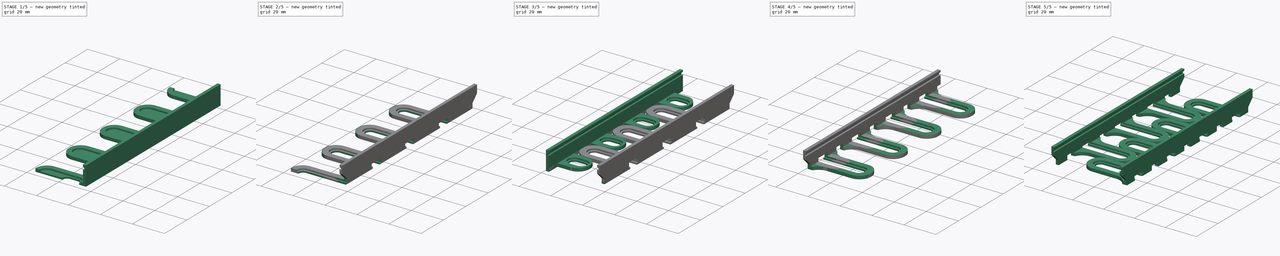
[diagram: build sequence overview — one tinted view per stage of 5, left to right]
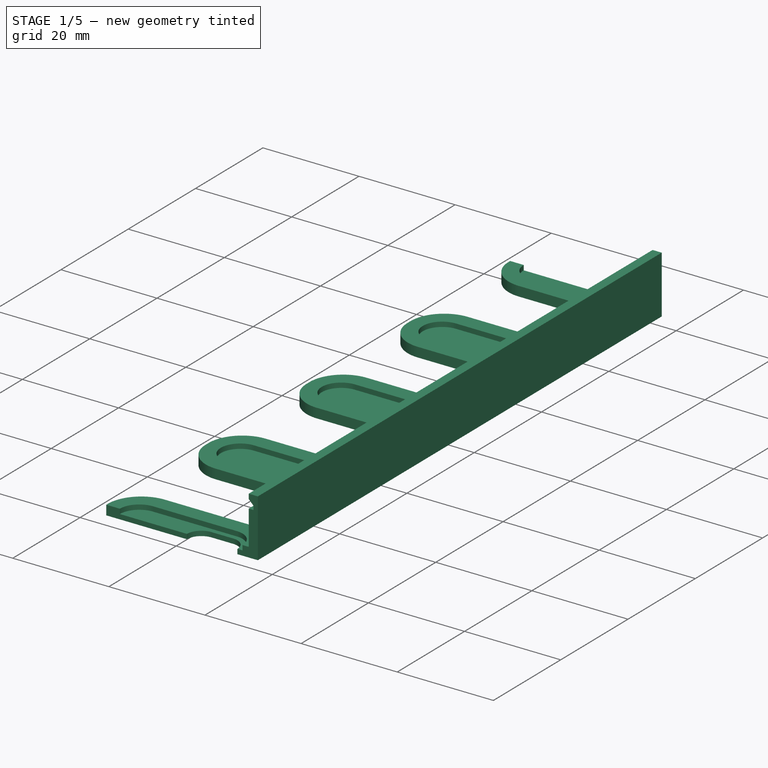
[diagram: stage 1 of 5 — iso view after this stage's code; geometry added in this stage tinted green]
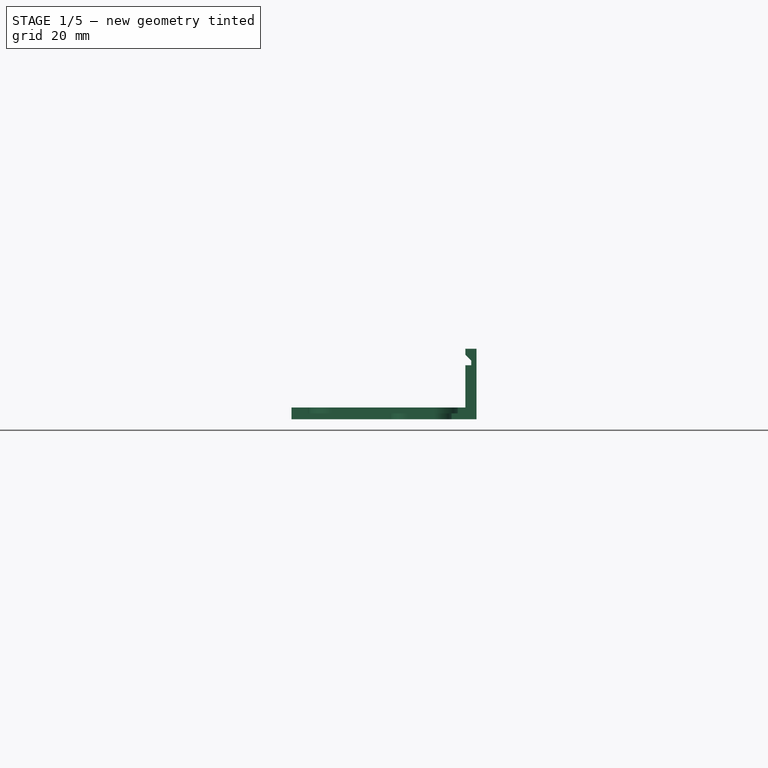
[diagram: stage 1 of 5 — front view after this stage's code; geometry added in this stage tinted green]
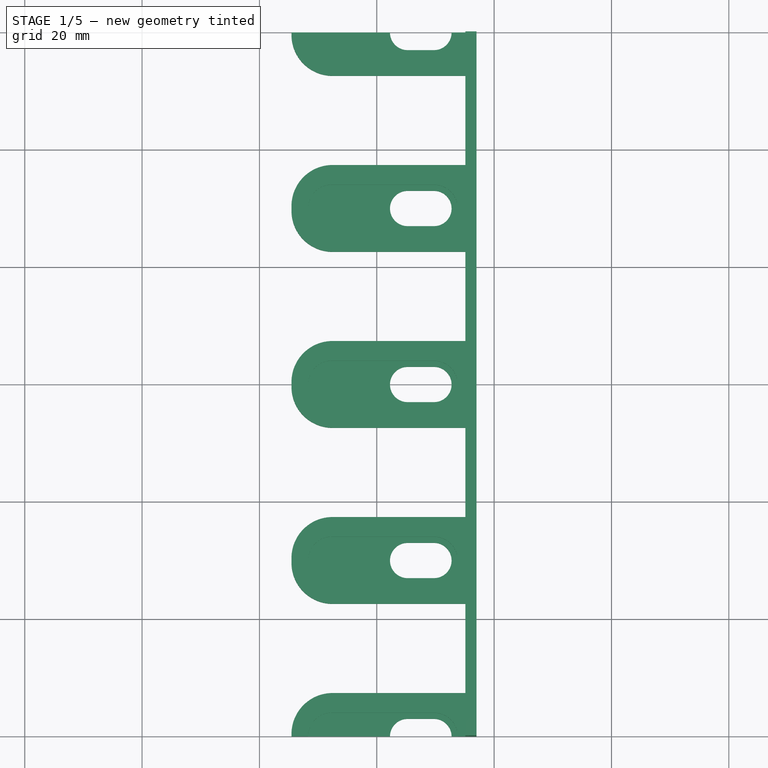
[diagram: stage 1 of 5 — top view after this stage's code; geometry added in this stage tinted green]
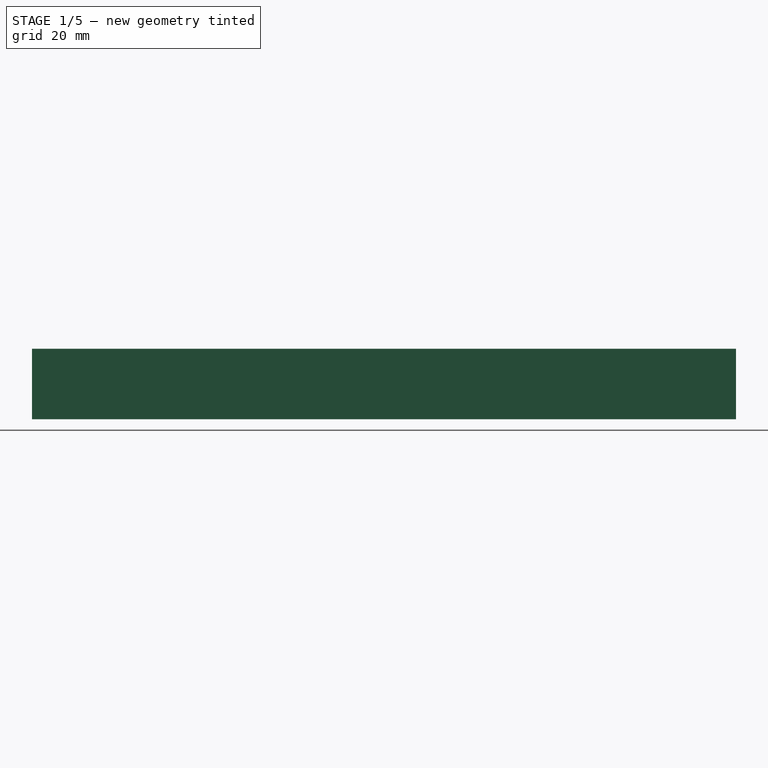
[diagram: stage 1 of 5 — right view after this stage's code; geometry added in this stage tinted green]
FCSTD DOCUMENT  (FreeCAD 0.20R29603 (Git))
Label: adj-strip-feeder
License: Other
objects: PartDesign::Pocket×30, Sketcher::SketchObject×15, PartDesign::Pad×13, PartDesign::Fillet×5, PartDesign::LinearPattern×4, PartDesign::Plane×3, PartDesign::Body×2, PartDesign::Chamfer×1, PartDesign::Mirrored×1, Image::ImagePlane×1, Part::Compound×1
note: 124 computed .brp shape members not serialized (recipe doc carries the construction recipe); baked Part::Feature solids carry a one-line shape summary decoded from their .brp

FEATURE [PartDesign::Plane] DatumPlane005
  AttachmentOffset = pos=(0,0,-6) rot=(0,0,1;0rad)
  Length = 67.0294
  MapMode = 5
  Placement = pos=(0,0,-6) rot=(0,0,1;0rad)
  ResizeMode = 0
  Support = -> [XY_Plane007]
  Width = 162.029
FEATURE [Sketcher::SketchObject] Sketch027  label="CounterBoreHoles006"
  AttachmentOffset = pos=(-22.5,-200.5,-4) rot=(0,0,1;0rad)
  FullyConstrained = true
  MapMode = 5
  Placement = pos=(-22.5,-200.5,-4) rot=(0,0,1;0rad)
  Support = -> [XY_Plane007]
  sketch-geometry (238):
    g0: Circle CenterX=15 CenterY=35.5 CenterZ=0 NormalX=0 NormalY=0 NormalZ=1 AngleXU=0 Radius=3
    g1: Circle CenterX=45 CenterY=35.5 CenterZ=0 NormalX=0 NormalY=0 NormalZ=1 AngleXU=0 Radius=3
    g2: Circle CenterX=75 CenterY=35.5 CenterZ=0 NormalX=0 NormalY=0 NormalZ=1 AngleXU=0 Radius=3
    g3: Circle CenterX=15 CenterY=65.5 CenterZ=0 NormalX=0 NormalY=0 NormalZ=1 AngleXU=0 Radius=3
    g4: Circle CenterX=45 CenterY=65.5 CenterZ=0 NormalX=0 NormalY=0 NormalZ=1 AngleXU=0 Radius=3
    g5: Circle CenterX=75 CenterY=65.5 CenterZ=0 NormalX=0 NormalY=0 NormalZ=1 AngleXU=0 Radius=3
    g6: LineSegment StartX=15 StartY=35.5 StartZ=0 EndX=15 EndY=65.5 EndZ=0
    g7: Circle CenterX=30 CenterY=20.5 CenterZ=0 NormalX=0 NormalY=0 NormalZ=1 AngleXU=0 Radius=3
    g8: Circle CenterX=60 CenterY=20.5 CenterZ=0 NormalX=0 NormalY=0 NormalZ=1 AngleXU=0 Radius=3
    g9: Circle CenterX=60 CenterY=50.5 CenterZ=0 NormalX=0 NormalY=0 NormalZ=1 AngleXU=0 Radius=3
    g10: Circle CenterX=30 CenterY=50.5 CenterZ=0 NormalX=0 NormalY=0 NormalZ=1 AngleXU=0 Radius=3
    g11: LineSegment StartX=30 StartY=20.5 StartZ=0 EndX=30 EndY=50.5 EndZ=0
    g12: Circle CenterX=90 CenterY=50.5 CenterZ=0 NormalX=0 NormalY=0 NormalZ=1 AngleXU=0 Radius=3
    g13: Circle CenterX=105 CenterY=65.5 CenterZ=0 NormalX=0 NormalY=0 NormalZ=1 AngleXU=0 Radius=3
    g14: Circle CenterX=90 CenterY=20.5 CenterZ=0 NormalX=0 NormalY=0 NormalZ=1 AngleXU=0 Radius=3
    g15: Circle CenterX=105 CenterY=35.5 CenterZ=0 NormalX=0 NormalY=0 NormalZ=1 AngleXU=0 Radius=3
    g16: Circle CenterX=30 CenterY=80.5 CenterZ=0 NormalX=0 NormalY=0 NormalZ=1 AngleXU=0 Radius=3
    g17: Circle CenterX=60 CenterY=80.5 CenterZ=0 NormalX=0 NormalY=0 NormalZ=1 AngleXU=0 Radius=3
    g18: Circle CenterX=90 CenterY=80.5 CenterZ=0 NormalX=0 NormalY=0 NormalZ=1 AngleXU=0 Radius=3
    g19: LineSegment StartX=30 StartY=80.5 StartZ=0 EndX=30 EndY=50.5 EndZ=0
    g20: LineSegment StartX=15 StartY=35.5 StartZ=0 EndX=45 EndY=35.5 EndZ=0
    g21: LineSegment StartX=105 StartY=35.5 StartZ=0 EndX=75 EndY=35.5 EndZ=0
    g22: LineSegment StartX=45 StartY=35.5 StartZ=0 EndX=75 EndY=35.5 EndZ=0
    g23: LineSegment StartX=30 StartY=20.5 StartZ=0 EndX=60 EndY=20.5 EndZ=0
    g24: LineSegment StartX=90 StartY=20.5 StartZ=0 EndX=60 EndY=20.5 EndZ=0
    g25: LineSegment StartX=15 StartY=0 StartZ=0 EndX=15 EndY=80.5 EndZ=0
    g26: Circle CenterX=15 CenterY=95.5 CenterZ=0 NormalX=0 NormalY=0 NormalZ=1 AngleXU=0 Radius=3
    g27: Circle CenterX=45 CenterY=95.5 CenterZ=0 NormalX=0 NormalY=0 NormalZ=1 AngleXU=0 Radius=3
    g28: Circle CenterX=75 CenterY=95.5 CenterZ=0 NormalX=0 NormalY=0 NormalZ=1 AngleXU=0 Radius=3
    g29: Circle CenterX=105 CenterY=95.5 CenterZ=0 NormalX=0 NormalY=0 NormalZ=1 AngleXU=0 Radius=3
    g30: Circle CenterX=30 CenterY=110.5 CenterZ=0 NormalX=0 NormalY=0 NormalZ=1 AngleXU=0 Radius=3
    g31: Circle CenterX=60 CenterY=110.5 CenterZ=0 NormalX=0 NormalY=0 NormalZ=1 AngleXU=0 Radius=3
    g32: Circle CenterX=90 CenterY=110.5 CenterZ=0 NormalX=0 NormalY=0 NormalZ=1 AngleXU=0 Radius=3
    g33: Circle CenterX=15 CenterY=125.5 CenterZ=0 NormalX=0 NormalY=0 NormalZ=1 AngleXU=0 Radius=3
    g34: Circle CenterX=45 CenterY=125.5 CenterZ=0 NormalX=0 NormalY=0 NormalZ=1 AngleXU=0 Radius=3
    g35: Circle CenterX=75 CenterY=125.5 CenterZ=0 NormalX=0 NormalY=0 NormalZ=1 AngleXU=0 Radius=3
    g36: Circle CenterX=105 CenterY=125.5 CenterZ=0 NormalX=0 NormalY=0 NormalZ=1 AngleXU=0 Radius=3
    g37: LineSegment StartX=15 StartY=65.5 StartZ=0 EndX=15 EndY=95.5 EndZ=0
    g38: LineSegment StartX=15 StartY=95.5 StartZ=0 EndX=15 EndY=125.5 EndZ=0
    g39: LineSegment StartX=30 StartY=80.5 StartZ=0 EndX=30 EndY=110.5 EndZ=0
    g40: Circle CenterX=15 CenterY=155.5 CenterZ=0 NormalX=0 NormalY=0 NormalZ=1 AngleXU=0 Radius=3
    g41: Circle CenterX=45 CenterY=155.5 CenterZ=0 NormalX=0 NormalY=0 NormalZ=1 AngleXU=0 Radius=3
    g42: Circle CenterX=75 CenterY=155.5 CenterZ=0 NormalX=0 NormalY=0 NormalZ=1 AngleXU=0 Radius=3
    g43: LineSegment StartX=15 StartY=125.5 StartZ=0 EndX=15 EndY=155.5 EndZ=0
    g44: Circle CenterX=60 CenterY=140.5 CenterZ=0 NormalX=0 NormalY=0 NormalZ=1 AngleXU=0 Radius=3
    g45: Circle CenterX=30 CenterY=140.5 CenterZ=0 NormalX=0 NormalY=0 NormalZ=1 AngleXU=0 Radius=3
    g46: LineSegment StartX=30 StartY=110.5 StartZ=0 EndX=30 EndY=140.5 EndZ=0
    g47: Circle CenterX=90 CenterY=140.5 CenterZ=0 NormalX=0 NormalY=0 NormalZ=1 AngleXU=0 Radius=3
    g48: Circle CenterX=105 CenterY=155.5 CenterZ=0 NormalX=0 NormalY=0 NormalZ=1 AngleXU=0 Radius=3
    g49: Circle CenterX=30 CenterY=170.5 CenterZ=0 NormalX=0 NormalY=0 NormalZ=1 AngleXU=0 Radius=3
    g50: Circle CenterX=60 CenterY=170.5 CenterZ=0 NormalX=0 NormalY=0 NormalZ=1 AngleXU=0 Radius=3
    g51: Circle CenterX=90 CenterY=170.5 CenterZ=0 NormalX=0 NormalY=0 NormalZ=1 AngleXU=0 Radius=3
    g52: LineSegment StartX=30 StartY=170.5 StartZ=0 EndX=30 EndY=140.5 EndZ=0
    g53: Circle CenterX=15 CenterY=185.5 CenterZ=0 NormalX=0 NormalY=0 NormalZ=1 AngleXU=0 Radius=3
    g54: Circle CenterX=45 CenterY=185.5 CenterZ=0 NormalX=0 NormalY=0 NormalZ=1 AngleXU=0 Radius=3
    g55: Circle CenterX=75 CenterY=185.5 CenterZ=0 NormalX=0 NormalY=0 NormalZ=1 AngleXU=0 Radius=3
    g56: Circle CenterX=105 CenterY=185.5 CenterZ=0 NormalX=0 NormalY=0 NormalZ=1 AngleXU=0 Radius=3
    g57: Circle CenterX=30 CenterY=200.5 CenterZ=0 NormalX=0 NormalY=0 NormalZ=1 AngleXU=0 Radius=3
    g58: Circle CenterX=60 CenterY=200.5 CenterZ=0 NormalX=0 NormalY=0 NormalZ=1 AngleXU=0 Radius=3
    g59: Circle CenterX=90 CenterY=200.5 CenterZ=0 NormalX=0 NormalY=0 NormalZ=1 AngleXU=0 Radius=3
    g60: Circle CenterX=15 CenterY=215.5 CenterZ=0 NormalX=0 NormalY=0 NormalZ=1 AngleXU=0 Radius=3
    g61: Circle CenterX=45 CenterY=215.5 CenterZ=0 NormalX=0 NormalY=0 NormalZ=1 AngleXU=0 Radius=3
    g62: Circle CenterX=75 CenterY=215.5 CenterZ=0 NormalX=0 NormalY=0 NormalZ=1 AngleXU=0 Radius=3
    g63: Circle CenterX=105 CenterY=215.5 CenterZ=0 NormalX=0 NormalY=0 NormalZ=1 AngleXU=0 Radius=3
    g64: LineSegment StartX=15 StartY=155.5 StartZ=0 EndX=15 EndY=185.5 EndZ=0
    g65: LineSegment StartX=15 StartY=185.5 StartZ=0 EndX=15 EndY=215.5 EndZ=0
    g66: LineSegment StartX=30 StartY=170.5 StartZ=0 EndX=30 EndY=200.5 EndZ=0
    g67: Circle CenterX=120 CenterY=50.5 CenterZ=0 NormalX=0 NormalY=0 NormalZ=1 AngleXU=0 Radius=3
    g68: Circle CenterX=120 CenterY=20.5 CenterZ=0 NormalX=0 NormalY=0 NormalZ=1 AngleXU=0 Radius=3
    g69: Circle CenterX=120 CenterY=80.5 CenterZ=0 NormalX=0 NormalY=0 NormalZ=1 AngleXU=0 Radius=3
    g70: LineSegment StartX=120 StartY=20.5 StartZ=0 EndX=90 EndY=20.5 EndZ=0
    g71: Circle CenterX=120 CenterY=110.5 CenterZ=0 NormalX=0 NormalY=0 NormalZ=1 AngleXU=0 Radius=3
    g72: Circle CenterX=120 CenterY=140.5 CenterZ=0 NormalX=0 NormalY=0 NormalZ=1 AngleXU=0 Radius=3
    g73: Circle CenterX=120 CenterY=170.5 CenterZ=0 NormalX=0 NormalY=0 NormalZ=1 AngleXU=0 Radius=3
    g74: Circle CenterX=120 CenterY=200.5 CenterZ=0 NormalX=0 NormalY=0 NormalZ=1 AngleXU=0 Radius=3
    g75: Circle CenterX=0 CenterY=50.5 CenterZ=0 NormalX=0 NormalY=0 NormalZ=1 AngleXU=0 Radius=3
    g76: Circle CenterX=0 CenterY=20.5 CenterZ=0 NormalX=0 NormalY=0 NormalZ=1 AngleXU=0 Radius=3
    g77: Circle CenterX=0 CenterY=80.5 CenterZ=0 NormalX=0 NormalY=0 NormalZ=1 AngleXU=0 Radius=3
    g78: Circle CenterX=0 CenterY=110.5 CenterZ=0 NormalX=0 NormalY=0 NormalZ=1 AngleXU=0 Radius=3
    g79: Circle CenterX=0 CenterY=140.5 CenterZ=0 NormalX=0 NormalY=0 NormalZ=1 AngleXU=0 Radius=3
    g80: Circle CenterX=0 CenterY=170.5 CenterZ=0 NormalX=0 NormalY=0 NormalZ=1 AngleXU=0 Radius=3
    g81: Circle CenterX=0 CenterY=200.5 CenterZ=0 NormalX=0 NormalY=0 NormalZ=1 AngleXU=0 Radius=3
    g82: GeomPoint X=15 Y=5.5 Z=0
    g83: Circle CenterX=15 CenterY=20.5 CenterZ=0 NormalX=0 NormalY=0 NormalZ=1 AngleXU=0 Radius=3
    g84: Circle CenterX=45 CenterY=20.5 CenterZ=0 NormalX=0 NormalY=0 NormalZ=1 AngleXU=0 Radius=3
    g85: Circle CenterX=75 CenterY=20.5 CenterZ=0 NormalX=0 NormalY=0 NormalZ=1 AngleXU=0 Radius=3
    g86: Circle CenterX=15 CenterY=50.5 CenterZ=0 NormalX=0 NormalY=0 NormalZ=1 AngleXU=0 Radius=3
    g87: Circle CenterX=45 CenterY=50.5 CenterZ=0 NormalX=0 NormalY=0 NormalZ=1 AngleXU=0 Radius=3
    g88: Circle CenterX=75 CenterY=50.5 CenterZ=0 NormalX=0 NormalY=0 NormalZ=1 AngleXU=0 Radius=3
    g89: LineSegment StartX=15 StartY=20.5 StartZ=0 EndX=15 EndY=50.5 EndZ=0
    g90: Circle CenterX=30 CenterY=5.5 CenterZ=0 NormalX=0 NormalY=0 NormalZ=1 AngleXU=0 Radius=3
    g91: Circle CenterX=60 CenterY=5.5 CenterZ=0 NormalX=0 NormalY=0 NormalZ=1 AngleXU=0 Radius=3
    g92: Circle CenterX=60 CenterY=35.5 CenterZ=0 NormalX=0 NormalY=0 NormalZ=1 AngleXU=0 Radius=3
    g93: Circle CenterX=30 CenterY=35.5 CenterZ=0 NormalX=0 NormalY=0 NormalZ=1 AngleXU=0 Radius=3
    g94: LineSegment StartX=30 StartY=5.5 StartZ=0 EndX=30 EndY=35.5 EndZ=0
    g95: Circle CenterX=90 CenterY=35.5 CenterZ=0 NormalX=0 NormalY=0 NormalZ=1 AngleXU=0 Radius=3
    g96: Circle CenterX=105 CenterY=50.5 CenterZ=0 NormalX=0 NormalY=0 NormalZ=1 AngleXU=0 Radius=3
    g97: Circle CenterX=90 CenterY=5.5 CenterZ=0 NormalX=0 NormalY=0 NormalZ=1 AngleXU=0 Radius=3
    g98: Circle CenterX=105 CenterY=20.5 CenterZ=0 NormalX=0 NormalY=0 NormalZ=1 AngleXU=0 Radius=3
    g99: Circle CenterX=30 CenterY=65.5 CenterZ=0 NormalX=0 NormalY=0 NormalZ=1 AngleXU=0 Radius=3
    g100: Circle CenterX=60 CenterY=65.5 CenterZ=0 NormalX=0 NormalY=0 NormalZ=1 AngleXU=0 Radius=3
    g101: Circle CenterX=90 CenterY=65.5 CenterZ=0 NormalX=0 NormalY=0 NormalZ=1 AngleXU=0 Radius=3
    g102: LineSegment StartX=30 StartY=65.5 StartZ=0 EndX=30 EndY=35.5 EndZ=0
    g103: LineSegment StartX=15 StartY=20.5 StartZ=0 EndX=45 EndY=20.5 EndZ=0
    g104: LineSegment StartX=105 StartY=20.5 StartZ=0 EndX=75 EndY=20.5 EndZ=0
    g105: LineSegment StartX=45 StartY=20.5 StartZ=0 EndX=75 EndY=20.5 EndZ=0
    g106: LineSegment StartX=30 StartY=5.5 StartZ=0 EndX=60 EndY=5.5 EndZ=0
    g107: LineSegment StartX=90 StartY=5.5 StartZ=0 EndX=60 EndY=5.5 EndZ=0
    g108: LineSegment StartX=15 StartY=-9.5 StartZ=0 EndX=15 EndY=65.5 EndZ=0
    g109: Circle CenterX=15 CenterY=80.5 CenterZ=0 NormalX=0 NormalY=0 NormalZ=1 AngleXU=0 Radius=3
    g110: Circle CenterX=45 CenterY=80.5 CenterZ=0 NormalX=0 NormalY=0 NormalZ=1 AngleXU=0 Radius=3
    g111: Circle CenterX=75 CenterY=80.5 CenterZ=0 NormalX=0 NormalY=0 NormalZ=1 AngleXU=0 Radius=3
    g112: Circle CenterX=105 CenterY=80.5 CenterZ=0 NormalX=0 NormalY=0 NormalZ=1 AngleXU=0 Radius=3
    g113: Circle CenterX=30 CenterY=95.5 CenterZ=0 NormalX=0 NormalY=0 NormalZ=1 AngleXU=0 Radius=3
    g114: Circle CenterX=60 CenterY=95.5 CenterZ=0 NormalX=0 NormalY=0 NormalZ=1 AngleXU=0 Radius=3
    g115: Circle CenterX=90 CenterY=95.5 CenterZ=0 NormalX=0 NormalY=0 NormalZ=1 AngleXU=0 Radius=3
    g116: Circle CenterX=15 CenterY=110.5 CenterZ=0 NormalX=0 NormalY=0 NormalZ=1 AngleXU=0 Radius=3
    g117: Circle CenterX=45 CenterY=110.5 CenterZ=0 NormalX=0 NormalY=0 NormalZ=1 AngleXU=0 Radius=3
    g118: Circle CenterX=75 CenterY=110.5 CenterZ=0 NormalX=0 NormalY=0 NormalZ=1 AngleXU=0 Radius=3
    g119: Circle CenterX=105 CenterY=110.5 CenterZ=0 NormalX=0 NormalY=0 NormalZ=1 AngleXU=0 Radius=3
    g120: LineSegment StartX=15 StartY=50.5 StartZ=0 EndX=15 EndY=80.5 EndZ=0
    g121: LineSegment StartX=15 StartY=80.5 StartZ=0 EndX=15 EndY=110.5 EndZ=0
    g122: LineSegment StartX=30 StartY=65.5 StartZ=0 EndX=30 EndY=95.5 EndZ=0
    g123: Circle CenterX=15 CenterY=140.5 CenterZ=0 NormalX=0 NormalY=0 NormalZ=1 AngleXU=0 Radius=3
    g124: Circle CenterX=45 CenterY=140.5 CenterZ=0 NormalX=0 NormalY=0 NormalZ=1 AngleXU=0 Radius=3
    g125: Circle CenterX=75 CenterY=140.5 CenterZ=0 NormalX=0 NormalY=0 NormalZ=1 AngleXU=0 Radius=3
    g126: LineSegment StartX=15 StartY=110.5 StartZ=0 EndX=15 EndY=140.5 EndZ=0
    g127: Circle CenterX=60 CenterY=125.5 CenterZ=0 NormalX=0 NormalY=0 NormalZ=1 AngleXU=0 Radius=3
    g128: Circle CenterX=30 CenterY=125.5 CenterZ=0 NormalX=0 NormalY=0 NormalZ=1 AngleXU=0 Radius=3
    g129: LineSegment StartX=30 StartY=95.5 StartZ=0 EndX=30 EndY=125.5 EndZ=0
    g130: Circle CenterX=90 CenterY=125.5 CenterZ=0 NormalX=0 NormalY=0 NormalZ=1 AngleXU=0 Radius=3
    g131: Circle CenterX=105 CenterY=140.5 CenterZ=0 NormalX=0 NormalY=0 NormalZ=1 AngleXU=0 Radius=3
    g132: Circle CenterX=30 CenterY=155.5 CenterZ=0 NormalX=0 NormalY=0 NormalZ=1 AngleXU=0 Radius=3
    g133: Circle CenterX=60 CenterY=155.5 CenterZ=0 NormalX=0 NormalY=0 NormalZ=1 AngleXU=0 Radius=3
    g134: Circle CenterX=90 CenterY=155.5 CenterZ=0 NormalX=0 NormalY=0 NormalZ=1 AngleXU=0 Radius=3
    g135: LineSegment StartX=30 StartY=155.5 StartZ=0 EndX=30 EndY=125.5 EndZ=0
    g136: Circle CenterX=15 CenterY=170.5 CenterZ=0 NormalX=0 NormalY=0 NormalZ=1 AngleXU=0 Radius=3
    g137: Circle CenterX=45 CenterY=170.5 CenterZ=0 NormalX=0 NormalY=0 NormalZ=1 AngleXU=0 Radius=3
    g138: Circle CenterX=75 CenterY=170.5 CenterZ=0 NormalX=0 NormalY=0 NormalZ=1 AngleXU=0 Radius=3
    g139: Circle CenterX=105 CenterY=170.5 CenterZ=0 NormalX=0 NormalY=0 NormalZ=1 AngleXU=0 Radius=3
    g140: Circle CenterX=30 CenterY=185.5 CenterZ=0 NormalX=0 NormalY=0 NormalZ=1 AngleXU=0 Radius=3
    g141: Circle CenterX=60 CenterY=185.5 CenterZ=0 NormalX=0 NormalY=0 NormalZ=1 AngleXU=0 Radius=3
    g142: Circle CenterX=90 CenterY=185.5 CenterZ=0 NormalX=0 NormalY=0 NormalZ=1 AngleXU=0 Radius=3
    g143: Circle CenterX=15 CenterY=200.5 CenterZ=0 NormalX=0 NormalY=0 NormalZ=1 AngleXU=0 Radius=3
    g144: Circle CenterX=45 CenterY=200.5 CenterZ=0 NormalX=0 NormalY=0 NormalZ=1 AngleXU=0 Radius=3
    g145: Circle CenterX=75 CenterY=200.5 CenterZ=0 NormalX=0 NormalY=0 NormalZ=1 AngleXU=0 Radius=3
    g146: Circle CenterX=105 CenterY=200.5 CenterZ=0 NormalX=0 NormalY=0 NormalZ=1 AngleXU=0 Radius=3
    g147: LineSegment StartX=15 StartY=140.5 StartZ=0 EndX=15 EndY=170.5 EndZ=0
    g148: LineSegment StartX=15 StartY=170.5 StartZ=0 EndX=15 EndY=200.5 EndZ=0
    g149: LineSegment StartX=30 StartY=155.5 StartZ=0 EndX=30 EndY=185.5 EndZ=0
    g150: Circle CenterX=120 CenterY=35.5 CenterZ=0 NormalX=0 NormalY=0 NormalZ=1 AngleXU=0 Radius=3
    g151: Circle CenterX=120 CenterY=5.5 CenterZ=0 NormalX=0 NormalY=0 NormalZ=1 AngleXU=0 Radius=3
    g152: Circle CenterX=120 CenterY=65.5 CenterZ=0 NormalX=0 NormalY=0 NormalZ=1 AngleXU=0 Radius=3
    g153: LineSegment StartX=120 StartY=5.5 StartZ=0 EndX=90 EndY=5.5 EndZ=0
    g154: Circle CenterX=120 CenterY=95.5 CenterZ=0 NormalX=0 NormalY=0 NormalZ=1 AngleXU=0 Radius=3
    g155: Circle CenterX=120 CenterY=125.5 CenterZ=0 NormalX=0 NormalY=0 NormalZ=1 AngleXU=0 Radius=3
    g156: Circle CenterX=120 CenterY=155.5 CenterZ=0 NormalX=0 NormalY=0 NormalZ=1 AngleXU=0 Radius=3
    g157: Circle CenterX=120 CenterY=185.5 CenterZ=0 NormalX=0 NormalY=0 NormalZ=1 AngleXU=0 Radius=3
    g158: Circle CenterX=0 CenterY=35.5 CenterZ=0 NormalX=0 NormalY=0 NormalZ=1 AngleXU=0 Radius=3
    g159: Circle CenterX=0 CenterY=5.5 CenterZ=0 NormalX=0 NormalY=0 NormalZ=1 AngleXU=0 Radius=3
    g160: Circle CenterX=0 CenterY=65.5 CenterZ=0 NormalX=0 NormalY=0 NormalZ=1 AngleXU=0 Radius=3
    g161: Circle CenterX=0 CenterY=95.5 CenterZ=0 NormalX=0 NormalY=0 NormalZ=1 AngleXU=0 Radius=3
    g162: Circle CenterX=0 CenterY=125.5 CenterZ=0 NormalX=0 NormalY=0 NormalZ=1 AngleXU=0 Radius=3
    g163: Circle CenterX=0 CenterY=155.5 CenterZ=0 NormalX=0 NormalY=0 NormalZ=1 AngleXU=0 Radius=3
    g164: Circle CenterX=0 CenterY=185.5 CenterZ=0 NormalX=0 NormalY=0 NormalZ=1 AngleXU=0 Radius=3
    g165: GeomPoint X=15 Y=-9.5 Z=0
    g166: ArcOfCircle CenterX=12.75 CenterY=185.5 CenterZ=0 NormalX=0 NormalY=0 NormalZ=1 AngleXU=0 Radius=3 StartAngle=1.5708 EndAngle=4.71239
    g167: ArcOfCircle CenterX=17.25 CenterY=185.5 CenterZ=0 NormalX=0 NormalY=0 NormalZ=1 AngleXU=0 Radius=3 StartAngle=4.71239 EndAngle=7.85398
    g168: LineSegment StartX=12.75 StartY=182.5 StartZ=0 EndX=17.25 EndY=182.5 EndZ=0
    g169: LineSegment StartX=17.25 StartY=188.5 StartZ=0 EndX=12.75 EndY=188.5 EndZ=0
    g170: ArcOfCircle CenterX=27.75 CenterY=185.5 CenterZ=0 NormalX=0 NormalY=0 NormalZ=1 AngleXU=0 Radius=3 StartAngle=1.5708 EndAngle=4.71239
    g171: ArcOfCircle CenterX=32.25 CenterY=185.5 CenterZ=0 NormalX=0 NormalY=0 NormalZ=1 AngleXU=0 Radius=3 StartAngle=4.71239 EndAngle=7.85398
    g172: LineSegment StartX=27.75 StartY=182.5 StartZ=0 EndX=32.25 EndY=182.5 EndZ=0
    g173: LineSegment StartX=32.25 StartY=188.5 StartZ=0 EndX=27.75 EndY=188.5 EndZ=0
    g174: ArcOfCircle CenterX=12.75 CenterY=170.5 CenterZ=0 NormalX=0 NormalY=0 NormalZ=1 AngleXU=0 Radius=3 StartAngle=1.5708 EndAngle=4.71239
    g175: ArcOfCircle CenterX=17.25 CenterY=170.5 CenterZ=0 NormalX=0 NormalY=0 NormalZ=1 AngleXU=0 Radius=3 StartAngle=4.71239 EndAngle=7.85398
    g176: LineSegment StartX=12.75 StartY=167.5 StartZ=0 EndX=17.25 EndY=167.5 EndZ=0
    g177: LineSegment StartX=17.25 StartY=173.5 StartZ=0 EndX=12.75 EndY=173.5 EndZ=0
    g178: ArcOfCircle CenterX=27.75 CenterY=170.5 CenterZ=0 NormalX=0 NormalY=0 NormalZ=1 AngleXU=0 Radius=3 StartAngle=1.5708 EndAngle=4.71239
    g179: ArcOfCircle CenterX=32.25 CenterY=170.5 CenterZ=0 NormalX=0 NormalY=0 NormalZ=1 AngleXU=0 Radius=3 StartAngle=4.71239 EndAngle=7.85398
    g180: LineSegment StartX=27.75 StartY=167.5 StartZ=0 EndX=32.25 EndY=167.5 EndZ=0
    g181: LineSegment StartX=32.25 StartY=173.5 StartZ=0 EndX=27.75 EndY=173.5 EndZ=0
    g182: ArcOfCircle CenterX=12.75 CenterY=155.5 CenterZ=0 NormalX=0 NormalY=0 NormalZ=1 AngleXU=0 Radius=3 StartAngle=1.5708 EndAngle=4.71239
    g183: ArcOfCircle CenterX=17.25 CenterY=155.5 CenterZ=0 NormalX=0 NormalY=0 NormalZ=1 AngleXU=0 Radius=3 StartAngle=4.71239 EndAngle=7.85398
    g184: LineSegment StartX=12.75 StartY=152.5 StartZ=0 EndX=17.25 EndY=152.5 EndZ=0
    g185: LineSegment StartX=17.25 StartY=158.5 StartZ=0 EndX=12.75 EndY=158.5 EndZ=0
    g186: ArcOfCircle CenterX=27.75 CenterY=155.5 CenterZ=0 NormalX=0 NormalY=0 NormalZ=1 AngleXU=0 Radius=3 StartAngle=1.5708 EndAngle=4.71239
    g187: ArcOfCircle CenterX=32.25 CenterY=155.5 CenterZ=0 NormalX=0 NormalY=0 NormalZ=1 AngleXU=0 Radius=3 StartAngle=4.71239 EndAngle=7.85398
    g188: LineSegment StartX=27.75 StartY=152.5 StartZ=0 EndX=32.25 EndY=152.5 EndZ=0
    g189: LineSegment StartX=32.25 StartY=158.5 StartZ=0 EndX=27.75 EndY=158.5 EndZ=0
    g190: ArcOfCircle CenterX=12.75 CenterY=140.5 CenterZ=0 NormalX=0 NormalY=0 NormalZ=1 AngleXU=0 Radius=3 StartAngle=1.5708 EndAngle=4.71239
    g191: ArcOfCircle CenterX=17.25 CenterY=140.5 CenterZ=0 NormalX=0 NormalY=0 NormalZ=1 AngleXU=0 Radius=3 StartAngle=4.71239 EndAngle=7.85398
    g192: LineSegment StartX=12.75 StartY=137.5 StartZ=0 EndX=17.25 EndY=137.5 EndZ=0
    g193: LineSegment StartX=17.25 StartY=143.5 StartZ=0 EndX=12.75 EndY=143.5 EndZ=0
    g194: ArcOfCircle CenterX=27.75 CenterY=140.5 CenterZ=0 NormalX=0 NormalY=0 NormalZ=1 AngleXU=0 Radius=3 StartAngle=1.5708 EndAngle=4.71239
    g195: ArcOfCircle CenterX=32.25 CenterY=140.5 CenterZ=0 NormalX=0 NormalY=0 NormalZ=1 AngleXU=0 Radius=3 StartAngle=4.71239 EndAngle=7.85398
    g196: LineSegment StartX=27.75 StartY=137.5 StartZ=0 EndX=32.25 EndY=137.5 EndZ=0
    g197: LineSegment StartX=32.25 StartY=143.5 StartZ=0 EndX=27.75 EndY=143.5 EndZ=0
    g198: ArcOfCircle CenterX=12.75 CenterY=125.5 CenterZ=0 NormalX=0 NormalY=0 NormalZ=1 AngleXU=0 Radius=3 StartAngle=1.5708 EndAngle=4.71239
    g199: ArcOfCircle CenterX=17.25 CenterY=125.5 CenterZ=0 NormalX=0 NormalY=0 NormalZ=1 AngleXU=0 Radius=3 StartAngle=4.71239 EndAngle=7.85398
    g200: LineSegment StartX=12.75 StartY=122.5 StartZ=0 EndX=17.25 EndY=122.5 EndZ=0
    g201: LineSegment StartX=17.25 StartY=128.5 StartZ=0 EndX=12.75 EndY=128.5 EndZ=0
    g202: ArcOfCircle CenterX=27.75 CenterY=125.5 CenterZ=0 NormalX=0 NormalY=0 NormalZ=1 AngleXU=0 Radius=3 StartAngle=1.5708 EndAngle=4.71239
    g203: ArcOfCircle CenterX=32.25 CenterY=125.5 CenterZ=0 NormalX=0 NormalY=0 NormalZ=1 AngleXU=0 Radius=3 StartAngle=4.71239 EndAngle=7.85398
    g204: LineSegment StartX=27.75 StartY=122.5 StartZ=0 EndX=32.25 EndY=122.5 EndZ=0
    g205: LineSegment StartX=32.25 StartY=128.5 StartZ=0 EndX=27.75 EndY=128.5 EndZ=0
    g206: ArcOfCircle CenterX=12.75 CenterY=110.5 CenterZ=0 NormalX=0 NormalY=0 NormalZ=1 AngleXU=0 Radius=3 StartAngle=1.5708 EndAngle=4.71239
    g207: ArcOfCircle CenterX=17.25 CenterY=110.5 CenterZ=0 NormalX=0 NormalY=0 NormalZ=1 AngleXU=0 Radius=3 StartAngle=4.71239 EndAngle=7.85398
    g208: LineSegment StartX=12.75 StartY=107.5 StartZ=0 EndX=17.25 EndY=107.5 EndZ=0
    g209: LineSegment StartX=17.25 StartY=113.5 StartZ=0 EndX=12.75 EndY=113.5 EndZ=0
    g210: ArcOfCircle CenterX=27.75 CenterY=110.5 CenterZ=0 NormalX=0 NormalY=0 NormalZ=1 AngleXU=0 Radius=3 StartAngle=1.5708 EndAngle=4.71239
    g211: ArcOfCircle CenterX=32.25 CenterY=110.5 CenterZ=0 NormalX=0 NormalY=0 NormalZ=1 AngleXU=0 Radius=3 StartAngle=4.71239 EndAngle=7.85398
    g212: LineSegment StartX=27.75 StartY=107.5 StartZ=0 EndX=32.25 EndY=107.5 EndZ=0
    g213: LineSegment StartX=32.25 StartY=113.5 StartZ=0 EndX=27.75 EndY=113.5 EndZ=0
    g214: ArcOfCircle CenterX=12.75 CenterY=95.5 CenterZ=0 NormalX=0 NormalY=0 NormalZ=1 AngleXU=0 Radius=3 StartAngle=1.5708 EndAngle=4.71239
    g215: ArcOfCircle CenterX=17.25 CenterY=95.5 CenterZ=0 NormalX=0 NormalY=0 NormalZ=1 AngleXU=0 Radius=3 StartAngle=4.71239 EndAngle=7.85398
    g216: LineSegment StartX=12.75 StartY=92.5 StartZ=0 EndX=17.25 EndY=92.5 EndZ=0
    g217: LineSegment StartX=17.25 StartY=98.5 StartZ=0 EndX=12.75 EndY=98.5 EndZ=0
    g218: ArcOfCircle CenterX=27.75 CenterY=95.5 CenterZ=0 NormalX=0 NormalY=0 NormalZ=1 AngleXU=0 Radius=3 StartAngle=1.5708 EndAngle=4.71239
    g219: ArcOfCircle CenterX=32.25 CenterY=95.5 CenterZ=0 NormalX=0 NormalY=0 NormalZ=1 AngleXU=0 Radius=3 StartAngle=4.71239 EndAngle=7.85398
    g220: LineSegment StartX=27.75 StartY=92.5 StartZ=0 EndX=32.25 EndY=92.5 EndZ=0
    g221: LineSegment StartX=32.25 StartY=98.5 StartZ=0 EndX=27.75 EndY=98.5 EndZ=0
    g222: ArcOfCircle CenterX=12.75 CenterY=80.5 CenterZ=0 NormalX=0 NormalY=0 NormalZ=1 AngleXU=0 Radius=3 StartAngle=1.5708 EndAngle=4.71239
    g223: ArcOfCircle CenterX=17.25 CenterY=80.5 CenterZ=0 NormalX=0 NormalY=0 NormalZ=1 AngleXU=0 Radius=3 StartAngle=4.71239 EndAngle=7.85398
    g224: LineSegment StartX=12.75 StartY=77.5 StartZ=0 EndX=17.25 EndY=77.5 EndZ=0
    g225: LineSegment StartX=17.25 StartY=83.5 StartZ=0 EndX=12.75 EndY=83.5 EndZ=0
    g226: ArcOfCircle CenterX=27.75 CenterY=80.5 CenterZ=0 NormalX=0 NormalY=0 NormalZ=1 AngleXU=0 Radius=3 StartAngle=1.5708 EndAngle=4.71239
    g227: ArcOfCircle CenterX=32.25 CenterY=80.5 CenterZ=0 NormalX=0 NormalY=0 NormalZ=1 AngleXU=0 Radius=3 StartAngle=4.71239 EndAngle=7.85398
    g228: LineSegment StartX=27.75 StartY=77.5 StartZ=0 EndX=32.25 EndY=77.5 EndZ=0
    g229: LineSegment StartX=32.25 StartY=83.5 StartZ=0 EndX=27.75 EndY=83.5 EndZ=0
    g230: ArcOfCircle CenterX=12.75 CenterY=200.5 CenterZ=0 NormalX=0 NormalY=0 NormalZ=1 AngleXU=0 Radius=3 StartAngle=1.5708 EndAngle=4.71239
    g231: LineSegment StartX=17.25 StartY=203.5 StartZ=0 EndX=12.75 EndY=203.5 EndZ=0
    g232: ArcOfCircle CenterX=17.25 CenterY=200.5 CenterZ=0 NormalX=0 NormalY=0 NormalZ=1 AngleXU=0 Radius=3 StartAngle=4.71239 EndAngle=7.85398
    g233: LineSegment StartX=12.75 StartY=197.5 StartZ=0 EndX=17.25 EndY=197.5 EndZ=0
    g234: ArcOfCircle CenterX=27.75 CenterY=200.5 CenterZ=0 NormalX=0 NormalY=0 NormalZ=1 AngleXU=0 Radius=3 StartAngle=1.5708 EndAngle=4.71239
    g235: LineSegment StartX=32.25 StartY=203.5 StartZ=0 EndX=27.75 EndY=203.5 EndZ=0
    g236: ArcOfCircle CenterX=32.25 CenterY=200.5 CenterZ=0 NormalX=0 NormalY=0 NormalZ=1 AngleXU=0 Radius=3 StartAngle=4.71239 EndAngle=7.85398
    g237: LineSegment StartX=27.75 StartY=197.5 StartZ=0 EndX=32.25 EndY=197.5 EndZ=0
  constraints (623):
    c: Equal(g0,g1)
    c: Horizontal(g0,g1)
    c: Horizontal(g1,g2)
    c: Horizontal(g3,g4)
    c: Horizontal(g4,g5)
    c: Vertical(g0,g3)
    c: Vertical(g1,g4)
    c: Vertical(g2,g5)
    c: Equal(g2,g5)
    c: Coincident(g6,g0)
    c: Coincident(g6,g3)
    c: Vertical(g7,g10)
    c: Vertical(g8,g9)
    c: Equal(g8,g9)
    c: Equal(g8,g7)
    c: Equal(g7,g10)
    c: Horizontal(g7,g8)
    c: Horizontal(g10,g9)
    c: Coincident(g11,g7)
    c: Coincident(g11,g10)
    c: Equal(g7,g1)
    c: Equal(g1,g2)
    c: Horizontal(g14,g8)
    c: Horizontal(g2,g15)
    c: Horizontal(g9,g12)
    c: Horizontal(g5,g13)
    c: Vertical(g14,g12)
    c: Vertical(g15,g13)
    c: Equal(g14,g15)
    c: Equal(g15,g12)
    c: Equal(g12,g13)
    c: Equal(g13,g5)
    c: Equal(g4,g3)
    c: Equal(g3,g5)
    c: Equal(g6,g11)
    c: Horizontal(g16,g17)
    c: Horizontal(g17,g18)
    c: Coincident(g19,g16)
    c: Coincident(g19,g10)
    c: Equal(g19,g6)
    c: Vertical(g10,g16)
    c: Equal(g16,g17)
    c: Equal(g17,g18)
    c: Equal(g18,g5)
    c: Vertical(g17,g9)
    c: Vertical(g12,g18)
    c: Coincident(g20,g0)
    c: Coincident(g20,g1)
    c: Coincident(g21,g15)
    c: Coincident(g21,g2)
    c: Coincident(g22,g1)
    c: Coincident(g22,g2)
    c: Coincident(g23,g7)
    c: Coincident(g23,g8)
    c: Coincident(g24,g14)
    c: Coincident(g24,g8)
    c: Equal(g20,g22)
    c: Equal(g22,g21)
    c: Equal(g20,g23)
    c: Equal(g23,g24)
    c: PointOnObject(g25,g-1)
    c: Vertical(g25)
    c: Horizontal(g16,g25)
    c: DistanceX(g-1,g25) = 15
    c: Horizontal(g26,g27)
    c: Horizontal(g27,g28)
    c: Horizontal(g28,g29)
    c: Horizontal(g30,g31)
    c: Horizontal(g31,g32)
    c: Horizontal(g33,g34)
    c: Horizontal(g34,g35)
    c: Horizontal(g35,g36)
    c: Coincident(g37,g3)
    c: Coincident(g37,g26)
    c: Vertical(g37)
    c: Coincident(g38,g26)
    c: Coincident(g38,g33)
    c: Coincident(g39,g16)
    c: Coincident(g39,g30)
    c: Vertical(g30,g16)
    c: Vertical(g3,g33)
    c: Vertical(g4,g27)
    c: Vertical(g27,g34)
    c: Vertical(g17,g31)
    c: Equal(g37,g38)
    c: Equal(g38,g39)
    c: Equal(g39,g19)
    c: Vertical(g5,g28)
    c: Vertical(g28,g35)
    c: Vertical(g18,g32)
    c: Vertical(g13,g29)
    c: Vertical(g29,g36)
    c: Equal(g29,g28)
    c: Equal(g28,g27)
    c: Equal(g27,g30)
    c: Equal(g30,g26)
    c: Equal(g26,g33)
    c: Equal(g33,g34)
    c: Equal(g34,g31)
    c: Equal(g31,g35)
    c: Equal(g35,g32)
    c: Horizontal(g40,g41)
    c: Horizontal(g41,g42)
    c: Coincident(g43,g40)
    c: Horizontal(g45,g44)
    c: Coincident(g46,g45)
    c: Equal(g11,g46) = 30
    c: Horizontal(g44,g47)
    c: Horizontal(g42,g48)
    c: Equal(g47,g48)
    c: Equal(g48,g42)
    c: Equal(g13,g48) = 5
    c: Equal(g41,g40)
    c: Equal(g40,g42)
    c: Equal(g43,g46)
    c: Horizontal(g49,g50)
    c: Horizontal(g50,g51)
    c: Coincident(g52,g49)
    c: Coincident(g52,g45)
    c: Equal(g52,g43)
    c: Vertical(g45,g49)
    c: Equal(g49,g50)
    c: Equal(g50,g51)
    c: Equal(g51,g42)
    c: Vertical(g50,g44)
    c: Vertical(g47,g51)
    c: Horizontal(g53,g54)
    c: Horizontal(g54,g55)
    c: Horizontal(g55,g56)
    c: Horizontal(g57,g58)
    c: Horizontal(g58,g59)
    c: Horizontal(g60,g61)
    c: Horizontal(g61,g62)
    c: Horizontal(g62,g63)
    c: Coincident(g64,g40)
    c: Coincident(g64,g53)
    c: Vertical(g64)
    c: Coincident(g65,g53)
    c: Coincident(g65,g60)
    c: Coincident(g66,g49)
    c: Coincident(g66,g57)
    c: Vertical(g57,g49)
    c: Vertical(g40,g60)
    c: Vertical(g41,g54)
    c: Vertical(g54,g61)
    c: Vertical(g50,g58)
    c: Equal(g64,g65)
    c: Equal(g65,g66)
    c: Equal(g66,g52)
    c: Vertical(g42,g55)
    c: Vertical(g55,g62)
    c: Vertical(g51,g59)
    c: Vertical(g48,g56)
    c: Vertical(g56,g63)
    c: Equal(g56,g55)
    c: Equal(g55,g54)
    c: Equal(g54,g57)
    c: Equal(g57,g53)
    c: Equal(g53,g60)
    c: Equal(g60,g61)
    c: Equal(g61,g58)
    c: Equal(g58,g62)
    c: Equal(g62,g59)
    c: Diameter(g56) = 6
    c: Diameter(g63) = 6
    c: Diameter(g50) = 6
    c: Diameter(g44) = 6
    c: Diameter(g45) = 6
    c: Diameter(g30) = 6
    c: Diameter(g36) = 6
    c: Vertical(g46)
    c: Vertical(g43)
    c: Coincident(g46,g30)
    c: Coincident(g43,g33)
    c: Vertical(g41,g34)
    c: Vertical(g44,g31)
    c: Vertical(g42,g35)
    c: Vertical(g47,g32)
    c: Vertical(g48,g36)
    c: Vertical(g68,g67)
    c: Vertical(g67,g69)
    c: Coincident(g70,g68)
    c: Vertical(g69,g71)
    c: Vertical(g72,g73)
    c: Vertical(g73,g74)
    c: Vertical(g72,g71)
    c: Horizontal(g70)
    c: Coincident(g70,g14)
    c: Horizontal(g67,g12)
    c: Horizontal(g69,g18)
    c: Horizontal(g71,g32)
    c: Horizontal(g72,g47)
    c: Horizontal(g73,g51)
    c: Horizontal(g59,g74)
    c: Equal(g74,g73)
    c: Equal(g73,g72)
    c: Equal(g72,g71)
    c: Equal(g71,g69)
    c: Equal(g69,g67)
    c: Equal(g67,g68)
    c: Equal(g68,g0)
    c: Vertical(g76,g75)
    c: Vertical(g75,g77)
    c: Vertical(g77,g78)
    c: Vertical(g79,g80)
    c: Vertical(g80,g81)
    c: Vertical(g79,g78)
    c: Equal(g81,g80)
    c: Equal(g80,g79)
    c: Equal(g79,g78)
    c: Equal(g78,g77)
    c: Equal(g77,g75)
    c: Equal(g75,g76)
    c: PointOnObject(g81,g-2)
    c: Horizontal(g76,g7)
    c: Equal(g81,g0)
    c: Horizontal(g75,g10)
    c: Horizontal(g77,g16)
    c: Horizontal(g78,g30)
    c: Horizontal(g79,g45)
    c: Horizontal(g80,g49)
    c: Horizontal(g81,g57)
    c: DistanceY(g7,g1) = 15
    c: DistanceX(g7,g1) = 15
    c: DistanceY(g-1,g76) = 20.5
    c: DistanceY(g0,g3) = 30
    c: PointOnObject(g3,g25)
    c: DistanceX(g75,g10) = 30
    c: DistanceX(g70,g70) = 30
    c: PointOnObject(g82,g25)
    c: DistanceY(g82,g0) = 30
    c: Equal(g83,g84)
    c: Horizontal(g83,g84)
    c: Horizontal(g84,g85)
    c: Horizontal(g86,g87)
    c: Horizontal(g87,g88)
    c: Vertical(g83,g86)
    c: Vertical(g84,g87)
    c: Vertical(g85,g88)
    c: Equal(g85,g88)
    c: Coincident(g89,g83)
    c: Coincident(g89,g86)
    c: Vertical(g90,g93)
    c: Vertical(g91,g92)
    c: Equal(g91,g92)
    c: Equal(g91,g90)
    c: Equal(g90,g93)
    c: Horizontal(g90,g91)
    c: Horizontal(g93,g92)
    c: Coincident(g94,g90)
    c: Coincident(g94,g93)
    c: Equal(g90,g84)
    c: Equal(g84,g85)
    c: Horizontal(g97,g91)
    c: Horizontal(g85,g98)
    c: Horizontal(g92,g95)
    c: Horizontal(g88,g96)
    c: Vertical(g97,g95)
    c: Vertical(g98,g96)
    c: Equal(g97,g98)
    c: Equal(g98,g95)
    c: Equal(g95,g96)
    c: Equal(g96,g88)
    c: Equal(g87,g86)
    c: Equal(g86,g88)
    c: Equal(g89,g94)
    c: Horizontal(g99,g100)
    c: Horizontal(g100,g101)
    c: Coincident(g102,g99)
    c: Coincident(g102,g93)
    c: Equal(g102,g89)
    c: Vertical(g93,g99)
    c: Equal(g99,g100)
    c: Equal(g100,g101)
    c: Equal(g101,g88)
    c: Vertical(g100,g92)
    c: Vertical(g95,g101)
    c: Coincident(g103,g83)
    c: Coincident(g103,g84)
    c: Coincident(g104,g98)
    c: Coincident(g104,g85)
    c: Coincident(g105,g84)
    c: Coincident(g105,g85)
    c: Coincident(g106,g90)
    c: Coincident(g106,g91)
    c: Coincident(g107,g97)
    c: Coincident(g107,g91)
    c: Equal(g103,g105)
    c: Equal(g105,g104)
    c: Equal(g103,g106)
    c: Equal(g106,g107)
    c: Vertical(g108)
    c: Horizontal(g99,g108)
    c: Horizontal(g109,g110)
    c: Horizontal(g110,g111)
    c: Horizontal(g111,g112)
    c: Horizontal(g113,g114)
    c: Horizontal(g114,g115)
    c: Horizontal(g116,g117)
    c: Horizontal(g117,g118)
    c: Horizontal(g118,g119)
    c: Coincident(g120,g86)
    c: Coincident(g120,g109)
    c: Vertical(g120)
    c: Coincident(g121,g109)
    c: Coincident(g121,g116)
    c: Coincident(g122,g99)
    c: Coincident(g122,g113)
    c: Vertical(g113,g99)
    c: Vertical(g86,g116)
    c: Vertical(g87,g110)
    c: Vertical(g110,g117)
    c: Vertical(g100,g114)
    c: Equal(g120,g121)
    c: Equal(g121,g122)
    c: Equal(g122,g102)
    c: Vertical(g88,g111)
    c: Vertical(g111,g118)
    c: Vertical(g101,g115)
    c: Vertical(g96,g112)
    c: Vertical(g112,g119)
    c: Equal(g112,g111)
    c: Equal(g111,g110)
    c: Equal(g110,g113)
    c: Equal(g113,g109)
    c: Equal(g109,g116)
    c: Equal(g116,g117)
    c: Equal(g117,g114)
    c: Equal(g114,g118)
    c: Equal(g118,g115)
    c: Horizontal(g123,g124)
    c: Horizontal(g124,g125)
    c: Coincident(g126,g123)
    c: Horizontal(g128,g127)
    c: Coincident(g129,g128)
    c: Equal(g94,g129) = 30
    c: Horizontal(g127,g130)
    c: Horizontal(g125,g131)
    c: Equal(g130,g131)
    c: Equal(g131,g125)
    c: Equal(g96,g131) = 5
    c: Equal(g124,g123)
    c: Equal(g123,g125)
    c: Equal(g126,g129)
    c: Horizontal(g132,g133)
    c: Horizontal(g133,g134)
    c: Coincident(g135,g132)
    c: Coincident(g135,g128)
    c: Equal(g135,g126)
    c: Vertical(g128,g132)
    c: Equal(g132,g133)
    c: Equal(g133,g134)
    c: Equal(g134,g125)
    c: Vertical(g133,g127)
    c: Vertical(g130,g134)
    c: Horizontal(g136,g137)
    c: Horizontal(g137,g138)
    c: Horizontal(g138,g139)
    c: Horizontal(g140,g141)
    c: Horizontal(g141,g142)
    c: Horizontal(g143,g144)
    c: Horizontal(g144,g145)
    c: Horizontal(g145,g146)
    c: Coincident(g147,g123)
    c: Coincident(g147,g136)
    c: Vertical(g147)
    c: Coincident(g148,g136)
    c: Coincident(g148,g143)
    c: Coincident(g149,g132)
    c: Coincident(g149,g140)
    c: Vertical(g140,g132)
    c: Vertical(g123,g143)
    c: Vertical(g124,g137)
    c: Vertical(g137,g144)
    c: Vertical(g133,g141)
    c: Equal(g147,g148)
    c: Equal(g148,g149)
    c: Equal(g149,g135)
    c: Vertical(g125,g138)
    c: Vertical(g138,g145)
    c: Vertical(g134,g142)
    c: Vertical(g131,g139)
    c: Vertical(g139,g146)
    c: Equal(g139,g138)
    c: Equal(g138,g137)
    c: Equal(g137,g140)
    c: Equal(g140,g136)
    c: Equal(g136,g143)
    c: Equal(g143,g144)
    c: Equal(g144,g141)
    c: Equal(g141,g145)
    c: Equal(g145,g142)
    c: Diameter(g139) = 6
    c: Diameter(g146) = 6
    c: Diameter(g133) = 6
    c: Diameter(g127) = 6
    c: Diameter(g128) = 6
    c: Diameter(g113) = 6
    c: Diameter(g119) = 6
    c: Vertical(g129)
    c: Vertical(g126)
    c: Coincident(g129,g113)
    c: Coincident(g126,g116)
    c: Vertical(g124,g117)
    c: Vertical(g127,g114)
    c: Vertical(g125,g118)
    c: Vertical(g130,g115)
    c: Vertical(g131,g119)
    c: Vertical(g151,g150)
    c: Vertical(g150,g152)
    c: Coincident(g153,g151)
    c: Vertical(g152,g154)
    c: Vertical(g155,g156)
    c: Vertical(g156,g157)
    c: Vertical(g155,g154)
    c: Horizontal(g153)
    c: Coincident(g153,g97)
    c: Horizontal(g150,g95)
    c: Horizontal(g152,g101)
    c: Horizontal(g154,g115)
    c: Horizontal(g155,g130)
    c: Horizontal(g156,g134)
    c: Horizontal(g142,g157)
    c: Equal(g157,g156)
    c: Equal(g156,g155)
    c: Equal(g155,g154)
    c: Equal(g154,g152)
    c: Equal(g152,g150)
    c: Equal(g150,g151)
    c: Equal(g151,g83)
    c: Vertical(g159,g158)
    c: Vertical(g158,g160)
    c: Vertical(g160,g161)
    c: Vertical(g162,g163)
    c: Vertical(g163,g164)
    c: Vertical(g162,g161)
    c: Equal(g164,g163)
    c: Equal(g163,g162)
    c: Equal(g162,g161)
    c: Equal(g161,g160)
    c: Equal(g160,g158)
    c: Equal(g158,g159)
    c: Horizontal(g159,g90)
    c: Equal(g164,g83)
    c: Horizontal(g158,g93)
    c: Horizontal(g160,g99)
    c: Horizontal(g161,g113)
    c: Horizontal(g162,g128)
    c: Horizontal(g163,g132)
    c: Horizontal(g164,g140)
    c: DistanceY(g90,g84) = 15
    c: DistanceX(g90,g84) = 15
    c: DistanceY(g83,g86) = 30
    c: PointOnObject(g86,g108)
    c: DistanceX(g158,g93) = 30
    c: DistanceX(g153,g153) = 30
    c: DistanceY(g165,g83) = 30
    c: PointOnObject(g83,g25)
    c: DistanceY(g83,g0) = 15
    c: PointOnObject(g158,g-2)
    c: Coincident(g108,g165)
    c: Tangent(g166,g168) = -1.5708
    c: Tangent(g168,g167) = -1.5708
    c: Tangent(g167,g169) = -1.5708
    c: Tangent(g169,g166) = -1.5708
    c: Equal(g166,g167)
    c: Horizontal(g168)
    c: Diameter(g166) = 6
    c: DistanceX(g166,g167) = 4.5
    c: Symmetric(g166,g167,g53)
    c: Tangent(g170,g172) = -1.5708
    c: Tangent(g172,g171) = -1.5708
    c: Tangent(g171,g173) = -1.5708
    c: Tangent(g173,g170) = -1.5708
    c: Equal(g170,g171)
    c: Horizontal(g172)
    c: Diameter(g170) = 6
    c: DistanceX(g170,g171) = 4.5
    c: Symmetric(g170,g171,g140)
    c: Tangent(g174,g176) = -1.5708
    c: Tangent(g176,g175) = -1.5708
    c: Tangent(g175,g177) = -1.5708
    c: Tangent(g177,g174) = -1.5708
    c: Equal(g174,g175)
    c: Horizontal(g176)
    c: Diameter(g174) = 6
    c: DistanceX(g174,g175) = 4.5
    c: Tangent(g178,g180) = -1.5708
    c: Tangent(g180,g179) = -1.5708
    c: Tangent(g179,g181) = -1.5708
    c: Tangent(g181,g178) = -1.5708
    c: Equal(g178,g179)
    c: Horizontal(g180)
    c: Diameter(g178) = 6
    c: DistanceX(g178,g179) = 4.5
    c: Symmetric(g174,g175,g136)
    c: Symmetric(g178,g179,g49)
    c: Tangent(g182,g184) = -1.5708
    c: Tangent(g184,g183) = -1.5708
    c: Tangent(g183,g185) = -1.5708
    c: Tangent(g185,g182) = -1.5708
    c: Equal(g182,g183)
    c: Horizontal(g184)
    c: Diameter(g182) = 6
    c: DistanceX(g182,g183) = 4.5
    c: Tangent(g186,g188) = -1.5708
    c: Tangent(g188,g187) = -1.5708
    c: Tangent(g187,g189) = -1.5708
    c: Tangent(g189,g186) = -1.5708
    c: Equal(g186,g187)
    c: Horizontal(g188)
    c: Diameter(g186) = 6
    c: DistanceX(g186,g187) = 4.5
    c: Tangent(g190,g192) = -1.5708
    c: Tangent(g192,g191) = -1.5708
    c: Tangent(g191,g193) = -1.5708
    c: Tangent(g193,g190) = -1.5708
    c: Equal(g190,g191)
    c: Horizontal(g192)
    c: Diameter(g190) = 6
    c: DistanceX(g190,g191) = 4.5
    c: Tangent(g194,g196) = -1.5708
    c: Tangent(g196,g195) = -1.5708
    c: Tangent(g195,g197) = -1.5708
    c: Tangent(g197,g194) = -1.5708
    c: Equal(g194,g195)
    c: Horizontal(g196)
    c: Diameter(g194) = 6
    c: DistanceX(g194,g195) = 4.5
    c: Symmetric(g182,g183,g40)
    c: Symmetric(g186,g187,g132)
    c: Symmetric(g190,g191,g123)
    c: Symmetric(g194,g195,g45)
    c: Tangent(g198,g200) = -1.5708
    c: Tangent(g200,g199) = -1.5708
    c: Tangent(g199,g201) = -1.5708
    c: Tangent(g201,g198) = -1.5708
    c: Equal(g198,g199)
    c: Horizontal(g200)
    c: Diameter(g198) = 6
    c: DistanceX(g198,g199) = 4.5
    c: Tangent(g202,g204) = -1.5708
    c: Tangent(g204,g203) = -1.5708
    c: Tangent(g203,g205) = -1.5708
    c: Tangent(g205,g202) = -1.5708
    c: Equal(g202,g203)
    c: Horizontal(g204)
    c: Diameter(g202) = 6
    c: DistanceX(g202,g203) = 4.5
    c: Tangent(g206,g208) = -1.5708
    c: Tangent(g208,g207) = -1.5708
    c: Tangent(g207,g209) = -1.5708
    c: Tangent(g209,g206) = -1.5708
    c: Equal(g206,g207)
    c: Horizontal(g208)
    c: Diameter(g206) = 6
    c: DistanceX(g206,g207) = 4.5
    c: Tangent(g210,g212) = -1.5708
    c: Tangent(g212,g211) = -1.5708
    c: Tangent(g211,g213) = -1.5708
    c: Tangent(g213,g210) = -1.5708
    c: Equal(g210,g211)
    c: Horizontal(g212)
    c: Diameter(g210) = 6
    c: DistanceX(g210,g211) = 4.5
    c: Tangent(g214,g216) = -1.5708
    c: Tangent(g216,g215) = -1.5708
    c: Tangent(g215,g217) = -1.5708
    c: Tangent(g217,g214) = -1.5708
    c: Equal(g214,g215)
    c: Horizontal(g216)
    c: Diameter(g214) = 6
    c: DistanceX(g214,g215) = 4.5
    c: Tangent(g218,g220) = -1.5708
    c: Tangent(g220,g219) = -1.5708
    c: Tangent(g219,g221) = -1.5708
    c: Tangent(g221,g218) = -1.5708
    c: Equal(g218,g219)
    c: Horizontal(g220)
    c: Diameter(g218) = 6
    c: DistanceX(g218,g219) = 4.5
    c: Tangent(g222,g224) = -1.5708
    c: Tangent(g224,g223) = -1.5708
    c: Tangent(g223,g225) = -1.5708
    c: Tangent(g225,g222) = -1.5708
    c: Equal(g222,g223)
    c: Horizontal(g224)
    c: Diameter(g222) = 6
    c: DistanceX(g222,g223) = 4.5
    c: Tangent(g226,g228) = -1.5708
    c: Tangent(g228,g227) = -1.5708
    c: Tangent(g227,g229) = -1.5708
    c: Tangent(g229,g226) = -1.5708
    c: Equal(g226,g227)
    c: Horizontal(g228)
    c: Diameter(g226) = 6
    c: DistanceX(g226,g227) = 4.5
    c: Symmetric(g198,g199,g33)
    c: Symmetric(g202,g203,g128)
    c: Symmetric(g210,g211,g30)
    c: Symmetric(g206,g207,g116)
    c: Symmetric(g214,g215,g26)
    c: Symmetric(g218,g219,g113)
    c: Symmetric(g226,g227,g16)
    c: Symmetric(g222,g223,g25)
    c: Tangent(g230,g233) = -1.5708
    c: Tangent(g233,g232) = -1.5708
    c: Tangent(g232,g231) = -1.5708
    c: Tangent(g231,g230) = -1.5708
    c: Equal(g230,g232)
    c: Horizontal(g233)
    c: Diameter(g230) = 6
    c: DistanceX(g230,g232) = 4.5
    c: Tangent(g234,g237) = -1.5708
    c: Tangent(g237,g236) = -1.5708
    c: Tangent(g236,g235) = -1.5708
    c: Tangent(g235,g234) = -1.5708
    c: Equal(g234,g236)
    c: Horizontal(g237)
    c: Diameter(g234) = 6
    c: DistanceX(g234,g236) = 4.5
    c: Symmetric(g234,g236,g57)
    c: Symmetric(g230,g232,g143)
FEATURE [Sketcher::SketchObject] Sketch028
  FullyConstrained = true
  MapMode = 5
  Placement = pos=(0,0,0) rot=(1,0,0;1.5708rad)
  Support = -> [XZ_Plane005]
  sketch-geometry (25):
    g0: LineSegment StartX=17 StartY=-6 StartZ=0 EndX=17 EndY=6 EndZ=0
    g1: LineSegment StartX=17 StartY=6 StartZ=0 EndX=-17 EndY=6 EndZ=0
    g2: LineSegment StartX=-17 StartY=6 StartZ=0 EndX=-17 EndY=-6 EndZ=0
    g3: LineSegment StartX=-17 StartY=-6 StartZ=0 EndX=17 EndY=-6 EndZ=0
    g4: GeomPoint X=0 Y=0 Z=0
    g5: LineSegment StartX=-15.1 StartY=-4 StartZ=0 EndX=-15.1 EndY=3.2 EndZ=0
    g6: LineSegment StartX=-15.1 StartY=6 StartZ=0 EndX=15.1 EndY=6 EndZ=0
    g7: LineSegment StartX=15.1 StartY=6 StartZ=0 EndX=15.1 EndY=4 EndZ=0
    g8: LineSegment StartX=15.1 StartY=-4 StartZ=0 EndX=-15.1 EndY=-4 EndZ=0
    g9: GeomPoint X=0 Y=1 Z=0
    g10: LineSegment StartX=-15.1 StartY=6 StartZ=0 EndX=-17 EndY=6 EndZ=0
    g11: LineSegment StartX=15.1 StartY=6 StartZ=0 EndX=17 EndY=6 EndZ=0
    g12: LineSegment StartX=-16.1 StartY=3.2 StartZ=0 EndX=-16.1 EndY=4 EndZ=0
    g13: LineSegment StartX=-16.1 StartY=4 StartZ=0 EndX=-15.1 EndY=4 EndZ=0
    g14: LineSegment StartX=16.1 StartY=4 StartZ=0 EndX=16.1 EndY=3.2 EndZ=0
    g15: LineSegment StartX=16.1 StartY=3.2 StartZ=0 EndX=15.1 EndY=3.2 EndZ=0
    g16: GeomPoint X=1e-16 Y=3.6 Z=0
    g17: LineSegment StartX=15.1 StartY=4 StartZ=0 EndX=16.1 EndY=4 EndZ=0
    g18: LineSegment StartX=-15.1 StartY=3.2 StartZ=0 EndX=-16.1 EndY=3.2 EndZ=0
    g19: LineSegment StartX=-15.1 StartY=4 StartZ=0 EndX=-15.1 EndY=6 EndZ=0
    g20: LineSegment StartX=15.1 StartY=3.2 StartZ=0 EndX=15.1 EndY=-4 EndZ=0
    g21: LineSegment StartX=-16.1 StartY=4 StartZ=0 EndX=-15.1 EndY=5 EndZ=0
    g22: LineSegment StartX=-15.1 StartY=6 StartZ=0 EndX=-15.1 EndY=5 EndZ=0
    g23: LineSegment StartX=15.1 StartY=6 StartZ=0 EndX=15.1 EndY=5 EndZ=0
    g24: LineSegment StartX=15.1 StartY=5 StartZ=0 EndX=16.1 EndY=4 EndZ=0
  constraints (62):
    c: Coincident(g0,g1)
    c: Coincident(g1,g2)
    c: Coincident(g2,g3)
    c: Coincident(g3,g0)
    c: Horizontal(g1)
    c: Horizontal(g3)
    c: Vertical(g0)
    c: Vertical(g2)
    c: Symmetric(g1,g0,g4)
    c: Coincident(g4,g-1)
    c: Coincident(g19,g6)
    c: Coincident(g6,g7)
    c: Coincident(g20,g8)
    c: Coincident(g8,g5)
    c: Horizontal(g6)
    c: Horizontal(g8)
    c: Vertical(g5)
    c: Vertical(g7)
    c: Symmetric(g6,g5,g9)
    c: PointOnObject(g9,g-2)
    c: PointOnObject(g7,g1)
    c: Coincident(g10,g19)
    c: Coincident(g10,g2)
    c: Coincident(g11,g7)
    c: Coincident(g11,g0)
    c: Coincident(g12,g13)
    c: Coincident(g17,g14)
    c: Coincident(g14,g15)
    c: Coincident(g18,g12)
    c: Horizontal(g15)
    c: Vertical(g12)
    c: Vertical(g14)
    c: Symmetric(g17,g12,g16)
    c: Coincident(g5,g18)
    c: Coincident(g19,g13)
    c: Coincident(g7,g17)
    c: Coincident(g20,g15)
    c: Vertical(g19)
    c: Tangent(g17,g13)
    c: Tangent(g18,g15)
    c: Symmetric(g12,g14,g-2)
    c: Vertical(g5,g13)
    c: Vertical(g15,g7)
    c: Vertical(g20)
    c: DistanceY(g2,g5) = 2
    c: DistanceX(g12,g14) = 32.2
    c: DistanceY(g14,g14) = 0.8
    c: DistanceY(g2,g13) = 10
    c: DistanceY(g2,g2) = 12
    c: DistanceX(g2,g0) = 34
    c: DistanceX(g2,g5) = 1.9
    c: DistanceX(g18,g18) = 1
    c: Coincident(g21,g12)
    c: PointOnObject(g21,g19)
    c: Coincident(g22,g10)
    c: Coincident(g22,g21)
    c: Coincident(g23,g11)
    c: PointOnObject(g23,g7)
    c: Coincident(g24,g23)
    c: Coincident(g24,g14)
    c: Horizontal(g23,g21)
    c: Angle(g12,g21) = 2.35619
FEATURE [PartDesign::Pad] Pad010
  Direction = (0,-1,-2e-16)
  Length = 120
  Length2 = 10
  Placement = pos=(0,0,0) rot=(1,0,0;1.5708rad)
  Profile = -> Sketch028
  ReferenceAxis = -> Sketch028 [N_Axis]
  Type = 0
FEATURE [Sketcher::SketchObject] Sketch029
  AttachmentOffset = pos=(-6,0,0) rot=(0,0,1;0rad)
  FullyConstrained = true
  MapMode = 5
  Placement = pos=(-6,0,-6) rot=(0,0,1;0rad)
  Support = -> [DatumPlane005]
  sketch-geometry (4):
    g0: LineSegment StartX=-9 StartY=0 StartZ=0 EndX=21 EndY=0 EndZ=0
    g1: LineSegment StartX=21 StartY=0 StartZ=0 EndX=21 EndY=-120 EndZ=0
    g2: LineSegment StartX=21 StartY=-120 StartZ=0 EndX=-9 EndY=-120 EndZ=0
    g3: LineSegment StartX=-9 StartY=-120 StartZ=0 EndX=-9 EndY=0 EndZ=0
  constraints (12):
    c: Coincident(g0,g1)
    c: Coincident(g1,g2)
    c: Coincident(g2,g3)
    c: Coincident(g3,g0)
    c: Horizontal(g0)
    c: Horizontal(g2)
    c: Vertical(g1)
    c: Vertical(g3)
    c: PointOnObject(g0,g-1)
    c: Distance(g3) = 120
    c: DistanceX(g2,g2) = 30
    c: DistanceX(g0,g-1) = 9
FEATURE [PartDesign::Pad] Pad011
  BaseFeature = -> Pad010
  Direction = (0,0,1)
  Length = 2
  Length2 = 10
  Placement = pos=(0,0,0) rot=(1,0,0;1.5708rad)
  Profile = -> Sketch029
  ReferenceAxis = -> Sketch029 [N_Axis]
  Type = 0
FEATURE [PartDesign::Pocket] Pocket005
  BaseFeature = -> Pad011
  Direction = (0,0,-1)
  Length = 5
  Length2 = 5
  Placement = pos=(0,0,0) rot=(1,0,0;1.5708rad)
  Profile = -> Sketch027
  ReferenceAxis = -> Sketch027 [N_Axis]
  Type = 0
FEATURE [Sketcher::SketchObject] Sketch030  label="CounterBoreHoles007"
  AttachmentOffset = pos=(-22.5,-200.5,-4) rot=(0,0,1;0rad)
  FullyConstrained = true
  MapMode = 5
  Placement = pos=(-22.5,-200.5,-4) rot=(0,0,1;0rad)
  Support = -> [XY_Plane007]
  sketch-geometry (238):
    g0: Circle CenterX=15 CenterY=35.5 CenterZ=0 NormalX=0 NormalY=0 NormalZ=1 AngleXU=0 Radius=3
    g1: Circle CenterX=45 CenterY=35.5 CenterZ=0 NormalX=0 NormalY=0 NormalZ=1 AngleXU=0 Radius=3
    g2: Circle CenterX=75 CenterY=35.5 CenterZ=0 NormalX=0 NormalY=0 NormalZ=1 AngleXU=0 Radius=3
    g3: Circle CenterX=15 CenterY=65.5 CenterZ=0 NormalX=0 NormalY=0 NormalZ=1 AngleXU=0 Radius=3
    g4: Circle CenterX=45 CenterY=65.5 CenterZ=0 NormalX=0 NormalY=0 NormalZ=1 AngleXU=0 Radius=3
    g5: Circle CenterX=75 CenterY=65.5 CenterZ=0 NormalX=0 NormalY=0 NormalZ=1 AngleXU=0 Radius=3
    g6: LineSegment StartX=15 StartY=35.5 StartZ=0 EndX=15 EndY=65.5 EndZ=0
    g7: Circle CenterX=30 CenterY=20.5 CenterZ=0 NormalX=0 NormalY=0 NormalZ=1 AngleXU=0 Radius=3
    g8: Circle CenterX=60 CenterY=20.5 CenterZ=0 NormalX=0 NormalY=0 NormalZ=1 AngleXU=0 Radius=3
    g9: Circle CenterX=60 CenterY=50.5 CenterZ=0 NormalX=0 NormalY=0 NormalZ=1 AngleXU=0 Radius=3
    g10: Circle CenterX=30 CenterY=50.5 CenterZ=0 NormalX=0 NormalY=0 NormalZ=1 AngleXU=0 Radius=3
    g11: LineSegment StartX=30 StartY=20.5 StartZ=0 EndX=30 EndY=50.5 EndZ=0
    g12: Circle CenterX=90 CenterY=50.5 CenterZ=0 NormalX=0 NormalY=0 NormalZ=1 AngleXU=0 Radius=3
    g13: Circle CenterX=105 CenterY=65.5 CenterZ=0 NormalX=0 NormalY=0 NormalZ=1 AngleXU=0 Radius=3
    g14: Circle CenterX=90 CenterY=20.5 CenterZ=0 NormalX=0 NormalY=0 NormalZ=1 AngleXU=0 Radius=3
    g15: Circle CenterX=105 CenterY=35.5 CenterZ=0 NormalX=0 NormalY=0 NormalZ=1 AngleXU=0 Radius=3
    g16: Circle CenterX=30 CenterY=80.5 CenterZ=0 NormalX=0 NormalY=0 NormalZ=1 AngleXU=0 Radius=3
    g17: Circle CenterX=60 CenterY=80.5 CenterZ=0 NormalX=0 NormalY=0 NormalZ=1 AngleXU=0 Radius=3
    g18: Circle CenterX=90 CenterY=80.5 CenterZ=0 NormalX=0 NormalY=0 NormalZ=1 AngleXU=0 Radius=3
    g19: LineSegment StartX=30 StartY=80.5 StartZ=0 EndX=30 EndY=50.5 EndZ=0
    g20: LineSegment StartX=15 StartY=35.5 StartZ=0 EndX=45 EndY=35.5 EndZ=0
    g21: LineSegment StartX=105 StartY=35.5 StartZ=0 EndX=75 EndY=35.5 EndZ=0
    g22: LineSegment StartX=45 StartY=35.5 StartZ=0 EndX=75 EndY=35.5 EndZ=0
    g23: LineSegment StartX=30 StartY=20.5 StartZ=0 EndX=60 EndY=20.5 EndZ=0
    g24: LineSegment StartX=90 StartY=20.5 StartZ=0 EndX=60 EndY=20.5 EndZ=0
    g25: LineSegment StartX=15 StartY=0 StartZ=0 EndX=15 EndY=80.5 EndZ=0
    g26: Circle CenterX=15 CenterY=95.5 CenterZ=0 NormalX=0 NormalY=0 NormalZ=1 AngleXU=0 Radius=3
    g27: Circle CenterX=45 CenterY=95.5 CenterZ=0 NormalX=0 NormalY=0 NormalZ=1 AngleXU=0 Radius=3
    g28: Circle CenterX=75 CenterY=95.5 CenterZ=0 NormalX=0 NormalY=0 NormalZ=1 AngleXU=0 Radius=3
    g29: Circle CenterX=105 CenterY=95.5 CenterZ=0 NormalX=0 NormalY=0 NormalZ=1 AngleXU=0 Radius=3
    g30: Circle CenterX=30 CenterY=110.5 CenterZ=0 NormalX=0 NormalY=0 NormalZ=1 AngleXU=0 Radius=3
    g31: Circle CenterX=60 CenterY=110.5 CenterZ=0 NormalX=0 NormalY=0 NormalZ=1 AngleXU=0 Radius=3
    g32: Circle CenterX=90 CenterY=110.5 CenterZ=0 NormalX=0 NormalY=0 NormalZ=1 AngleXU=0 Radius=3
    g33: Circle CenterX=15 CenterY=125.5 CenterZ=0 NormalX=0 NormalY=0 NormalZ=1 AngleXU=0 Radius=3
    g34: Circle CenterX=45 CenterY=125.5 CenterZ=0 NormalX=0 NormalY=0 NormalZ=1 AngleXU=0 Radius=3
    g35: Circle CenterX=75 CenterY=125.5 CenterZ=0 NormalX=0 NormalY=0 NormalZ=1 AngleXU=0 Radius=3
    g36: Circle CenterX=105 CenterY=125.5 CenterZ=0 NormalX=0 NormalY=0 NormalZ=1 AngleXU=0 Radius=3
    g37: LineSegment StartX=15 StartY=65.5 StartZ=0 EndX=15 EndY=95.5 EndZ=0
    g38: LineSegment StartX=15 StartY=95.5 StartZ=0 EndX=15 EndY=125.5 EndZ=0
    g39: LineSegment StartX=30 StartY=80.5 StartZ=0 EndX=30 EndY=110.5 EndZ=0
    g40: Circle CenterX=15 CenterY=155.5 CenterZ=0 NormalX=0 NormalY=0 NormalZ=1 AngleXU=0 Radius=3
    g41: Circle CenterX=45 CenterY=155.5 CenterZ=0 NormalX=0 NormalY=0 NormalZ=1 AngleXU=0 Radius=3
    g42: Circle CenterX=75 CenterY=155.5 CenterZ=0 NormalX=0 NormalY=0 NormalZ=1 AngleXU=0 Radius=3
    g43: LineSegment StartX=15 StartY=125.5 StartZ=0 EndX=15 EndY=155.5 EndZ=0
    g44: Circle CenterX=60 CenterY=140.5 CenterZ=0 NormalX=0 NormalY=0 NormalZ=1 AngleXU=0 Radius=3
    g45: Circle CenterX=30 CenterY=140.5 CenterZ=0 NormalX=0 NormalY=0 NormalZ=1 AngleXU=0 Radius=3
    g46: LineSegment StartX=30 StartY=110.5 StartZ=0 EndX=30 EndY=140.5 EndZ=0
    g47: Circle CenterX=90 CenterY=140.5 CenterZ=0 NormalX=0 NormalY=0 NormalZ=1 AngleXU=0 Radius=3
    g48: Circle CenterX=105 CenterY=155.5 CenterZ=0 NormalX=0 NormalY=0 NormalZ=1 AngleXU=0 Radius=3
    g49: Circle CenterX=30 CenterY=170.5 CenterZ=0 NormalX=0 NormalY=0 NormalZ=1 AngleXU=0 Radius=3
    g50: Circle CenterX=60 CenterY=170.5 CenterZ=0 NormalX=0 NormalY=0 NormalZ=1 AngleXU=0 Radius=3
    g51: Circle CenterX=90 CenterY=170.5 CenterZ=0 NormalX=0 NormalY=0 NormalZ=1 AngleXU=0 Radius=3
    g52: LineSegment StartX=30 StartY=170.5 StartZ=0 EndX=30 EndY=140.5 EndZ=0
    g53: Circle CenterX=15 CenterY=185.5 CenterZ=0 NormalX=0 NormalY=0 NormalZ=1 AngleXU=0 Radius=3
    g54: Circle CenterX=45 CenterY=185.5 CenterZ=0 NormalX=0 NormalY=0 NormalZ=1 AngleXU=0 Radius=3
    g55: Circle CenterX=75 CenterY=185.5 CenterZ=0 NormalX=0 NormalY=0 NormalZ=1 AngleXU=0 Radius=3
    g56: Circle CenterX=105 CenterY=185.5 CenterZ=0 NormalX=0 NormalY=0 NormalZ=1 AngleXU=0 Radius=3
    g57: Circle CenterX=30 CenterY=200.5 CenterZ=0 NormalX=0 NormalY=0 NormalZ=1 AngleXU=0 Radius=3
    g58: Circle CenterX=60 CenterY=200.5 CenterZ=0 NormalX=0 NormalY=0 NormalZ=1 AngleXU=0 Radius=3
    g59: Circle CenterX=90 CenterY=200.5 CenterZ=0 NormalX=0 NormalY=0 NormalZ=1 AngleXU=0 Radius=3
    g60: Circle CenterX=15 CenterY=215.5 CenterZ=0 NormalX=0 NormalY=0 NormalZ=1 AngleXU=0 Radius=3
    g61: Circle CenterX=45 CenterY=215.5 CenterZ=0 NormalX=0 NormalY=0 NormalZ=1 AngleXU=0 Radius=3
    g62: Circle CenterX=75 CenterY=215.5 CenterZ=0 NormalX=0 NormalY=0 NormalZ=1 AngleXU=0 Radius=3
    g63: Circle CenterX=105 CenterY=215.5 CenterZ=0 NormalX=0 NormalY=0 NormalZ=1 AngleXU=0 Radius=3
    g64: LineSegment StartX=15 StartY=155.5 StartZ=0 EndX=15 EndY=185.5 EndZ=0
    g65: LineSegment StartX=15 StartY=185.5 StartZ=0 EndX=15 EndY=215.5 EndZ=0
    g66: LineSegment StartX=30 StartY=170.5 StartZ=0 EndX=30 EndY=200.5 EndZ=0
    g67: Circle CenterX=120 CenterY=50.5 CenterZ=0 NormalX=0 NormalY=0 NormalZ=1 AngleXU=0 Radius=3
    g68: Circle CenterX=120 CenterY=20.5 CenterZ=0 NormalX=0 NormalY=0 NormalZ=1 AngleXU=0 Radius=3
    g69: Circle CenterX=120 CenterY=80.5 CenterZ=0 NormalX=0 NormalY=0 NormalZ=1 AngleXU=0 Radius=3
    g70: LineSegment StartX=120 StartY=20.5 StartZ=0 EndX=90 EndY=20.5 EndZ=0
    g71: Circle CenterX=120 CenterY=110.5 CenterZ=0 NormalX=0 NormalY=0 NormalZ=1 AngleXU=0 Radius=3
    g72: Circle CenterX=120 CenterY=140.5 CenterZ=0 NormalX=0 NormalY=0 NormalZ=1 AngleXU=0 Radius=3
    g73: Circle CenterX=120 CenterY=170.5 CenterZ=0 NormalX=0 NormalY=0 NormalZ=1 AngleXU=0 Radius=3
    g74: Circle CenterX=120 CenterY=200.5 CenterZ=0 NormalX=0 NormalY=0 NormalZ=1 AngleXU=0 Radius=3
    g75: Circle CenterX=0 CenterY=50.5 CenterZ=0 NormalX=0 NormalY=0 NormalZ=1 AngleXU=0 Radius=3
    g76: Circle CenterX=0 CenterY=20.5 CenterZ=0 NormalX=0 NormalY=0 NormalZ=1 AngleXU=0 Radius=3
    g77: Circle CenterX=0 CenterY=80.5 CenterZ=0 NormalX=0 NormalY=0 NormalZ=1 AngleXU=0 Radius=3
    g78: Circle CenterX=0 CenterY=110.5 CenterZ=0 NormalX=0 NormalY=0 NormalZ=1 AngleXU=0 Radius=3
    g79: Circle CenterX=0 CenterY=140.5 CenterZ=0 NormalX=0 NormalY=0 NormalZ=1 AngleXU=0 Radius=3
    g80: Circle CenterX=0 CenterY=170.5 CenterZ=0 NormalX=0 NormalY=0 NormalZ=1 AngleXU=0 Radius=3
    g81: Circle CenterX=0 CenterY=200.5 CenterZ=0 NormalX=0 NormalY=0 NormalZ=1 AngleXU=0 Radius=3
    g82: GeomPoint X=15 Y=5.5 Z=0
    g83: Circle CenterX=15 CenterY=20.5 CenterZ=0 NormalX=0 NormalY=0 NormalZ=1 AngleXU=0 Radius=3
    g84: Circle CenterX=45 CenterY=20.5 CenterZ=0 NormalX=0 NormalY=0 NormalZ=1 AngleXU=0 Radius=3
    g85: Circle CenterX=75 CenterY=20.5 CenterZ=0 NormalX=0 NormalY=0 NormalZ=1 AngleXU=0 Radius=3
    g86: Circle CenterX=15 CenterY=50.5 CenterZ=0 NormalX=0 NormalY=0 NormalZ=1 AngleXU=0 Radius=3
    g87: Circle CenterX=45 CenterY=50.5 CenterZ=0 NormalX=0 NormalY=0 NormalZ=1 AngleXU=0 Radius=3
    g88: Circle CenterX=75 CenterY=50.5 CenterZ=0 NormalX=0 NormalY=0 NormalZ=1 AngleXU=0 Radius=3
    g89: LineSegment StartX=15 StartY=20.5 StartZ=0 EndX=15 EndY=50.5 EndZ=0
    g90: Circle CenterX=30 CenterY=5.5 CenterZ=0 NormalX=0 NormalY=0 NormalZ=1 AngleXU=0 Radius=3
    g91: Circle CenterX=60 CenterY=5.5 CenterZ=0 NormalX=0 NormalY=0 NormalZ=1 AngleXU=0 Radius=3
    g92: Circle CenterX=60 CenterY=35.5 CenterZ=0 NormalX=0 NormalY=0 NormalZ=1 AngleXU=0 Radius=3
    g93: Circle CenterX=30 CenterY=35.5 CenterZ=0 NormalX=0 NormalY=0 NormalZ=1 AngleXU=0 Radius=3
    g94: LineSegment StartX=30 StartY=5.5 StartZ=0 EndX=30 EndY=35.5 EndZ=0
    g95: Circle CenterX=90 CenterY=35.5 CenterZ=0 NormalX=0 NormalY=0 NormalZ=1 AngleXU=0 Radius=3
    g96: Circle CenterX=105 CenterY=50.5 CenterZ=0 NormalX=0 NormalY=0 NormalZ=1 AngleXU=0 Radius=3
    g97: Circle CenterX=90 CenterY=5.5 CenterZ=0 NormalX=0 NormalY=0 NormalZ=1 AngleXU=0 Radius=3
    g98: Circle CenterX=105 CenterY=20.5 CenterZ=0 NormalX=0 NormalY=0 NormalZ=1 AngleXU=0 Radius=3
    g99: Circle CenterX=30 CenterY=65.5 CenterZ=0 NormalX=0 NormalY=0 NormalZ=1 AngleXU=0 Radius=3
    g100: Circle CenterX=60 CenterY=65.5 CenterZ=0 NormalX=0 NormalY=0 NormalZ=1 AngleXU=0 Radius=3
    g101: Circle CenterX=90 CenterY=65.5 CenterZ=0 NormalX=0 NormalY=0 NormalZ=1 AngleXU=0 Radius=3
    g102: LineSegment StartX=30 StartY=65.5 StartZ=0 EndX=30 EndY=35.5 EndZ=0
    g103: LineSegment StartX=15 StartY=20.5 StartZ=0 EndX=45 EndY=20.5 EndZ=0
    g104: LineSegment StartX=105 StartY=20.5 StartZ=0 EndX=75 EndY=20.5 EndZ=0
    g105: LineSegment StartX=45 StartY=20.5 StartZ=0 EndX=75 EndY=20.5 EndZ=0
    g106: LineSegment StartX=30 StartY=5.5 StartZ=0 EndX=60 EndY=5.5 EndZ=0
    g107: LineSegment StartX=90 StartY=5.5 StartZ=0 EndX=60 EndY=5.5 EndZ=0
    g108: LineSegment StartX=15 StartY=-9.5 StartZ=0 EndX=15 EndY=65.5 EndZ=0
    g109: Circle CenterX=15 CenterY=80.5 CenterZ=0 NormalX=0 NormalY=0 NormalZ=1 AngleXU=0 Radius=3
    g110: Circle CenterX=45 CenterY=80.5 CenterZ=0 NormalX=0 NormalY=0 NormalZ=1 AngleXU=0 Radius=3
    g111: Circle CenterX=75 CenterY=80.5 CenterZ=0 NormalX=0 NormalY=0 NormalZ=1 AngleXU=0 Radius=3
    g112: Circle CenterX=105 CenterY=80.5 CenterZ=0 NormalX=0 NormalY=0 NormalZ=1 AngleXU=0 Radius=3
    g113: Circle CenterX=30 CenterY=95.5 CenterZ=0 NormalX=0 NormalY=0 NormalZ=1 AngleXU=0 Radius=3
    g114: Circle CenterX=60 CenterY=95.5 CenterZ=0 NormalX=0 NormalY=0 NormalZ=1 AngleXU=0 Radius=3
    g115: Circle CenterX=90 CenterY=95.5 CenterZ=0 NormalX=0 NormalY=0 NormalZ=1 AngleXU=0 Radius=3
    g116: Circle CenterX=15 CenterY=110.5 CenterZ=0 NormalX=0 NormalY=0 NormalZ=1 AngleXU=0 Radius=3
    g117: Circle CenterX=45 CenterY=110.5 CenterZ=0 NormalX=0 NormalY=0 NormalZ=1 AngleXU=0 Radius=3
    g118: Circle CenterX=75 CenterY=110.5 CenterZ=0 NormalX=0 NormalY=0 NormalZ=1 AngleXU=0 Radius=3
    g119: Circle CenterX=105 CenterY=110.5 CenterZ=0 NormalX=0 NormalY=0 NormalZ=1 AngleXU=0 Radius=3
    g120: LineSegment StartX=15 StartY=50.5 StartZ=0 EndX=15 EndY=80.5 EndZ=0
    g121: LineSegment StartX=15 StartY=80.5 StartZ=0 EndX=15 EndY=110.5 EndZ=0
    g122: LineSegment StartX=30 StartY=65.5 StartZ=0 EndX=30 EndY=95.5 EndZ=0
    g123: Circle CenterX=15 CenterY=140.5 CenterZ=0 NormalX=0 NormalY=0 NormalZ=1 AngleXU=0 Radius=3
    g124: Circle CenterX=45 CenterY=140.5 CenterZ=0 NormalX=0 NormalY=0 NormalZ=1 AngleXU=0 Radius=3
    g125: Circle CenterX=75 CenterY=140.5 CenterZ=0 NormalX=0 NormalY=0 NormalZ=1 AngleXU=0 Radius=3
    g126: LineSegment StartX=15 StartY=110.5 StartZ=0 EndX=15 EndY=140.5 EndZ=0
    g127: Circle CenterX=60 CenterY=125.5 CenterZ=0 NormalX=0 NormalY=0 NormalZ=1 AngleXU=0 Radius=3
    g128: Circle CenterX=30 CenterY=125.5 CenterZ=0 NormalX=0 NormalY=0 NormalZ=1 AngleXU=0 Radius=3
    g129: LineSegment StartX=30 StartY=95.5 StartZ=0 EndX=30 EndY=125.5 EndZ=0
    g130: Circle CenterX=90 CenterY=125.5 CenterZ=0 NormalX=0 NormalY=0 NormalZ=1 AngleXU=0 Radius=3
    g131: Circle CenterX=105 CenterY=140.5 CenterZ=0 NormalX=0 NormalY=0 NormalZ=1 AngleXU=0 Radius=3
    g132: Circle CenterX=30 CenterY=155.5 CenterZ=0 NormalX=0 NormalY=0 NormalZ=1 AngleXU=0 Radius=3
    g133: Circle CenterX=60 CenterY=155.5 CenterZ=0 NormalX=0 NormalY=0 NormalZ=1 AngleXU=0 Radius=3
    g134: Circle CenterX=90 CenterY=155.5 CenterZ=0 NormalX=0 NormalY=0 NormalZ=1 AngleXU=0 Radius=3
    g135: LineSegment StartX=30 StartY=155.5 StartZ=0 EndX=30 EndY=125.5 EndZ=0
    g136: Circle CenterX=15 CenterY=170.5 CenterZ=0 NormalX=0 NormalY=0 NormalZ=1 AngleXU=0 Radius=3
    g137: Circle CenterX=45 CenterY=170.5 CenterZ=0 NormalX=0 NormalY=0 NormalZ=1 AngleXU=0 Radius=3
    g138: Circle CenterX=75 CenterY=170.5 CenterZ=0 NormalX=0 NormalY=0 NormalZ=1 AngleXU=0 Radius=3
    g139: Circle CenterX=105 CenterY=170.5 CenterZ=0 NormalX=0 NormalY=0 NormalZ=1 AngleXU=0 Radius=3
    g140: Circle CenterX=30 CenterY=185.5 CenterZ=0 NormalX=0 NormalY=0 NormalZ=1 AngleXU=0 Radius=3
    g141: Circle CenterX=60 CenterY=185.5 CenterZ=0 NormalX=0 NormalY=0 NormalZ=1 AngleXU=0 Radius=3
    g142: Circle CenterX=90 CenterY=185.5 CenterZ=0 NormalX=0 NormalY=0 NormalZ=1 AngleXU=0 Radius=3
    g143: Circle CenterX=15 CenterY=200.5 CenterZ=0 NormalX=0 NormalY=0 NormalZ=1 AngleXU=0 Radius=3
    g144: Circle CenterX=45 CenterY=200.5 CenterZ=0 NormalX=0 NormalY=0 NormalZ=1 AngleXU=0 Radius=3
    g145: Circle CenterX=75 CenterY=200.5 CenterZ=0 NormalX=0 NormalY=0 NormalZ=1 AngleXU=0 Radius=3
    g146: Circle CenterX=105 CenterY=200.5 CenterZ=0 NormalX=0 NormalY=0 NormalZ=1 AngleXU=0 Radius=3
    g147: LineSegment StartX=15 StartY=140.5 StartZ=0 EndX=15 EndY=170.5 EndZ=0
    g148: LineSegment StartX=15 StartY=170.5 StartZ=0 EndX=15 EndY=200.5 EndZ=0
    g149: LineSegment StartX=30 StartY=155.5 StartZ=0 EndX=30 EndY=185.5 EndZ=0
    g150: Circle CenterX=120 CenterY=35.5 CenterZ=0 NormalX=0 NormalY=0 NormalZ=1 AngleXU=0 Radius=3
    g151: Circle CenterX=120 CenterY=5.5 CenterZ=0 NormalX=0 NormalY=0 NormalZ=1 AngleXU=0 Radius=3
    g152: Circle CenterX=120 CenterY=65.5 CenterZ=0 NormalX=0 NormalY=0 NormalZ=1 AngleXU=0 Radius=3
    g153: LineSegment StartX=120 StartY=5.5 StartZ=0 EndX=90 EndY=5.5 EndZ=0
    g154: Circle CenterX=120 CenterY=95.5 CenterZ=0 NormalX=0 NormalY=0 NormalZ=1 AngleXU=0 Radius=3
    g155: Circle CenterX=120 CenterY=125.5 CenterZ=0 NormalX=0 NormalY=0 NormalZ=1 AngleXU=0 Radius=3
    g156: Circle CenterX=120 CenterY=155.5 CenterZ=0 NormalX=0 NormalY=0 NormalZ=1 AngleXU=0 Radius=3
    g157: Circle CenterX=120 CenterY=185.5 CenterZ=0 NormalX=0 NormalY=0 NormalZ=1 AngleXU=0 Radius=3
    g158: Circle CenterX=0 CenterY=35.5 CenterZ=0 NormalX=0 NormalY=0 NormalZ=1 AngleXU=0 Radius=3
    g159: Circle CenterX=0 CenterY=5.5 CenterZ=0 NormalX=0 NormalY=0 NormalZ=1 AngleXU=0 Radius=3
    g160: Circle CenterX=0 CenterY=65.5 CenterZ=0 NormalX=0 NormalY=0 NormalZ=1 AngleXU=0 Radius=3
    g161: Circle CenterX=0 CenterY=95.5 CenterZ=0 NormalX=0 NormalY=0 NormalZ=1 AngleXU=0 Radius=3
    g162: Circle CenterX=0 CenterY=125.5 CenterZ=0 NormalX=0 NormalY=0 NormalZ=1 AngleXU=0 Radius=3
    g163: Circle CenterX=0 CenterY=155.5 CenterZ=0 NormalX=0 NormalY=0 NormalZ=1 AngleXU=0 Radius=3
    g164: Circle CenterX=0 CenterY=185.5 CenterZ=0 NormalX=0 NormalY=0 NormalZ=1 AngleXU=0 Radius=3
    g165: GeomPoint X=15 Y=-9.5 Z=0
    g166: ArcOfCircle CenterX=12.75 CenterY=185.5 CenterZ=0 NormalX=0 NormalY=0 NormalZ=1 AngleXU=0 Radius=4.05 StartAngle=1.5708 EndAngle=4.71239
    g167: ArcOfCircle CenterX=17.25 CenterY=185.5 CenterZ=0 NormalX=0 NormalY=0 NormalZ=1 AngleXU=0 Radius=4.05 StartAngle=4.71239 EndAngle=7.85398
    g168: LineSegment StartX=12.75 StartY=181.45 StartZ=0 EndX=17.25 EndY=181.45 EndZ=0
    g169: LineSegment StartX=17.25 StartY=189.55 StartZ=0 EndX=12.75 EndY=189.55 EndZ=0
    g170: ArcOfCircle CenterX=27.75 CenterY=185.5 CenterZ=0 NormalX=0 NormalY=0 NormalZ=1 AngleXU=0 Radius=4.05 StartAngle=1.5708 EndAngle=4.71239
    g171: ArcOfCircle CenterX=32.25 CenterY=185.5 CenterZ=0 NormalX=0 NormalY=0 NormalZ=1 AngleXU=0 Radius=4.05 StartAngle=4.71239 EndAngle=7.85398
    g172: LineSegment StartX=27.75 StartY=181.45 StartZ=0 EndX=32.25 EndY=181.45 EndZ=0
    g173: LineSegment StartX=32.25 StartY=189.55 StartZ=0 EndX=27.75 EndY=189.55 EndZ=0
    g174: ArcOfCircle CenterX=12.75 CenterY=170.5 CenterZ=0 NormalX=0 NormalY=0 NormalZ=1 AngleXU=0 Radius=4.05 StartAngle=1.5708 EndAngle=4.71239
    g175: ArcOfCircle CenterX=17.25 CenterY=170.5 CenterZ=0 NormalX=0 NormalY=0 NormalZ=1 AngleXU=0 Radius=4.05 StartAngle=4.71239 EndAngle=7.85398
    g176: LineSegment StartX=12.75 StartY=166.45 StartZ=0 EndX=17.25 EndY=166.45 EndZ=0
    g177: LineSegment StartX=17.25 StartY=174.55 StartZ=0 EndX=12.75 EndY=174.55 EndZ=0
    g178: ArcOfCircle CenterX=27.75 CenterY=170.5 CenterZ=0 NormalX=0 NormalY=0 NormalZ=1 AngleXU=0 Radius=4.05 StartAngle=1.5708 EndAngle=4.71239
    g179: ArcOfCircle CenterX=32.25 CenterY=170.5 CenterZ=0 NormalX=0 NormalY=0 NormalZ=1 AngleXU=0 Radius=4.05 StartAngle=4.71239 EndAngle=7.85398
    g180: LineSegment StartX=27.75 StartY=166.45 StartZ=0 EndX=32.25 EndY=166.45 EndZ=0
    g181: LineSegment StartX=32.25 StartY=174.55 StartZ=0 EndX=27.75 EndY=174.55 EndZ=0
    g182: ArcOfCircle CenterX=12.75 CenterY=155.5 CenterZ=0 NormalX=0 NormalY=0 NormalZ=1 AngleXU=0 Radius=4.05 StartAngle=1.5708 EndAngle=4.71239
    g183: ArcOfCircle CenterX=17.25 CenterY=155.5 CenterZ=0 NormalX=0 NormalY=0 NormalZ=1 AngleXU=0 Radius=4.05 StartAngle=4.71239 EndAngle=7.85398
    g184: LineSegment StartX=12.75 StartY=151.45 StartZ=0 EndX=17.25 EndY=151.45 EndZ=0
    g185: LineSegment StartX=17.25 StartY=159.55 StartZ=0 EndX=12.75 EndY=159.55 EndZ=0
    g186: ArcOfCircle CenterX=27.75 CenterY=155.5 CenterZ=0 NormalX=0 NormalY=0 NormalZ=1 AngleXU=0 Radius=4.05 StartAngle=1.5708 EndAngle=4.71239
    g187: ArcOfCircle CenterX=32.25 CenterY=155.5 CenterZ=0 NormalX=0 NormalY=0 NormalZ=1 AngleXU=0 Radius=4.05 StartAngle=4.71239 EndAngle=7.85398
    g188: LineSegment StartX=27.75 StartY=151.45 StartZ=0 EndX=32.25 EndY=151.45 EndZ=0
    g189: LineSegment StartX=32.25 StartY=159.55 StartZ=0 EndX=27.75 EndY=159.55 EndZ=0
    g190: ArcOfCircle CenterX=12.75 CenterY=140.5 CenterZ=0 NormalX=0 NormalY=0 NormalZ=1 AngleXU=0 Radius=4.05 StartAngle=1.5708 EndAngle=4.71239
    g191: ArcOfCircle CenterX=17.25 CenterY=140.5 CenterZ=0 NormalX=0 NormalY=0 NormalZ=1 AngleXU=0 Radius=4.05 StartAngle=4.71239 EndAngle=7.85398
    g192: LineSegment StartX=12.75 StartY=136.45 StartZ=0 EndX=17.25 EndY=136.45 EndZ=0
    g193: LineSegment StartX=17.25 StartY=144.55 StartZ=0 EndX=12.75 EndY=144.55 EndZ=0
    g194: ArcOfCircle CenterX=27.75 CenterY=140.5 CenterZ=0 NormalX=0 NormalY=0 NormalZ=1 AngleXU=0 Radius=4.05 StartAngle=1.5708 EndAngle=4.71239
    g195: ArcOfCircle CenterX=32.25 CenterY=140.5 CenterZ=0 NormalX=0 NormalY=0 NormalZ=1 AngleXU=0 Radius=4.05 StartAngle=4.71239 EndAngle=7.85398
    g196: LineSegment StartX=27.75 StartY=136.45 StartZ=0 EndX=32.25 EndY=136.45 EndZ=0
    g197: LineSegment StartX=32.25 StartY=144.55 StartZ=0 EndX=27.75 EndY=144.55 EndZ=0
    g198: ArcOfCircle CenterX=12.75 CenterY=125.5 CenterZ=0 NormalX=0 NormalY=0 NormalZ=1 AngleXU=0 Radius=4.05 StartAngle=1.5708 EndAngle=4.71239
    g199: ArcOfCircle CenterX=17.25 CenterY=125.5 CenterZ=0 NormalX=0 NormalY=0 NormalZ=1 AngleXU=0 Radius=4.05 StartAngle=4.71239 EndAngle=7.85398
    g200: LineSegment StartX=12.75 StartY=121.45 StartZ=0 EndX=17.25 EndY=121.45 EndZ=0
    g201: LineSegment StartX=17.25 StartY=129.55 StartZ=0 EndX=12.75 EndY=129.55 EndZ=0
    g202: ArcOfCircle CenterX=27.75 CenterY=125.5 CenterZ=0 NormalX=0 NormalY=0 NormalZ=1 AngleXU=0 Radius=4.05 StartAngle=1.5708 EndAngle=4.71239
    g203: ArcOfCircle CenterX=32.25 CenterY=125.5 CenterZ=0 NormalX=0 NormalY=0 NormalZ=1 AngleXU=0 Radius=4.05 StartAngle=4.71239 EndAngle=7.85398
    g204: LineSegment StartX=27.75 StartY=121.45 StartZ=0 EndX=32.25 EndY=121.45 EndZ=0
    g205: LineSegment StartX=32.25 StartY=129.55 StartZ=0 EndX=27.75 EndY=129.55 EndZ=0
    g206: ArcOfCircle CenterX=12.75 CenterY=110.5 CenterZ=0 NormalX=0 NormalY=0 NormalZ=1 AngleXU=0 Radius=4.05 StartAngle=1.5708 EndAngle=4.71239
    g207: ArcOfCircle CenterX=17.25 CenterY=110.5 CenterZ=0 NormalX=0 NormalY=0 NormalZ=1 AngleXU=0 Radius=4.05 StartAngle=4.71239 EndAngle=7.85398
    g208: LineSegment StartX=12.75 StartY=106.45 StartZ=0 EndX=17.25 EndY=106.45 EndZ=0
    g209: LineSegment StartX=17.25 StartY=114.55 StartZ=0 EndX=12.75 EndY=114.55 EndZ=0
    g210: ArcOfCircle CenterX=27.75 CenterY=110.5 CenterZ=0 NormalX=0 NormalY=0 NormalZ=1 AngleXU=0 Radius=4.05 StartAngle=1.5708 EndAngle=4.71239
    g211: ArcOfCircle CenterX=32.25 CenterY=110.5 CenterZ=0 NormalX=0 NormalY=0 NormalZ=1 AngleXU=0 Radius=4.05 StartAngle=4.71239 EndAngle=7.85398
    g212: LineSegment StartX=27.75 StartY=106.45 StartZ=0 EndX=32.25 EndY=106.45 EndZ=0
    g213: LineSegment StartX=32.25 StartY=114.55 StartZ=0 EndX=27.75 EndY=114.55 EndZ=0
    g214: ArcOfCircle CenterX=12.75 CenterY=95.5 CenterZ=0 NormalX=0 NormalY=0 NormalZ=1 AngleXU=0 Radius=4.05 StartAngle=1.5708 EndAngle=4.71239
    g215: ArcOfCircle CenterX=17.25 CenterY=95.5 CenterZ=0 NormalX=0 NormalY=0 NormalZ=1 AngleXU=0 Radius=4.05 StartAngle=4.71239 EndAngle=7.85398
    g216: LineSegment StartX=12.75 StartY=91.45 StartZ=0 EndX=17.25 EndY=91.45 EndZ=0
    g217: LineSegment StartX=17.25 StartY=99.55 StartZ=0 EndX=12.75 EndY=99.55 EndZ=0
    g218: ArcOfCircle CenterX=27.75 CenterY=95.5 CenterZ=0 NormalX=0 NormalY=0 NormalZ=1 AngleXU=0 Radius=4.05 StartAngle=1.5708 EndAngle=4.71239
    g219: ArcOfCircle CenterX=32.25 CenterY=95.5 CenterZ=0 NormalX=0 NormalY=0 NormalZ=1 AngleXU=0 Radius=4.05 StartAngle=4.71239 EndAngle=7.85398
    g220: LineSegment StartX=27.75 StartY=91.45 StartZ=0 EndX=32.25 EndY=91.45 EndZ=0
    g221: LineSegment StartX=32.25 StartY=99.55 StartZ=0 EndX=27.75 EndY=99.55 EndZ=0
    g222: ArcOfCircle CenterX=12.75 CenterY=80.5 CenterZ=0 NormalX=0 NormalY=0 NormalZ=1 AngleXU=0 Radius=4.05 StartAngle=1.5708 EndAngle=4.71239
    g223: ArcOfCircle CenterX=17.25 CenterY=80.5 CenterZ=0 NormalX=0 NormalY=0 NormalZ=1 AngleXU=0 Radius=4.05 StartAngle=4.71239 EndAngle=7.85398
    g224: LineSegment StartX=12.75 StartY=76.45 StartZ=0 EndX=17.25 EndY=76.45 EndZ=0
    g225: LineSegment StartX=17.25 StartY=84.55 StartZ=0 EndX=12.75 EndY=84.55 EndZ=0
    g226: ArcOfCircle CenterX=27.75 CenterY=80.5 CenterZ=0 NormalX=0 NormalY=0 NormalZ=1 AngleXU=0 Radius=4.05 StartAngle=1.5708 EndAngle=4.71239
    g227: ArcOfCircle CenterX=32.25 CenterY=80.5 CenterZ=0 NormalX=0 NormalY=0 NormalZ=1 AngleXU=0 Radius=4.05 StartAngle=4.71239 EndAngle=7.85398
    g228: LineSegment StartX=27.75 StartY=76.45 StartZ=0 EndX=32.25 EndY=76.45 EndZ=0
    g229: LineSegment StartX=32.25 StartY=84.55 StartZ=0 EndX=27.75 EndY=84.55 EndZ=0
    g230: ArcOfCircle CenterX=12.75 CenterY=200.5 CenterZ=0 NormalX=0 NormalY=0 NormalZ=1 AngleXU=0 Radius=4.05 StartAngle=1.5708 EndAngle=4.71239
    g231: LineSegment StartX=17.25 StartY=204.55 StartZ=0 EndX=12.75 EndY=204.55 EndZ=0
    g232: ArcOfCircle CenterX=17.25 CenterY=200.5 CenterZ=0 NormalX=0 NormalY=0 NormalZ=1 AngleXU=0 Radius=4.05 StartAngle=4.71239 EndAngle=7.85398
    g233: LineSegment StartX=12.75 StartY=196.45 StartZ=0 EndX=17.25 EndY=196.45 EndZ=0
    g234: ArcOfCircle CenterX=27.75 CenterY=200.5 CenterZ=0 NormalX=0 NormalY=0 NormalZ=1 AngleXU=0 Radius=4.05 StartAngle=1.5708 EndAngle=4.71239
    g235: LineSegment StartX=32.25 StartY=204.55 StartZ=0 EndX=27.75 EndY=204.55 EndZ=0
    g236: ArcOfCircle CenterX=32.25 CenterY=200.5 CenterZ=0 NormalX=0 NormalY=0 NormalZ=1 AngleXU=0 Radius=4.05 StartAngle=4.71239 EndAngle=7.85398
    g237: LineSegment StartX=27.75 StartY=196.45 StartZ=0 EndX=32.25 EndY=196.45 EndZ=0
  constraints (623):
    c: Equal(g0,g1)
    c: Horizontal(g0,g1)
    c: Horizontal(g1,g2)
    c: Horizontal(g3,g4)
    c: Horizontal(g4,g5)
    c: Vertical(g0,g3)
    c: Vertical(g1,g4)
    c: Vertical(g2,g5)
    c: Equal(g2,g5)
    c: Coincident(g6,g0)
    c: Coincident(g6,g3)
    c: Vertical(g7,g10)
    c: Vertical(g8,g9)
    c: Equal(g8,g9)
    c: Equal(g8,g7)
    c: Equal(g7,g10)
    c: Horizontal(g7,g8)
    c: Horizontal(g10,g9)
    c: Coincident(g11,g7)
    c: Coincident(g11,g10)
    c: Equal(g7,g1)
    c: Equal(g1,g2)
    c: Horizontal(g14,g8)
    c: Horizontal(g2,g15)
    c: Horizontal(g9,g12)
    c: Horizontal(g5,g13)
    c: Vertical(g14,g12)
    c: Vertical(g15,g13)
    c: Equal(g14,g15)
    c: Equal(g15,g12)
    c: Equal(g12,g13)
    c: Equal(g13,g5)
    c: Equal(g4,g3)
    c: Equal(g3,g5)
    c: Equal(g6,g11)
    c: Horizontal(g16,g17)
    c: Horizontal(g17,g18)
    c: Coincident(g19,g16)
    c: Coincident(g19,g10)
    c: Equal(g19,g6)
    c: Vertical(g10,g16)
    c: Equal(g16,g17)
    c: Equal(g17,g18)
    c: Equal(g18,g5)
    c: Vertical(g17,g9)
    c: Vertical(g12,g18)
    c: Coincident(g20,g0)
    c: Coincident(g20,g1)
    c: Coincident(g21,g15)
    c: Coincident(g21,g2)
    c: Coincident(g22,g1)
    c: Coincident(g22,g2)
    c: Coincident(g23,g7)
    c: Coincident(g23,g8)
    c: Coincident(g24,g14)
    c: Coincident(g24,g8)
    c: Equal(g20,g22)
    c: Equal(g22,g21)
    c: Equal(g20,g23)
    c: Equal(g23,g24)
    c: PointOnObject(g25,g-1)
    c: Vertical(g25)
    c: Horizontal(g16,g25)
    c: DistanceX(g-1,g25) = 15
    c: Horizontal(g26,g27)
    c: Horizontal(g27,g28)
    c: Horizontal(g28,g29)
    c: Horizontal(g30,g31)
    c: Horizontal(g31,g32)
    c: Horizontal(g33,g34)
    c: Horizontal(g34,g35)
    c: Horizontal(g35,g36)
    c: Coincident(g37,g3)
    c: Coincident(g37,g26)
    c: Vertical(g37)
    c: Coincident(g38,g26)
    c: Coincident(g38,g33)
    c: Coincident(g39,g16)
    c: Coincident(g39,g30)
    c: Vertical(g30,g16)
    c: Vertical(g3,g33)
    c: Vertical(g4,g27)
    c: Vertical(g27,g34)
    c: Vertical(g17,g31)
    c: Equal(g37,g38)
    c: Equal(g38,g39)
    c: Equal(g39,g19)
    c: Vertical(g5,g28)
    c: Vertical(g28,g35)
    c: Vertical(g18,g32)
    c: Vertical(g13,g29)
    c: Vertical(g29,g36)
    c: Equal(g29,g28)
    c: Equal(g28,g27)
    c: Equal(g27,g30)
    c: Equal(g30,g26)
    c: Equal(g26,g33)
    c: Equal(g33,g34)
    c: Equal(g34,g31)
    c: Equal(g31,g35)
    c: Equal(g35,g32)
    c: Horizontal(g40,g41)
    c: Horizontal(g41,g42)
    c: Coincident(g43,g40)
    c: Horizontal(g45,g44)
    c: Coincident(g46,g45)
    c: Equal(g11,g46) = 30
    c: Horizontal(g44,g47)
    c: Horizontal(g42,g48)
    c: Equal(g47,g48)
    c: Equal(g48,g42)
    c: Equal(g13,g48) = 5
    c: Equal(g41,g40)
    c: Equal(g40,g42)
    c: Equal(g43,g46)
    c: Horizontal(g49,g50)
    c: Horizontal(g50,g51)
    c: Coincident(g52,g49)
    c: Coincident(g52,g45)
    c: Equal(g52,g43)
    c: Vertical(g45,g49)
    c: Equal(g49,g50)
    c: Equal(g50,g51)
    c: Equal(g51,g42)
    c: Vertical(g50,g44)
    c: Vertical(g47,g51)
    c: Horizontal(g53,g54)
    c: Horizontal(g54,g55)
    c: Horizontal(g55,g56)
    c: Horizontal(g57,g58)
    c: Horizontal(g58,g59)
    c: Horizontal(g60,g61)
    c: Horizontal(g61,g62)
    c: Horizontal(g62,g63)
    c: Coincident(g64,g40)
    c: Coincident(g64,g53)
    c: Vertical(g64)
    c: Coincident(g65,g53)
    c: Coincident(g65,g60)
    c: Coincident(g66,g49)
    c: Coincident(g66,g57)
    c: Vertical(g57,g49)
    c: Vertical(g40,g60)
    c: Vertical(g41,g54)
    c: Vertical(g54,g61)
    c: Vertical(g50,g58)
    c: Equal(g64,g65)
    c: Equal(g65,g66)
    c: Equal(g66,g52)
    c: Vertical(g42,g55)
    c: Vertical(g55,g62)
    c: Vertical(g51,g59)
    c: Vertical(g48,g56)
    c: Vertical(g56,g63)
    c: Equal(g56,g55)
    c: Equal(g55,g54)
    c: Equal(g54,g57)
    c: Equal(g57,g53)
    c: Equal(g53,g60)
    c: Equal(g60,g61)
    c: Equal(g61,g58)
    c: Equal(g58,g62)
    c: Equal(g62,g59)
    c: Diameter(g56) = 6
    c: Diameter(g63) = 6
    c: Diameter(g50) = 6
    c: Diameter(g44) = 6
    c: Diameter(g45) = 6
    c: Diameter(g30) = 6
    c: Diameter(g36) = 6
    c: Vertical(g46)
    c: Vertical(g43)
    c: Coincident(g46,g30)
    c: Coincident(g43,g33)
    c: Vertical(g41,g34)
    c: Vertical(g44,g31)
    c: Vertical(g42,g35)
    c: Vertical(g47,g32)
    c: Vertical(g48,g36)
    c: Vertical(g68,g67)
    c: Vertical(g67,g69)
    c: Coincident(g70,g68)
    c: Vertical(g69,g71)
    c: Vertical(g72,g73)
    c: Vertical(g73,g74)
    c: Vertical(g72,g71)
    c: Horizontal(g70)
    c: Coincident(g70,g14)
    c: Horizontal(g67,g12)
    c: Horizontal(g69,g18)
    c: Horizontal(g71,g32)
    c: Horizontal(g72,g47)
    c: Horizontal(g73,g51)
    c: Horizontal(g59,g74)
    c: Equal(g74,g73)
    c: Equal(g73,g72)
    c: Equal(g72,g71)
    c: Equal(g71,g69)
    c: Equal(g69,g67)
    c: Equal(g67,g68)
    c: Equal(g68,g0)
    c: Vertical(g76,g75)
    c: Vertical(g75,g77)
    c: Vertical(g77,g78)
    c: Vertical(g79,g80)
    c: Vertical(g80,g81)
    c: Vertical(g79,g78)
    c: Equal(g81,g80)
    c: Equal(g80,g79)
    c: Equal(g79,g78)
    c: Equal(g78,g77)
    c: Equal(g77,g75)
    c: Equal(g75,g76)
    c: PointOnObject(g81,g-2)
    c: Horizontal(g76,g7)
    c: Equal(g81,g0)
    c: Horizontal(g75,g10)
    c: Horizontal(g77,g16)
    c: Horizontal(g78,g30)
    c: Horizontal(g79,g45)
    c: Horizontal(g80,g49)
    c: Horizontal(g81,g57)
    c: DistanceY(g7,g1) = 15
    c: DistanceX(g7,g1) = 15
    c: DistanceY(g-1,g76) = 20.5
    c: DistanceY(g0,g3) = 30
    c: PointOnObject(g3,g25)
    c: DistanceX(g75,g10) = 30
    c: DistanceX(g70,g70) = 30
    c: PointOnObject(g82,g25)
    c: DistanceY(g82,g0) = 30
    c: Equal(g83,g84)
    c: Horizontal(g83,g84)
    c: Horizontal(g84,g85)
    c: Horizontal(g86,g87)
    c: Horizontal(g87,g88)
    c: Vertical(g83,g86)
    c: Vertical(g84,g87)
    c: Vertical(g85,g88)
    c: Equal(g85,g88)
    c: Coincident(g89,g83)
    c: Coincident(g89,g86)
    c: Vertical(g90,g93)
    c: Vertical(g91,g92)
    c: Equal(g91,g92)
    c: Equal(g91,g90)
    c: Equal(g90,g93)
    c: Horizontal(g90,g91)
    c: Horizontal(g93,g92)
    c: Coincident(g94,g90)
    c: Coincident(g94,g93)
    c: Equal(g90,g84)
    c: Equal(g84,g85)
    c: Horizontal(g97,g91)
    c: Horizontal(g85,g98)
    c: Horizontal(g92,g95)
    c: Horizontal(g88,g96)
    c: Vertical(g97,g95)
    c: Vertical(g98,g96)
    c: Equal(g97,g98)
    c: Equal(g98,g95)
    c: Equal(g95,g96)
    c: Equal(g96,g88)
    c: Equal(g87,g86)
    c: Equal(g86,g88)
    c: Equal(g89,g94)
    c: Horizontal(g99,g100)
    c: Horizontal(g100,g101)
    c: Coincident(g102,g99)
    c: Coincident(g102,g93)
    c: Equal(g102,g89)
    c: Vertical(g93,g99)
    c: Equal(g99,g100)
    c: Equal(g100,g101)
    c: Equal(g101,g88)
    c: Vertical(g100,g92)
    c: Vertical(g95,g101)
    c: Coincident(g103,g83)
    c: Coincident(g103,g84)
    c: Coincident(g104,g98)
    c: Coincident(g104,g85)
    c: Coincident(g105,g84)
    c: Coincident(g105,g85)
    c: Coincident(g106,g90)
    c: Coincident(g106,g91)
    c: Coincident(g107,g97)
    c: Coincident(g107,g91)
    c: Equal(g103,g105)
    c: Equal(g105,g104)
    c: Equal(g103,g106)
    c: Equal(g106,g107)
    c: Vertical(g108)
    c: Horizontal(g99,g108)
    c: Horizontal(g109,g110)
    c: Horizontal(g110,g111)
    c: Horizontal(g111,g112)
    c: Horizontal(g113,g114)
    c: Horizontal(g114,g115)
    c: Horizontal(g116,g117)
    c: Horizontal(g117,g118)
    c: Horizontal(g118,g119)
    c: Coincident(g120,g86)
    c: Coincident(g120,g109)
    c: Vertical(g120)
    c: Coincident(g121,g109)
    c: Coincident(g121,g116)
    c: Coincident(g122,g99)
    c: Coincident(g122,g113)
    c: Vertical(g113,g99)
    c: Vertical(g86,g116)
    c: Vertical(g87,g110)
    c: Vertical(g110,g117)
    c: Vertical(g100,g114)
    c: Equal(g120,g121)
    c: Equal(g121,g122)
    c: Equal(g122,g102)
    c: Vertical(g88,g111)
    c: Vertical(g111,g118)
    c: Vertical(g101,g115)
    c: Vertical(g96,g112)
    c: Vertical(g112,g119)
    c: Equal(g112,g111)
    c: Equal(g111,g110)
    c: Equal(g110,g113)
    c: Equal(g113,g109)
    c: Equal(g109,g116)
    c: Equal(g116,g117)
    c: Equal(g117,g114)
    c: Equal(g114,g118)
    c: Equal(g118,g115)
    c: Horizontal(g123,g124)
    c: Horizontal(g124,g125)
    c: Coincident(g126,g123)
    c: Horizontal(g128,g127)
    c: Coincident(g129,g128)
    c: Equal(g94,g129) = 30
    c: Horizontal(g127,g130)
    c: Horizontal(g125,g131)
    c: Equal(g130,g131)
    c: Equal(g131,g125)
    c: Equal(g96,g131) = 5
    c: Equal(g124,g123)
    c: Equal(g123,g125)
    c: Equal(g126,g129)
    c: Horizontal(g132,g133)
    c: Horizontal(g133,g134)
    c: Coincident(g135,g132)
    c: Coincident(g135,g128)
    c: Equal(g135,g126)
    c: Vertical(g128,g132)
    c: Equal(g132,g133)
    c: Equal(g133,g134)
    c: Equal(g134,g125)
    c: Vertical(g133,g127)
    c: Vertical(g130,g134)
    c: Horizontal(g136,g137)
    c: Horizontal(g137,g138)
    c: Horizontal(g138,g139)
    c: Horizontal(g140,g141)
    c: Horizontal(g141,g142)
    c: Horizontal(g143,g144)
    c: Horizontal(g144,g145)
    c: Horizontal(g145,g146)
    c: Coincident(g147,g123)
    c: Coincident(g147,g136)
    c: Vertical(g147)
    c: Coincident(g148,g136)
    c: Coincident(g148,g143)
    c: Coincident(g149,g132)
    c: Coincident(g149,g140)
    c: Vertical(g140,g132)
    c: Vertical(g123,g143)
    c: Vertical(g124,g137)
    c: Vertical(g137,g144)
    c: Vertical(g133,g141)
    c: Equal(g147,g148)
    c: Equal(g148,g149)
    c: Equal(g149,g135)
    c: Vertical(g125,g138)
    c: Vertical(g138,g145)
    c: Vertical(g134,g142)
    c: Vertical(g131,g139)
    c: Vertical(g139,g146)
    c: Equal(g139,g138)
    c: Equal(g138,g137)
    c: Equal(g137,g140)
    c: Equal(g140,g136)
    c: Equal(g136,g143)
    c: Equal(g143,g144)
    c: Equal(g144,g141)
    c: Equal(g141,g145)
    c: Equal(g145,g142)
    c: Diameter(g139) = 6
    c: Diameter(g146) = 6
    c: Diameter(g133) = 6
    c: Diameter(g127) = 6
    c: Diameter(g128) = 6
    c: Diameter(g113) = 6
    c: Diameter(g119) = 6
    c: Vertical(g129)
    c: Vertical(g126)
    c: Coincident(g129,g113)
    c: Coincident(g126,g116)
    c: Vertical(g124,g117)
    c: Vertical(g127,g114)
    c: Vertical(g125,g118)
    c: Vertical(g130,g115)
    c: Vertical(g131,g119)
    c: Vertical(g151,g150)
    c: Vertical(g150,g152)
    c: Coincident(g153,g151)
    c: Vertical(g152,g154)
    c: Vertical(g155,g156)
    c: Vertical(g156,g157)
    c: Vertical(g155,g154)
    c: Horizontal(g153)
    c: Coincident(g153,g97)
    c: Horizontal(g150,g95)
    c: Horizontal(g152,g101)
    c: Horizontal(g154,g115)
    c: Horizontal(g155,g130)
    c: Horizontal(g156,g134)
    c: Horizontal(g142,g157)
    c: Equal(g157,g156)
    c: Equal(g156,g155)
    c: Equal(g155,g154)
    c: Equal(g154,g152)
    c: Equal(g152,g150)
    c: Equal(g150,g151)
    c: Equal(g151,g83)
    c: Vertical(g159,g158)
    c: Vertical(g158,g160)
    c: Vertical(g160,g161)
    c: Vertical(g162,g163)
    c: Vertical(g163,g164)
    c: Vertical(g162,g161)
    c: Equal(g164,g163)
    c: Equal(g163,g162)
    c: Equal(g162,g161)
    c: Equal(g161,g160)
    c: Equal(g160,g158)
    c: Equal(g158,g159)
    c: Horizontal(g159,g90)
    c: Equal(g164,g83)
    c: Horizontal(g158,g93)
    c: Horizontal(g160,g99)
    c: Horizontal(g161,g113)
    c: Horizontal(g162,g128)
    c: Horizontal(g163,g132)
    c: Horizontal(g164,g140)
    c: DistanceY(g90,g84) = 15
    c: DistanceX(g90,g84) = 15
    c: DistanceY(g83,g86) = 30
    c: PointOnObject(g86,g108)
    c: DistanceX(g158,g93) = 30
    c: DistanceX(g153,g153) = 30
    c: DistanceY(g165,g83) = 30
    c: PointOnObject(g83,g25)
    c: DistanceY(g83,g0) = 15
    c: PointOnObject(g158,g-2)
    c: Coincident(g108,g165)
    c: Tangent(g166,g168) = -1.5708
    c: Tangent(g168,g167) = -1.5708
    c: Tangent(g167,g169) = -1.5708
    c: Tangent(g169,g166) = -1.5708
    c: Equal(g166,g167)
    c: Horizontal(g168)
    c: Diameter(g166) = 8.1
    c: DistanceX(g166,g167) = 4.5
    c: Symmetric(g166,g167,g53)
    c: Tangent(g170,g172) = -1.5708
    c: Tangent(g172,g171) = -1.5708
    c: Tangent(g171,g173) = -1.5708
    c: Tangent(g173,g170) = -1.5708
    c: Equal(g170,g171)
    c: Horizontal(g172)
    c: Diameter(g170) = 8.1
    c: DistanceX(g170,g171) = 4.5
    c: Symmetric(g170,g171,g140)
    c: Tangent(g174,g176) = -1.5708
    c: Tangent(g176,g175) = -1.5708
    c: Tangent(g175,g177) = -1.5708
    c: Tangent(g177,g174) = -1.5708
    c: Equal(g174,g175)
    c: Horizontal(g176)
    c: Diameter(g174) = 8.1
    c: DistanceX(g174,g175) = 4.5
    c: Tangent(g178,g180) = -1.5708
    c: Tangent(g180,g179) = -1.5708
    c: Tangent(g179,g181) = -1.5708
    c: Tangent(g181,g178) = -1.5708
    c: Equal(g178,g179)
    c: Horizontal(g180)
    c: Diameter(g178) = 8.1
    c: DistanceX(g178,g179) = 4.5
    c: Symmetric(g174,g175,g136)
    c: Symmetric(g178,g179,g49)
    c: Tangent(g182,g184) = -1.5708
    c: Tangent(g184,g183) = -1.5708
    c: Tangent(g183,g185) = -1.5708
    c: Tangent(g185,g182) = -1.5708
    c: Equal(g182,g183)
    c: Horizontal(g184)
    c: Diameter(g182) = 8.1
    c: DistanceX(g182,g183) = 4.5
    c: Tangent(g186,g188) = -1.5708
    c: Tangent(g188,g187) = -1.5708
    c: Tangent(g187,g189) = -1.5708
    c: Tangent(g189,g186) = -1.5708
    c: Equal(g186,g187)
    c: Horizontal(g188)
    c: Diameter(g186) = 8.1
    c: DistanceX(g186,g187) = 4.5
    c: Tangent(g190,g192) = -1.5708
    c: Tangent(g192,g191) = -1.5708
    c: Tangent(g191,g193) = -1.5708
    c: Tangent(g193,g190) = -1.5708
    c: Equal(g190,g191)
    c: Horizontal(g192)
    c: Diameter(g190) = 8.1
    c: DistanceX(g190,g191) = 4.5
    c: Tangent(g194,g196) = -1.5708
    c: Tangent(g196,g195) = -1.5708
    c: Tangent(g195,g197) = -1.5708
    c: Tangent(g197,g194) = -1.5708
    c: Equal(g194,g195)
    c: Horizontal(g196)
    c: Diameter(g194) = 8.1
    c: DistanceX(g194,g195) = 4.5
    c: Symmetric(g182,g183,g40)
    c: Symmetric(g186,g187,g132)
    c: Symmetric(g190,g191,g123)
    c: Symmetric(g194,g195,g45)
    c: Tangent(g198,g200) = -1.5708
    c: Tangent(g200,g199) = -1.5708
    c: Tangent(g199,g201) = -1.5708
    c: Tangent(g201,g198) = -1.5708
    c: Equal(g198,g199)
    c: Horizontal(g200)
    c: Diameter(g198) = 8.1
    c: DistanceX(g198,g199) = 4.5
    c: Tangent(g202,g204) = -1.5708
    c: Tangent(g204,g203) = -1.5708
    c: Tangent(g203,g205) = -1.5708
    c: Tangent(g205,g202) = -1.5708
    c: Equal(g202,g203)
    c: Horizontal(g204)
    c: Diameter(g202) = 8.1
    c: DistanceX(g202,g203) = 4.5
    c: Tangent(g206,g208) = -1.5708
    c: Tangent(g208,g207) = -1.5708
    c: Tangent(g207,g209) = -1.5708
    c: Tangent(g209,g206) = -1.5708
    c: Equal(g206,g207)
    c: Horizontal(g208)
    c: Diameter(g206) = 8.1
    c: DistanceX(g206,g207) = 4.5
    c: Tangent(g210,g212) = -1.5708
    c: Tangent(g212,g211) = -1.5708
    c: Tangent(g211,g213) = -1.5708
    c: Tangent(g213,g210) = -1.5708
    c: Equal(g210,g211)
    c: Horizontal(g212)
    c: Diameter(g210) = 8.1
    c: DistanceX(g210,g211) = 4.5
    c: Tangent(g214,g216) = -1.5708
    c: Tangent(g216,g215) = -1.5708
    c: Tangent(g215,g217) = -1.5708
    c: Tangent(g217,g214) = -1.5708
    c: Equal(g214,g215)
    c: Horizontal(g216)
    c: Diameter(g214) = 8.1
    c: DistanceX(g214,g215) = 4.5
    c: Tangent(g218,g220) = -1.5708
    c: Tangent(g220,g219) = -1.5708
    c: Tangent(g219,g221) = -1.5708
    c: Tangent(g221,g218) = -1.5708
    c: Equal(g218,g219)
    c: Horizontal(g220)
    c: Diameter(g218) = 8.1
    c: DistanceX(g218,g219) = 4.5
    c: Tangent(g222,g224) = -1.5708
    c: Tangent(g224,g223) = -1.5708
    c: Tangent(g223,g225) = -1.5708
    c: Tangent(g225,g222) = -1.5708
    c: Equal(g222,g223)
    c: Horizontal(g224)
    c: Diameter(g222) = 8.1
    c: DistanceX(g222,g223) = 4.5
    c: Tangent(g226,g228) = -1.5708
    c: Tangent(g228,g227) = -1.5708
    c: Tangent(g227,g229) = -1.5708
    c: Tangent(g229,g226) = -1.5708
    c: Equal(g226,g227)
    c: Horizontal(g228)
    c: Diameter(g226) = 8.1
    c: DistanceX(g226,g227) = 4.5
    c: Symmetric(g198,g199,g33)
    c: Symmetric(g202,g203,g128)
    c: Symmetric(g210,g211,g30)
    c: Symmetric(g206,g207,g116)
    c: Symmetric(g214,g215,g26)
    c: Symmetric(g218,g219,g113)
    c: Symmetric(g226,g227,g16)
    c: Symmetric(g222,g223,g25)
    c: Tangent(g230,g233) = -1.5708
    c: Tangent(g233,g232) = -1.5708
    c: Tangent(g232,g231) = -1.5708
    c: Tangent(g231,g230) = -1.5708
    c: Equal(g230,g232)
    c: Horizontal(g233)
    c: Diameter(g230) = 8.1
    c: DistanceX(g230,g232) = 4.5
    c: Tangent(g234,g237) = -1.5708
    c: Tangent(g237,g236) = -1.5708
    c: Tangent(g236,g235) = -1.5708
    c: Tangent(g235,g234) = -1.5708
    c: Equal(g234,g236)
    c: Horizontal(g237)
    c: Diameter(g234) = 8.1
    c: DistanceX(g234,g236) = 4.5
    c: Symmetric(g234,g236,g57)
    c: Symmetric(g230,g232,g143)
FEATURE [PartDesign::Pocket] Pocket006
  BaseFeature = -> Pocket005
  Direction = (0,0,-1)
  Length = 1
  Length2 = 5
  Placement = pos=(0,0,0) rot=(1,0,0;1.5708rad)
  Profile = -> Sketch030
  ReferenceAxis = -> Sketch030 [N_Axis]
  Type = 0
FEATURE [Sketcher::SketchObject] Sketch026
  FullyConstrained = false
  MapMode = 5
  Placement = pos=(0,0,6) rot=(0,0,1;3.14159rad)
  Support = -> [Pocket006]
  sketch-geometry (26):
    g0: LineSegment StartX=36.3306 StartY=7.4 StartZ=0 EndX=36.3306 EndY=22.6 EndZ=0
    g1: LineSegment StartX=36.3306 StartY=22.6 StartZ=0 EndX=0 EndY=22.6 EndZ=0
    g2: LineSegment StartX=0 StartY=22.6 StartZ=0 EndX=0 EndY=-7.6 EndZ=0
    g3: LineSegment StartX=0 StartY=7.4 StartZ=0 EndX=36.3306 EndY=7.4 EndZ=0
    g4: GeomPoint X=18.1653 Y=15 Z=0
    g5: LineSegment StartX=36.3306 StartY=37.4 StartZ=0 EndX=36.3306 EndY=52.6 EndZ=0
    g6: LineSegment StartX=36.3306 StartY=52.6 StartZ=0 EndX=0 EndY=52.6 EndZ=0
    g7: LineSegment StartX=0 StartY=52.6 StartZ=0 EndX=0 EndY=37.4 EndZ=0
    g8: LineSegment StartX=0 StartY=37.4 StartZ=0 EndX=36.3306 EndY=37.4 EndZ=0
    g9: GeomPoint X=18.1653 Y=45 Z=0
    g10: LineSegment StartX=36.3306 StartY=67.4 StartZ=0 EndX=36.3306 EndY=82.6 EndZ=0
    g11: LineSegment StartX=36.3306 StartY=82.6 StartZ=0 EndX=0 EndY=82.6 EndZ=0
    g12: LineSegment StartX=0 StartY=82.6 StartZ=0 EndX=0 EndY=67.4 EndZ=0
    g13: LineSegment StartX=0 StartY=67.4 StartZ=0 EndX=36.3306 EndY=67.4 EndZ=0
    g14: GeomPoint X=18.1653 Y=75 Z=0
    g15: LineSegment StartX=36.3306 StartY=97.4 StartZ=0 EndX=36.3306 EndY=112.6 EndZ=0
    g16: LineSegment StartX=36.3306 StartY=112.6 StartZ=0 EndX=0 EndY=112.6 EndZ=0
    g17: LineSegment StartX=0 StartY=112.6 StartZ=0 EndX=0 EndY=97.4 EndZ=0
    g18: LineSegment StartX=0 StartY=97.4 StartZ=0 EndX=36.3306 EndY=97.4 EndZ=0
    g19: GeomPoint X=18.1653 Y=105 Z=0
    g20: LineSegment StartX=36.3306 StartY=127.4 StartZ=0 EndX=36.3306 EndY=142.6 EndZ=0
    g21: LineSegment StartX=36.3306 StartY=142.6 StartZ=0 EndX=0 EndY=142.6 EndZ=0
    g22: LineSegment StartX=0 StartY=142.6 StartZ=0 EndX=0 EndY=127.4 EndZ=0
    g23: LineSegment StartX=0 StartY=127.4 StartZ=0 EndX=36.3306 EndY=127.4 EndZ=0
    g24: GeomPoint X=18.1653 Y=135 Z=0
    g25: LineSegment StartX=0 StartY=7.4 StartZ=0 EndX=0 EndY=22.6 EndZ=0
  constraints (68):
    c: Coincident(g0,g1)
    c: Coincident(g1,g2)
    c: Coincident(g2,g3)
    c: Coincident(g3,g0)
    c: Horizontal(g1)
    c: Horizontal(g3)
    c: Vertical(g0)
    c: Vertical(g2)
    c: Symmetric(g1,g0,g4)
    c: PointOnObject(g1,g-2)
    c: Coincident(g5,g6)
    c: Coincident(g6,g7)
    c: Coincident(g7,g8)
    c: Coincident(g8,g5)
    c: Horizontal(g6)
    c: Horizontal(g8)
    c: Vertical(g5)
    c: Vertical(g7)
    c: Symmetric(g6,g5,g9)
    c: PointOnObject(g6,g-2)
    c: Coincident(g10,g11)
    c: Coincident(g11,g12)
    c: Coincident(g12,g13)
    c: Coincident(g13,g10)
    c: Horizontal(g11)
    c: Horizontal(g13)
    c: Vertical(g10)
    c: Vertical(g12)
    c: Symmetric(g11,g10,g14)
    c: PointOnObject(g11,g-2)
    c: Coincident(g15,g16)
    c: Coincident(g16,g17)
    c: Coincident(g17,g18)
    c: Coincident(g18,g15)
    c: Horizontal(g16)
    c: Horizontal(g18)
    c: Vertical(g15)
    c: Vertical(g17)
    c: Symmetric(g16,g15,g19)
    c: PointOnObject(g16,g-2)
    c: Coincident(g20,g21)
    c: Coincident(g21,g22)
    c: Coincident(g22,g23)
    c: Coincident(g23,g20)
    c: Horizontal(g21)
    c: Horizontal(g23)
    c: Vertical(g20)
    c: Vertical(g22)
    c: Symmetric(g21,g20,g24)
    c: PointOnObject(g21,g-2)
    c: Vertical(g19,g14)
    c: Vertical(g15,g20)
    c: Vertical(g20,g5)
    c: Vertical(g5,g0)
    c: DistanceY(g4,g9) = 30
    c: DistanceY(g9,g14) = 30
    c: DistanceY(g14,g19) = 30
    c: DistanceY(g19,g24) = 30
    c: Equal(g20,g15)
    c: Equal(g15,g10)
    c: Equal(g10,g5)
    c: Equal(g5,g0)
    c: PointOnObject(g4,g-1)
    c: DistanceY(g5,g5) = 15.2
    c: DistanceY(g-1,g4) = 15
    c: Coincident(g25,g3)
    c: Coincident(g25,g1)
    c: Vertical(g25)
FEATURE [PartDesign::Pocket] Pocket007
  BaseFeature = -> Pocket006
  Direction = (0,0,-1)
  Length = 5
  Length2 = 5
  Placement = pos=(0,0,0) rot=(1,0,0;1.5708rad)
  Profile = -> Sketch026
  ReferenceAxis = -> Sketch026 [N_Axis]
  Type = 1
FEATURE [PartDesign::Pocket] Pocket008
  BaseFeature = -> Pocket007
  Direction = (1,0,0)
  Length = 0
  Length2 = 5
  Placement = pos=(0,0,0) rot=(1,0,0;1.5708rad)
  Profile = -> Pocket007 [Face15,Face46,Face42,Face38]
  Type = 3
  UpToFace = -> Pocket007 [Face149]
FEATURE [PartDesign::Pocket] Pocket009
  BaseFeature = -> Pocket008
  Direction = (0,-1,2e-16)
  Length = 100
  Length2 = 5
  Midplane = true
  Placement = pos=(0,0,0) rot=(1,0,0;1.5708rad)
  Profile = -> Pocket008 [Face77]
  Type = 1
FEATURE [PartDesign::Fillet] Fillet001
  Base = -> Pocket009 [Edge80,Edge96,Edge86,Edge102,Edge112,Edge118,Edge128,Edge1]
  BaseFeature = -> Pocket009
  Placement = pos=(0,0,0) rot=(1,0,0;1.5708rad)
  Radius = 7
  SupportTransform = false
  UseAllEdges = false
FEATURE [PartDesign::Pad] Pad
  BaseFeature = -> Fillet001
  Direction = (1,0,0)
  Length = 1.15
  Length2 = 10
  Placement = pos=(0,0,0) rot=(1,0,0;1.5708rad)
  Profile = -> Fillet001 [Face63,Face62,Face59,Face54,Face53,Face50,Face44,Face43,Face68,Face72,Face71,Face3,Face8]
  ReferenceAxis = -> Fillet001 [Edge110]
  Reversed = true
  Type = 0
FEATURE [PartDesign::Pad] Pad013
  BaseFeature = -> Pad
  Direction = (-1,0,0)
  Length = 12.911
  Length2 = 10
  Placement = pos=(0,0,0) rot=(1,0,0;1.5708rad)
  Profile = -> Pad [Face40,Face16,Face129,Face130,Face122,Face119,Face118,Face111,Face108,Face107,Face100,Face94,Face93]
  Type = 0
FEATURE [PartDesign::Pocket] Pocket012
  BaseFeature = -> Pad013
  Direction = (-4.05,5e-16,0)
  Length = 12.911
  Length2 = 5
  Placement = pos=(0,0,0) rot=(1,0,0;1.5708rad)
  Profile = -> Pad013 [Face136,Face35,Face123,Face110,Face101]
  Type = 0
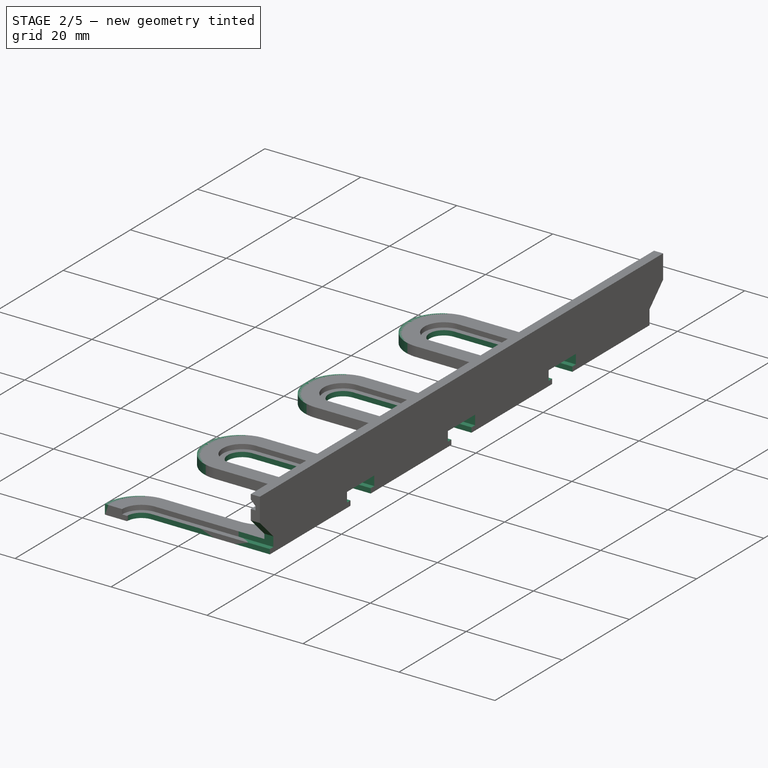
[diagram: stage 2 of 5 — iso view after this stage's code; geometry added in this stage tinted green]
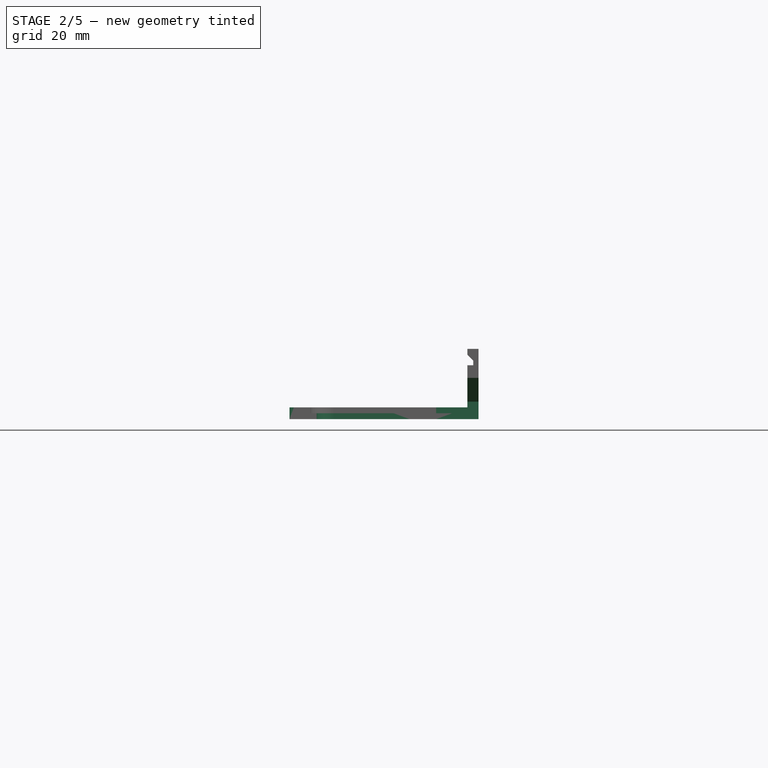
[diagram: stage 2 of 5 — front view after this stage's code; geometry added in this stage tinted green]
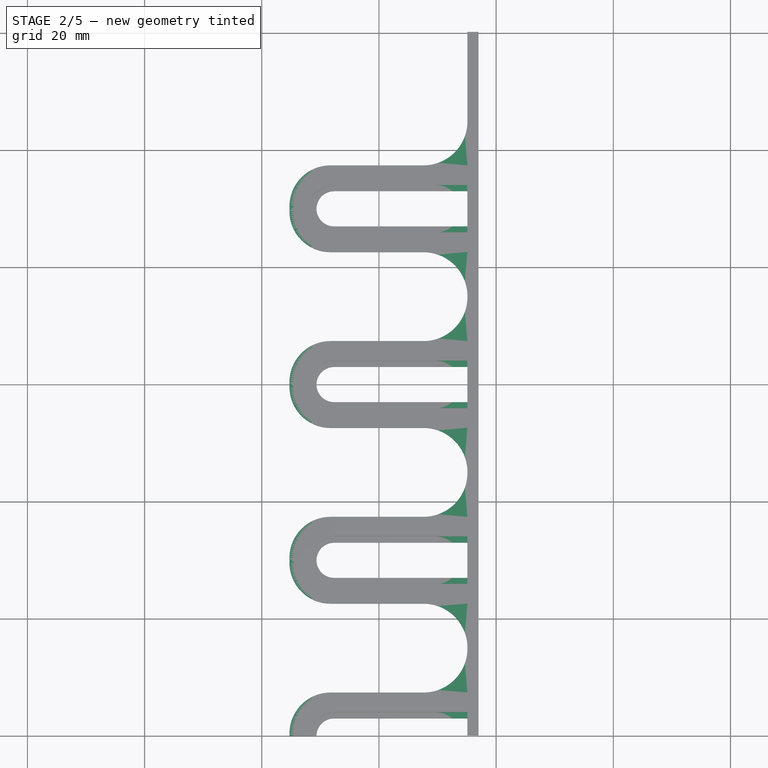
[diagram: stage 2 of 5 — top view after this stage's code; geometry added in this stage tinted green]
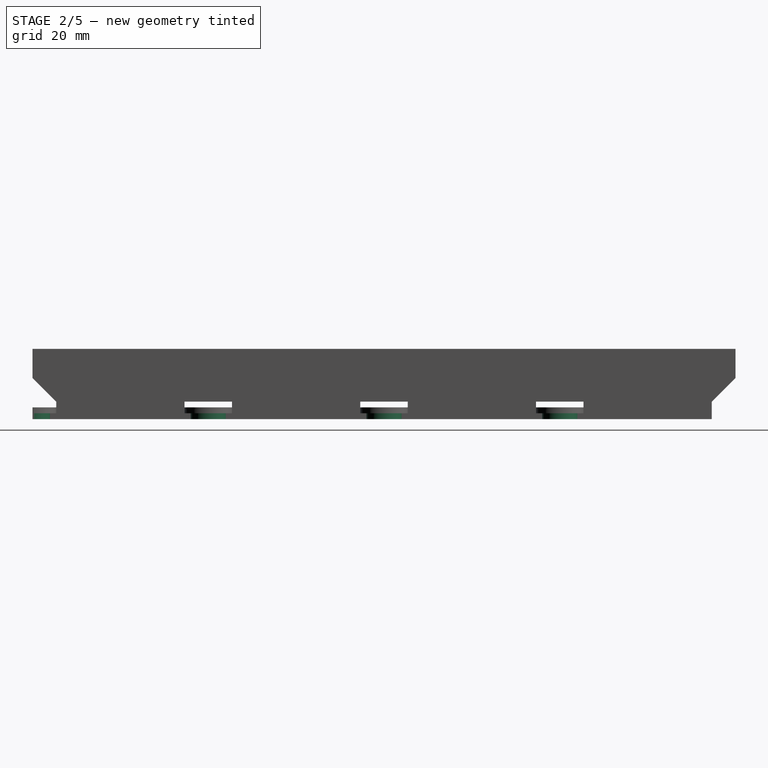
[diagram: stage 2 of 5 — right view after this stage's code; geometry added in this stage tinted green]
FEATURE [PartDesign::Pocket] Pocket013
  BaseFeature = -> Pocket012
  Direction = (-3,4e-16,0)
  Length = 12.911
  Length2 = 5
  Placement = pos=(0,0,0) rot=(1,0,0;1.5708rad)
  Profile = -> Pocket012 [Face66,Face55,Face77,Face88,Face11]
  Type = 0
FEATURE [PartDesign::Pocket] Pocket014
  BaseFeature = -> Pocket013
  Direction = (1,-1e-16,0)
  Length = 5
  Length2 = 5
  Placement = pos=(0,0,0) rot=(1,0,0;1.5708rad)
  Profile = -> Pocket013 [Face50,Face61,Face72,Face83,Face10]
  ReferenceAxis = -> Pocket013 [Edge251]
  Type = 1
FEATURE [PartDesign::Pocket] Pocket015
  BaseFeature = -> Pocket014
  Direction = (4.05,-1e-15,0)
  Length = 5
  Length2 = 5
  Placement = pos=(0,0,0) rot=(1,0,0;1.5708rad)
  Profile = -> Pocket014 [Face78,Face87,Face96,Face20,Face69]
  Type = 1
FEATURE [PartDesign::Pocket] Pocket016
  BaseFeature = -> Pocket015
  Direction = (0,1e-15,1)
  Length = 1
  Length2 = 5
  Placement = pos=(0,0,0) rot=(1,0,0;1.5708rad)
  Profile = -> Pocket015 [Face49,Face57,Face41,Face33,Face29]
  Type = 0
FEATURE [PartDesign::Chamfer] Chamfer
  Angle = 45
  Base = -> Pocket016 [Edge161,Edge149]
  BaseFeature = -> Pocket016
  ChamferType = 0
  FlipDirection = false
  Placement = pos=(0,0,0) rot=(1,0,0;1.5708rad)
  Size = 4.049
  Size2 = 9
  SupportTransform = false
  UseAllEdges = false
FEATURE [Sketcher::SketchObject] Sketch032
  ExternalGeometry = -> [Chamfer]
  FullyConstrained = true
  MapMode = 5
  Placement = pos=(0,0,-6) rot=(1,0,0;3.14159rad)
  Support = -> [Chamfer]
  sketch-geometry (6):
    g0: ArcOfCircle CenterX=7.6 CenterY=14.9 CenterZ=0 NormalX=0 NormalY=0 NormalZ=1 AngleXU=0 Radius=7.5 StartAngle=4.71239 EndAngle=6.28319
    g1: LineSegment StartX=7.6 StartY=7.4 StartZ=0 EndX=15.1 EndY=7.4 EndZ=0
    g2: LineSegment StartX=15.1 StartY=7.4 StartZ=0 EndX=15.1 EndY=14.9 EndZ=0
    g3: LineSegment StartX=7.6 StartY=22.6 StartZ=0 EndX=15.1 EndY=22.6 EndZ=0
    g4: LineSegment StartX=15.1 StartY=22.6 StartZ=0 EndX=15.1 EndY=15.1 EndZ=0
    g5: ArcOfCircle CenterX=7.6 CenterY=15.1 CenterZ=0 NormalX=0 NormalY=0 NormalZ=1 AngleXU=0 Radius=7.5 StartAngle=0 EndAngle=1.5708
  constraints (18):
    c: PointOnObject(g0,g-3)
    c: Horizontal(g0,g0)
    c: Vertical(g0,g0)
    c: Diameter(g0) = 15
    c: PointOnObject(g0,g-4)
    c: Coincident(g1,g0)
    c: Coincident(g2,g1)
    c: Coincident(g2,g0)
    c: Vertical(g2)
    c: Horizontal(g1)
    c: Coincident(g4,g3)
    c: Vertical(g4)
    c: Horizontal(g3)
    c: Coincident(g5,g4)
    c: Diameter(g5) = 15
    c: Tangent(g5,g3) = 1.5708
    c: Equal(g4,g2)
    c: Coincident(g-4,g3)
FEATURE [PartDesign::Pad] Pad015
  BaseFeature = -> Chamfer
  Direction = (0,-1.1e-15,-1)
  Length = 2
  Length2 = 10
  Placement = pos=(0,0,0) rot=(1,0,0;1.5708rad)
  Profile = -> Sketch032
  ReferenceAxis = -> Sketch032 [N_Axis]
  Reversed = true
  Type = 0
FEATURE [PartDesign::LinearPattern] LinearPattern001
  BaseFeature = -> Pad015
  Direction = -> Sketch032 [V_Axis]
  Length = 90
  Occurrences = 4
  Originals = -> [Pad015]
  Placement = pos=(0,0,0) rot=(1,0,0;1.5708rad)
FEATURE [PartDesign::Pad] Pad016
  BaseFeature = -> LinearPattern001
  Direction = (-1,0,0)
  Length = 0.524
  Length2 = 10
  Placement = pos=(0,0,0) rot=(1,0,0;1.5708rad)
  Profile = -> LinearPattern001 [Face217,Face238,Face228,Face231,Face240,Face236,Face234,Face239,Face225,Face220,Face223,Face214,Face211]
  ReferenceAxis = -> LinearPattern001 [Edge600]
  Type = 0
FEATURE [PartDesign::Pocket] Pocket020
  BaseFeature = -> Pad016
  Direction = (1,-1e-16,0)
  Length = 0.0038
  Length2 = 5
  Placement = pos=(0,0,0) rot=(1,0,0;1.5708rad)
  Profile = -> Pad016 [Face185,Face194,Face202,Face183,Face175]
  ReferenceAxis = -> Pad016 [Edge477]
  Reversed = true
  Type = 0
FEATURE [PartDesign::Pocket] Pocket021
  BaseFeature = -> Pocket020
  Direction = (0,1,-1.4e-15)
  Length = 5
  Length2 = 5
  Placement = pos=(0,0,0) rot=(1,0,0;1.5708rad)
  Profile = -> Pocket020 [Face260,Face261,Face221,Face176,Face122,Face131]
  ReferenceAxis = -> Pocket020 [Edge203]
  Type = 1
FEATURE [PartDesign::Pocket] Pocket022
  BaseFeature = -> Pocket021
  Direction = (0,-1.6e-15,-1)
  Length = 5
  Length2 = 5
  Placement = pos=(0,0,0) rot=(1,0,0;1.5708rad)
  Profile = -> Pocket021 [Face8]
  Type = 0
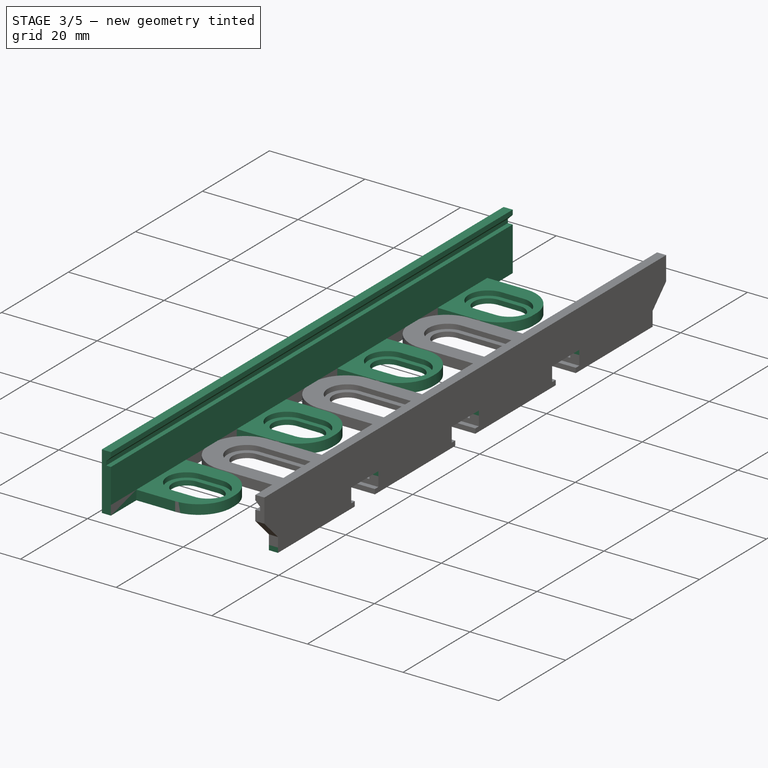
[diagram: stage 3 of 5 — iso view after this stage's code; geometry added in this stage tinted green]
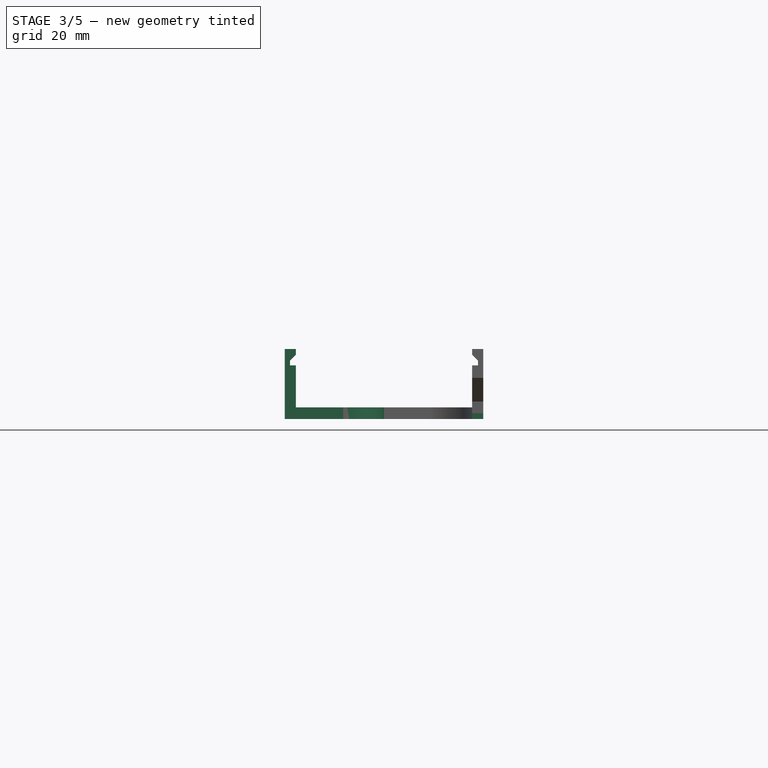
[diagram: stage 3 of 5 — front view after this stage's code; geometry added in this stage tinted green]
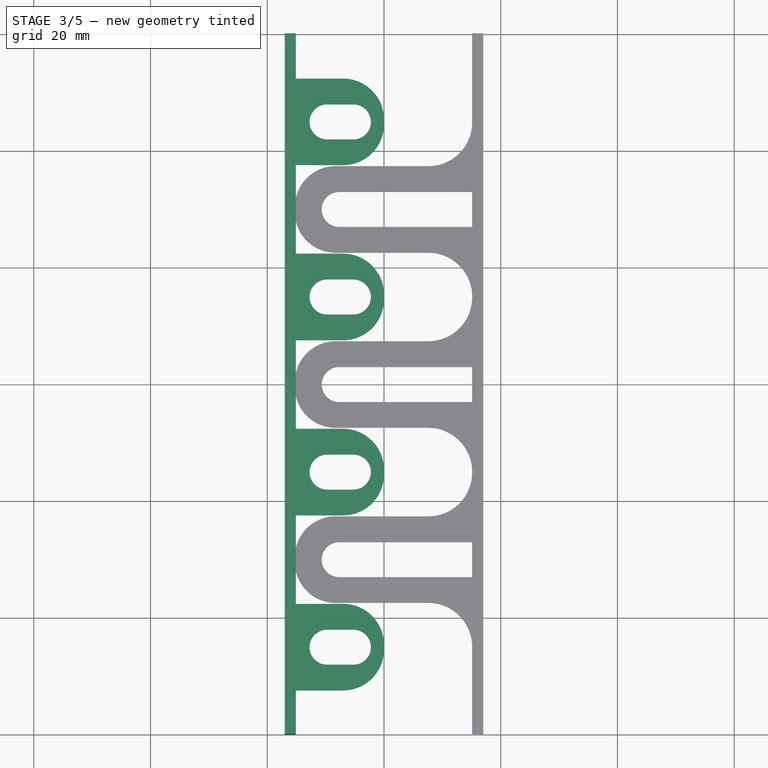
[diagram: stage 3 of 5 — top view after this stage's code; geometry added in this stage tinted green]
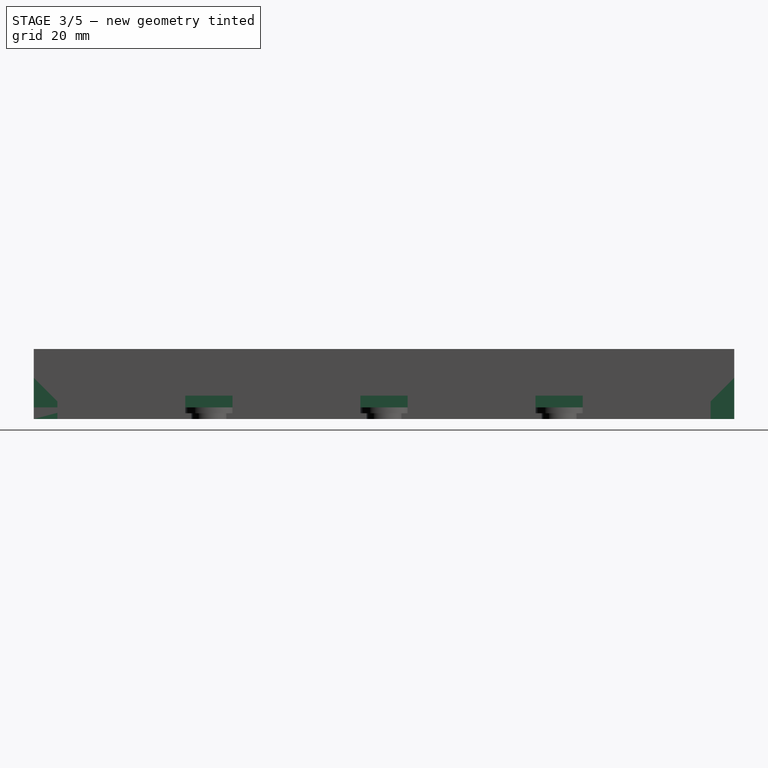
[diagram: stage 3 of 5 — right view after this stage's code; geometry added in this stage tinted green]
FEATURE [Sketcher::SketchObject] Sketch023
  FullyConstrained = true
  MapMode = 5
  Placement = pos=(0,0,0) rot=(1,0,0;1.5708rad)
  Support = -> [XZ_Plane004]
  sketch-geometry (25):
    g0: LineSegment StartX=17 StartY=-6 StartZ=0 EndX=17 EndY=6 EndZ=0
    g1: LineSegment StartX=17 StartY=6 StartZ=0 EndX=-17 EndY=6 EndZ=0
    g2: LineSegment StartX=-17 StartY=6 StartZ=0 EndX=-17 EndY=-6 EndZ=0
    g3: LineSegment StartX=-17 StartY=-6 StartZ=0 EndX=17 EndY=-6 EndZ=0
    g4: GeomPoint X=0 Y=0 Z=0
    g5: LineSegment StartX=-15.1 StartY=-4 StartZ=0 EndX=-15.1 EndY=3.2 EndZ=0
    g6: LineSegment StartX=-15.1 StartY=6 StartZ=0 EndX=15.1 EndY=6 EndZ=0
    g7: LineSegment StartX=15.1 StartY=6 StartZ=0 EndX=15.1 EndY=4 EndZ=0
    g8: LineSegment StartX=15.1 StartY=-4 StartZ=0 EndX=-15.1 EndY=-4 EndZ=0
    g9: GeomPoint X=0 Y=1 Z=0
    g10: LineSegment StartX=-15.1 StartY=6 StartZ=0 EndX=-17 EndY=6 EndZ=0
    g11: LineSegment StartX=15.1 StartY=6 StartZ=0 EndX=17 EndY=6 EndZ=0
    g12: LineSegment StartX=-16.1 StartY=3.2 StartZ=0 EndX=-16.1 EndY=4 EndZ=0
    g13: LineSegment StartX=-16.1 StartY=4 StartZ=0 EndX=-15.1 EndY=4 EndZ=0
    g14: LineSegment StartX=16.1 StartY=4 StartZ=0 EndX=16.1 EndY=3.2 EndZ=0
    g15: LineSegment StartX=16.1 StartY=3.2 StartZ=0 EndX=15.1 EndY=3.2 EndZ=0
    g16: GeomPoint X=1e-16 Y=3.6 Z=0
    g17: LineSegment StartX=15.1 StartY=4 StartZ=0 EndX=16.1 EndY=4 EndZ=0
    g18: LineSegment StartX=-15.1 StartY=3.2 StartZ=0 EndX=-16.1 EndY=3.2 EndZ=0
    g19: LineSegment StartX=-15.1 StartY=4 StartZ=0 EndX=-15.1 EndY=6 EndZ=0
    g20: LineSegment StartX=15.1 StartY=3.2 StartZ=0 EndX=15.1 EndY=-4 EndZ=0
    g21: LineSegment StartX=-16.1 StartY=4 StartZ=0 EndX=-15.1 EndY=5 EndZ=0
    g22: LineSegment StartX=-15.1 StartY=6 StartZ=0 EndX=-15.1 EndY=5 EndZ=0
    g23: LineSegment StartX=15.1 StartY=6 StartZ=0 EndX=15.1 EndY=5 EndZ=0
    g24: LineSegment StartX=15.1 StartY=5 StartZ=0 EndX=16.1 EndY=4 EndZ=0
  constraints (62):
    c: Coincident(g0,g1)
    c: Coincident(g1,g2)
    c: Coincident(g2,g3)
    c: Coincident(g3,g0)
    c: Horizontal(g1)
    c: Horizontal(g3)
    c: Vertical(g0)
    c: Vertical(g2)
    c: Symmetric(g1,g0,g4)
    c: Coincident(g4,g-1)
    c: Coincident(g19,g6)
    c: Coincident(g6,g7)
    c: Coincident(g20,g8)
    c: Coincident(g8,g5)
    c: Horizontal(g6)
    c: Horizontal(g8)
    c: Vertical(g5)
    c: Vertical(g7)
    c: Symmetric(g6,g5,g9)
    c: PointOnObject(g9,g-2)
    c: PointOnObject(g7,g1)
    c: Coincident(g10,g19)
    c: Coincident(g10,g2)
    c: Coincident(g11,g7)
    c: Coincident(g11,g0)
    c: Coincident(g12,g13)
    c: Coincident(g17,g14)
    c: Coincident(g14,g15)
    c: Coincident(g18,g12)
    c: Horizontal(g15)
    c: Vertical(g12)
    c: Vertical(g14)
    c: Symmetric(g17,g12,g16)
    c: Coincident(g5,g18)
    c: Coincident(g19,g13)
    c: Coincident(g7,g17)
    c: Coincident(g20,g15)
    c: Vertical(g19)
    c: Tangent(g17,g13)
    c: Tangent(g18,g15)
    c: Symmetric(g12,g14,g-2)
    c: Vertical(g5,g13)
    c: Vertical(g15,g7)
    c: Vertical(g20)
    c: DistanceY(g2,g5) = 2
    c: DistanceX(g12,g14) = 32.2
    c: DistanceY(g14,g14) = 0.8
    c: DistanceY(g2,g13) = 10
    c: DistanceY(g2,g2) = 12
    c: DistanceX(g2,g0) = 34
    c: DistanceX(g2,g5) = 1.9
    c: DistanceX(g18,g18) = 1
    c: Coincident(g21,g12)
    c: PointOnObject(g21,g19)
    c: Coincident(g22,g10)
    c: Coincident(g22,g21)
    c: Coincident(g23,g11)
    c: PointOnObject(g23,g7)
    c: Coincident(g24,g23)
    c: Coincident(g24,g14)
    c: Horizontal(g23,g21)
    c: Angle(g12,g21) = 2.35619
FEATURE [PartDesign::Pad] Pad008
  Direction = (0,-1,-2e-16)
  Length = 120
  Length2 = 10
  Placement = pos=(0,0,0) rot=(1,0,0;1.5708rad)
  Profile = -> Sketch023
  ReferenceAxis = -> Sketch023 [N_Axis]
  Type = 0
FEATURE [PartDesign::Plane] DatumPlane004
  AttachmentOffset = pos=(0,0,-6) rot=(0,0,1;0rad)
  Length = 67.0294
  MapMode = 5
  Placement = pos=(0,0,-6) rot=(0,0,1;0rad)
  ResizeMode = 0
  Support = -> [XY_Plane006]
  Width = 162.029
FEATURE [Sketcher::SketchObject] Sketch024
  AttachmentOffset = pos=(-6,0,0) rot=(0,0,1;0rad)
  FullyConstrained = true
  MapMode = 5
  Placement = pos=(-6,0,-6) rot=(0,0,1;0rad)
  Support = -> [DatumPlane004]
  sketch-geometry (4):
    g0: LineSegment StartX=-9 StartY=0 StartZ=0 EndX=21 EndY=0 EndZ=0
    g1: LineSegment StartX=21 StartY=0 StartZ=0 EndX=21 EndY=-120 EndZ=0
    g2: LineSegment StartX=21 StartY=-120 StartZ=0 EndX=-9 EndY=-120 EndZ=0
    g3: LineSegment StartX=-9 StartY=-120 StartZ=0 EndX=-9 EndY=0 EndZ=0
  constraints (12):
    c: Coincident(g0,g1)
    c: Coincident(g1,g2)
    c: Coincident(g2,g3)
    c: Coincident(g3,g0)
    c: Horizontal(g0)
    c: Horizontal(g2)
    c: Vertical(g1)
    c: Vertical(g3)
    c: PointOnObject(g0,g-1)
    c: Distance(g3) = 120
    c: DistanceX(g2,g2) = 30
    c: DistanceX(g0,g-1) = 9
FEATURE [PartDesign::Pad] Pad009
  BaseFeature = -> Pad008
  Direction = (0,0,1)
  Length = 2
  Length2 = 10
  Placement = pos=(0,0,0) rot=(1,0,0;1.5708rad)
  Profile = -> Sketch024
  ReferenceAxis = -> Sketch024 [N_Axis]
  Type = 0
FEATURE [Sketcher::SketchObject] Sketch016  label="CounterBoreHoles004"
  AttachmentOffset = pos=(-22.5,-200.5,-4) rot=(0,0,1;0rad)
  FullyConstrained = true
  MapMode = 5
  Placement = pos=(-22.5,-200.5,-4) rot=(0,0,1;0rad)
  Support = -> [XY_Plane006]
  sketch-geometry (238):
    g0: Circle CenterX=15 CenterY=35.5 CenterZ=0 NormalX=0 NormalY=0 NormalZ=1 AngleXU=0 Radius=3
    g1: Circle CenterX=45 CenterY=35.5 CenterZ=0 NormalX=0 NormalY=0 NormalZ=1 AngleXU=0 Radius=3
    g2: Circle CenterX=75 CenterY=35.5 CenterZ=0 NormalX=0 NormalY=0 NormalZ=1 AngleXU=0 Radius=3
    g3: Circle CenterX=15 CenterY=65.5 CenterZ=0 NormalX=0 NormalY=0 NormalZ=1 AngleXU=0 Radius=3
    g4: Circle CenterX=45 CenterY=65.5 CenterZ=0 NormalX=0 NormalY=0 NormalZ=1 AngleXU=0 Radius=3
    g5: Circle CenterX=75 CenterY=65.5 CenterZ=0 NormalX=0 NormalY=0 NormalZ=1 AngleXU=0 Radius=3
    g6: LineSegment StartX=15 StartY=35.5 StartZ=0 EndX=15 EndY=65.5 EndZ=0
    g7: Circle CenterX=30 CenterY=20.5 CenterZ=0 NormalX=0 NormalY=0 NormalZ=1 AngleXU=0 Radius=3
    g8: Circle CenterX=60 CenterY=20.5 CenterZ=0 NormalX=0 NormalY=0 NormalZ=1 AngleXU=0 Radius=3
    g9: Circle CenterX=60 CenterY=50.5 CenterZ=0 NormalX=0 NormalY=0 NormalZ=1 AngleXU=0 Radius=3
    g10: Circle CenterX=30 CenterY=50.5 CenterZ=0 NormalX=0 NormalY=0 NormalZ=1 AngleXU=0 Radius=3
    g11: LineSegment StartX=30 StartY=20.5 StartZ=0 EndX=30 EndY=50.5 EndZ=0
    g12: Circle CenterX=90 CenterY=50.5 CenterZ=0 NormalX=0 NormalY=0 NormalZ=1 AngleXU=0 Radius=3
    g13: Circle CenterX=105 CenterY=65.5 CenterZ=0 NormalX=0 NormalY=0 NormalZ=1 AngleXU=0 Radius=3
    g14: Circle CenterX=90 CenterY=20.5 CenterZ=0 NormalX=0 NormalY=0 NormalZ=1 AngleXU=0 Radius=3
    g15: Circle CenterX=105 CenterY=35.5 CenterZ=0 NormalX=0 NormalY=0 NormalZ=1 AngleXU=0 Radius=3
    g16: Circle CenterX=30 CenterY=80.5 CenterZ=0 NormalX=0 NormalY=0 NormalZ=1 AngleXU=0 Radius=3
    g17: Circle CenterX=60 CenterY=80.5 CenterZ=0 NormalX=0 NormalY=0 NormalZ=1 AngleXU=0 Radius=3
    g18: Circle CenterX=90 CenterY=80.5 CenterZ=0 NormalX=0 NormalY=0 NormalZ=1 AngleXU=0 Radius=3
    g19: LineSegment StartX=30 StartY=80.5 StartZ=0 EndX=30 EndY=50.5 EndZ=0
    g20: LineSegment StartX=15 StartY=35.5 StartZ=0 EndX=45 EndY=35.5 EndZ=0
    g21: LineSegment StartX=105 StartY=35.5 StartZ=0 EndX=75 EndY=35.5 EndZ=0
    g22: LineSegment StartX=45 StartY=35.5 StartZ=0 EndX=75 EndY=35.5 EndZ=0
    g23: LineSegment StartX=30 StartY=20.5 StartZ=0 EndX=60 EndY=20.5 EndZ=0
    g24: LineSegment StartX=90 StartY=20.5 StartZ=0 EndX=60 EndY=20.5 EndZ=0
    g25: LineSegment StartX=15 StartY=0 StartZ=0 EndX=15 EndY=80.5 EndZ=0
    g26: Circle CenterX=15 CenterY=95.5 CenterZ=0 NormalX=0 NormalY=0 NormalZ=1 AngleXU=0 Radius=3
    g27: Circle CenterX=45 CenterY=95.5 CenterZ=0 NormalX=0 NormalY=0 NormalZ=1 AngleXU=0 Radius=3
    g28: Circle CenterX=75 CenterY=95.5 CenterZ=0 NormalX=0 NormalY=0 NormalZ=1 AngleXU=0 Radius=3
    g29: Circle CenterX=105 CenterY=95.5 CenterZ=0 NormalX=0 NormalY=0 NormalZ=1 AngleXU=0 Radius=3
    g30: Circle CenterX=30 CenterY=110.5 CenterZ=0 NormalX=0 NormalY=0 NormalZ=1 AngleXU=0 Radius=3
    g31: Circle CenterX=60 CenterY=110.5 CenterZ=0 NormalX=0 NormalY=0 NormalZ=1 AngleXU=0 Radius=3
    g32: Circle CenterX=90 CenterY=110.5 CenterZ=0 NormalX=0 NormalY=0 NormalZ=1 AngleXU=0 Radius=3
    g33: Circle CenterX=15 CenterY=125.5 CenterZ=0 NormalX=0 NormalY=0 NormalZ=1 AngleXU=0 Radius=3
    g34: Circle CenterX=45 CenterY=125.5 CenterZ=0 NormalX=0 NormalY=0 NormalZ=1 AngleXU=0 Radius=3
    g35: Circle CenterX=75 CenterY=125.5 CenterZ=0 NormalX=0 NormalY=0 NormalZ=1 AngleXU=0 Radius=3
    g36: Circle CenterX=105 CenterY=125.5 CenterZ=0 NormalX=0 NormalY=0 NormalZ=1 AngleXU=0 Radius=3
    g37: LineSegment StartX=15 StartY=65.5 StartZ=0 EndX=15 EndY=95.5 EndZ=0
    g38: LineSegment StartX=15 StartY=95.5 StartZ=0 EndX=15 EndY=125.5 EndZ=0
    g39: LineSegment StartX=30 StartY=80.5 StartZ=0 EndX=30 EndY=110.5 EndZ=0
    g40: Circle CenterX=15 CenterY=155.5 CenterZ=0 NormalX=0 NormalY=0 NormalZ=1 AngleXU=0 Radius=3
    g41: Circle CenterX=45 CenterY=155.5 CenterZ=0 NormalX=0 NormalY=0 NormalZ=1 AngleXU=0 Radius=3
    g42: Circle CenterX=75 CenterY=155.5 CenterZ=0 NormalX=0 NormalY=0 NormalZ=1 AngleXU=0 Radius=3
    g43: LineSegment StartX=15 StartY=125.5 StartZ=0 EndX=15 EndY=155.5 EndZ=0
    g44: Circle CenterX=60 CenterY=140.5 CenterZ=0 NormalX=0 NormalY=0 NormalZ=1 AngleXU=0 Radius=3
    g45: Circle CenterX=30 CenterY=140.5 CenterZ=0 NormalX=0 NormalY=0 NormalZ=1 AngleXU=0 Radius=3
    g46: LineSegment StartX=30 StartY=110.5 StartZ=0 EndX=30 EndY=140.5 EndZ=0
    g47: Circle CenterX=90 CenterY=140.5 CenterZ=0 NormalX=0 NormalY=0 NormalZ=1 AngleXU=0 Radius=3
    g48: Circle CenterX=105 CenterY=155.5 CenterZ=0 NormalX=0 NormalY=0 NormalZ=1 AngleXU=0 Radius=3
    g49: Circle CenterX=30 CenterY=170.5 CenterZ=0 NormalX=0 NormalY=0 NormalZ=1 AngleXU=0 Radius=3
    g50: Circle CenterX=60 CenterY=170.5 CenterZ=0 NormalX=0 NormalY=0 NormalZ=1 AngleXU=0 Radius=3
    g51: Circle CenterX=90 CenterY=170.5 CenterZ=0 NormalX=0 NormalY=0 NormalZ=1 AngleXU=0 Radius=3
    g52: LineSegment StartX=30 StartY=170.5 StartZ=0 EndX=30 EndY=140.5 EndZ=0
    g53: Circle CenterX=15 CenterY=185.5 CenterZ=0 NormalX=0 NormalY=0 NormalZ=1 AngleXU=0 Radius=3
    g54: Circle CenterX=45 CenterY=185.5 CenterZ=0 NormalX=0 NormalY=0 NormalZ=1 AngleXU=0 Radius=3
    g55: Circle CenterX=75 CenterY=185.5 CenterZ=0 NormalX=0 NormalY=0 NormalZ=1 AngleXU=0 Radius=3
    g56: Circle CenterX=105 CenterY=185.5 CenterZ=0 NormalX=0 NormalY=0 NormalZ=1 AngleXU=0 Radius=3
    g57: Circle CenterX=30 CenterY=200.5 CenterZ=0 NormalX=0 NormalY=0 NormalZ=1 AngleXU=0 Radius=3
    g58: Circle CenterX=60 CenterY=200.5 CenterZ=0 NormalX=0 NormalY=0 NormalZ=1 AngleXU=0 Radius=3
    g59: Circle CenterX=90 CenterY=200.5 CenterZ=0 NormalX=0 NormalY=0 NormalZ=1 AngleXU=0 Radius=3
    g60: Circle CenterX=15 CenterY=215.5 CenterZ=0 NormalX=0 NormalY=0 NormalZ=1 AngleXU=0 Radius=3
    g61: Circle CenterX=45 CenterY=215.5 CenterZ=0 NormalX=0 NormalY=0 NormalZ=1 AngleXU=0 Radius=3
    g62: Circle CenterX=75 CenterY=215.5 CenterZ=0 NormalX=0 NormalY=0 NormalZ=1 AngleXU=0 Radius=3
    g63: Circle CenterX=105 CenterY=215.5 CenterZ=0 NormalX=0 NormalY=0 NormalZ=1 AngleXU=0 Radius=3
    g64: LineSegment StartX=15 StartY=155.5 StartZ=0 EndX=15 EndY=185.5 EndZ=0
    g65: LineSegment StartX=15 StartY=185.5 StartZ=0 EndX=15 EndY=215.5 EndZ=0
    g66: LineSegment StartX=30 StartY=170.5 StartZ=0 EndX=30 EndY=200.5 EndZ=0
    g67: Circle CenterX=120 CenterY=50.5 CenterZ=0 NormalX=0 NormalY=0 NormalZ=1 AngleXU=0 Radius=3
    g68: Circle CenterX=120 CenterY=20.5 CenterZ=0 NormalX=0 NormalY=0 NormalZ=1 AngleXU=0 Radius=3
    g69: Circle CenterX=120 CenterY=80.5 CenterZ=0 NormalX=0 NormalY=0 NormalZ=1 AngleXU=0 Radius=3
    g70: LineSegment StartX=120 StartY=20.5 StartZ=0 EndX=90 EndY=20.5 EndZ=0
    g71: Circle CenterX=120 CenterY=110.5 CenterZ=0 NormalX=0 NormalY=0 NormalZ=1 AngleXU=0 Radius=3
    g72: Circle CenterX=120 CenterY=140.5 CenterZ=0 NormalX=0 NormalY=0 NormalZ=1 AngleXU=0 Radius=3
    g73: Circle CenterX=120 CenterY=170.5 CenterZ=0 NormalX=0 NormalY=0 NormalZ=1 AngleXU=0 Radius=3
    g74: Circle CenterX=120 CenterY=200.5 CenterZ=0 NormalX=0 NormalY=0 NormalZ=1 AngleXU=0 Radius=3
    g75: Circle CenterX=0 CenterY=50.5 CenterZ=0 NormalX=0 NormalY=0 NormalZ=1 AngleXU=0 Radius=3
    g76: Circle CenterX=0 CenterY=20.5 CenterZ=0 NormalX=0 NormalY=0 NormalZ=1 AngleXU=0 Radius=3
    g77: Circle CenterX=0 CenterY=80.5 CenterZ=0 NormalX=0 NormalY=0 NormalZ=1 AngleXU=0 Radius=3
    g78: Circle CenterX=0 CenterY=110.5 CenterZ=0 NormalX=0 NormalY=0 NormalZ=1 AngleXU=0 Radius=3
    g79: Circle CenterX=0 CenterY=140.5 CenterZ=0 NormalX=0 NormalY=0 NormalZ=1 AngleXU=0 Radius=3
    g80: Circle CenterX=0 CenterY=170.5 CenterZ=0 NormalX=0 NormalY=0 NormalZ=1 AngleXU=0 Radius=3
    g81: Circle CenterX=0 CenterY=200.5 CenterZ=0 NormalX=0 NormalY=0 NormalZ=1 AngleXU=0 Radius=3
    g82: GeomPoint X=15 Y=5.5 Z=0
    g83: Circle CenterX=15 CenterY=20.5 CenterZ=0 NormalX=0 NormalY=0 NormalZ=1 AngleXU=0 Radius=3
    g84: Circle CenterX=45 CenterY=20.5 CenterZ=0 NormalX=0 NormalY=0 NormalZ=1 AngleXU=0 Radius=3
    g85: Circle CenterX=75 CenterY=20.5 CenterZ=0 NormalX=0 NormalY=0 NormalZ=1 AngleXU=0 Radius=3
    g86: Circle CenterX=15 CenterY=50.5 CenterZ=0 NormalX=0 NormalY=0 NormalZ=1 AngleXU=0 Radius=3
    g87: Circle CenterX=45 CenterY=50.5 CenterZ=0 NormalX=0 NormalY=0 NormalZ=1 AngleXU=0 Radius=3
    g88: Circle CenterX=75 CenterY=50.5 CenterZ=0 NormalX=0 NormalY=0 NormalZ=1 AngleXU=0 Radius=3
    g89: LineSegment StartX=15 StartY=20.5 StartZ=0 EndX=15 EndY=50.5 EndZ=0
    g90: Circle CenterX=30 CenterY=5.5 CenterZ=0 NormalX=0 NormalY=0 NormalZ=1 AngleXU=0 Radius=3
    g91: Circle CenterX=60 CenterY=5.5 CenterZ=0 NormalX=0 NormalY=0 NormalZ=1 AngleXU=0 Radius=3
    g92: Circle CenterX=60 CenterY=35.5 CenterZ=0 NormalX=0 NormalY=0 NormalZ=1 AngleXU=0 Radius=3
    g93: Circle CenterX=30 CenterY=35.5 CenterZ=0 NormalX=0 NormalY=0 NormalZ=1 AngleXU=0 Radius=3
    g94: LineSegment StartX=30 StartY=5.5 StartZ=0 EndX=30 EndY=35.5 EndZ=0
    g95: Circle CenterX=90 CenterY=35.5 CenterZ=0 NormalX=0 NormalY=0 NormalZ=1 AngleXU=0 Radius=3
    g96: Circle CenterX=105 CenterY=50.5 CenterZ=0 NormalX=0 NormalY=0 NormalZ=1 AngleXU=0 Radius=3
    g97: Circle CenterX=90 CenterY=5.5 CenterZ=0 NormalX=0 NormalY=0 NormalZ=1 AngleXU=0 Radius=3
    g98: Circle CenterX=105 CenterY=20.5 CenterZ=0 NormalX=0 NormalY=0 NormalZ=1 AngleXU=0 Radius=3
    g99: Circle CenterX=30 CenterY=65.5 CenterZ=0 NormalX=0 NormalY=0 NormalZ=1 AngleXU=0 Radius=3
    g100: Circle CenterX=60 CenterY=65.5 CenterZ=0 NormalX=0 NormalY=0 NormalZ=1 AngleXU=0 Radius=3
    g101: Circle CenterX=90 CenterY=65.5 CenterZ=0 NormalX=0 NormalY=0 NormalZ=1 AngleXU=0 Radius=3
    g102: LineSegment StartX=30 StartY=65.5 StartZ=0 EndX=30 EndY=35.5 EndZ=0
    g103: LineSegment StartX=15 StartY=20.5 StartZ=0 EndX=45 EndY=20.5 EndZ=0
    g104: LineSegment StartX=105 StartY=20.5 StartZ=0 EndX=75 EndY=20.5 EndZ=0
    g105: LineSegment StartX=45 StartY=20.5 StartZ=0 EndX=75 EndY=20.5 EndZ=0
    g106: LineSegment StartX=30 StartY=5.5 StartZ=0 EndX=60 EndY=5.5 EndZ=0
    g107: LineSegment StartX=90 StartY=5.5 StartZ=0 EndX=60 EndY=5.5 EndZ=0
    g108: LineSegment StartX=15 StartY=-9.5 StartZ=0 EndX=15 EndY=65.5 EndZ=0
    g109: Circle CenterX=15 CenterY=80.5 CenterZ=0 NormalX=0 NormalY=0 NormalZ=1 AngleXU=0 Radius=3
    g110: Circle CenterX=45 CenterY=80.5 CenterZ=0 NormalX=0 NormalY=0 NormalZ=1 AngleXU=0 Radius=3
    g111: Circle CenterX=75 CenterY=80.5 CenterZ=0 NormalX=0 NormalY=0 NormalZ=1 AngleXU=0 Radius=3
    g112: Circle CenterX=105 CenterY=80.5 CenterZ=0 NormalX=0 NormalY=0 NormalZ=1 AngleXU=0 Radius=3
    g113: Circle CenterX=30 CenterY=95.5 CenterZ=0 NormalX=0 NormalY=0 NormalZ=1 AngleXU=0 Radius=3
    g114: Circle CenterX=60 CenterY=95.5 CenterZ=0 NormalX=0 NormalY=0 NormalZ=1 AngleXU=0 Radius=3
    g115: Circle CenterX=90 CenterY=95.5 CenterZ=0 NormalX=0 NormalY=0 NormalZ=1 AngleXU=0 Radius=3
    g116: Circle CenterX=15 CenterY=110.5 CenterZ=0 NormalX=0 NormalY=0 NormalZ=1 AngleXU=0 Radius=3
    g117: Circle CenterX=45 CenterY=110.5 CenterZ=0 NormalX=0 NormalY=0 NormalZ=1 AngleXU=0 Radius=3
    g118: Circle CenterX=75 CenterY=110.5 CenterZ=0 NormalX=0 NormalY=0 NormalZ=1 AngleXU=0 Radius=3
    g119: Circle CenterX=105 CenterY=110.5 CenterZ=0 NormalX=0 NormalY=0 NormalZ=1 AngleXU=0 Radius=3
    g120: LineSegment StartX=15 StartY=50.5 StartZ=0 EndX=15 EndY=80.5 EndZ=0
    g121: LineSegment StartX=15 StartY=80.5 StartZ=0 EndX=15 EndY=110.5 EndZ=0
    g122: LineSegment StartX=30 StartY=65.5 StartZ=0 EndX=30 EndY=95.5 EndZ=0
    g123: Circle CenterX=15 CenterY=140.5 CenterZ=0 NormalX=0 NormalY=0 NormalZ=1 AngleXU=0 Radius=3
    g124: Circle CenterX=45 CenterY=140.5 CenterZ=0 NormalX=0 NormalY=0 NormalZ=1 AngleXU=0 Radius=3
    g125: Circle CenterX=75 CenterY=140.5 CenterZ=0 NormalX=0 NormalY=0 NormalZ=1 AngleXU=0 Radius=3
    g126: LineSegment StartX=15 StartY=110.5 StartZ=0 EndX=15 EndY=140.5 EndZ=0
    g127: Circle CenterX=60 CenterY=125.5 CenterZ=0 NormalX=0 NormalY=0 NormalZ=1 AngleXU=0 Radius=3
    g128: Circle CenterX=30 CenterY=125.5 CenterZ=0 NormalX=0 NormalY=0 NormalZ=1 AngleXU=0 Radius=3
    g129: LineSegment StartX=30 StartY=95.5 StartZ=0 EndX=30 EndY=125.5 EndZ=0
    g130: Circle CenterX=90 CenterY=125.5 CenterZ=0 NormalX=0 NormalY=0 NormalZ=1 AngleXU=0 Radius=3
    g131: Circle CenterX=105 CenterY=140.5 CenterZ=0 NormalX=0 NormalY=0 NormalZ=1 AngleXU=0 Radius=3
    g132: Circle CenterX=30 CenterY=155.5 CenterZ=0 NormalX=0 NormalY=0 NormalZ=1 AngleXU=0 Radius=3
    g133: Circle CenterX=60 CenterY=155.5 CenterZ=0 NormalX=0 NormalY=0 NormalZ=1 AngleXU=0 Radius=3
    g134: Circle CenterX=90 CenterY=155.5 CenterZ=0 NormalX=0 NormalY=0 NormalZ=1 AngleXU=0 Radius=3
    g135: LineSegment StartX=30 StartY=155.5 StartZ=0 EndX=30 EndY=125.5 EndZ=0
    g136: Circle CenterX=15 CenterY=170.5 CenterZ=0 NormalX=0 NormalY=0 NormalZ=1 AngleXU=0 Radius=3
    g137: Circle CenterX=45 CenterY=170.5 CenterZ=0 NormalX=0 NormalY=0 NormalZ=1 AngleXU=0 Radius=3
    g138: Circle CenterX=75 CenterY=170.5 CenterZ=0 NormalX=0 NormalY=0 NormalZ=1 AngleXU=0 Radius=3
    g139: Circle CenterX=105 CenterY=170.5 CenterZ=0 NormalX=0 NormalY=0 NormalZ=1 AngleXU=0 Radius=3
    g140: Circle CenterX=30 CenterY=185.5 CenterZ=0 NormalX=0 NormalY=0 NormalZ=1 AngleXU=0 Radius=3
    g141: Circle CenterX=60 CenterY=185.5 CenterZ=0 NormalX=0 NormalY=0 NormalZ=1 AngleXU=0 Radius=3
    g142: Circle CenterX=90 CenterY=185.5 CenterZ=0 NormalX=0 NormalY=0 NormalZ=1 AngleXU=0 Radius=3
    g143: Circle CenterX=15 CenterY=200.5 CenterZ=0 NormalX=0 NormalY=0 NormalZ=1 AngleXU=0 Radius=3
    g144: Circle CenterX=45 CenterY=200.5 CenterZ=0 NormalX=0 NormalY=0 NormalZ=1 AngleXU=0 Radius=3
    g145: Circle CenterX=75 CenterY=200.5 CenterZ=0 NormalX=0 NormalY=0 NormalZ=1 AngleXU=0 Radius=3
    g146: Circle CenterX=105 CenterY=200.5 CenterZ=0 NormalX=0 NormalY=0 NormalZ=1 AngleXU=0 Radius=3
    g147: LineSegment StartX=15 StartY=140.5 StartZ=0 EndX=15 EndY=170.5 EndZ=0
    g148: LineSegment StartX=15 StartY=170.5 StartZ=0 EndX=15 EndY=200.5 EndZ=0
    g149: LineSegment StartX=30 StartY=155.5 StartZ=0 EndX=30 EndY=185.5 EndZ=0
    g150: Circle CenterX=120 CenterY=35.5 CenterZ=0 NormalX=0 NormalY=0 NormalZ=1 AngleXU=0 Radius=3
    g151: Circle CenterX=120 CenterY=5.5 CenterZ=0 NormalX=0 NormalY=0 NormalZ=1 AngleXU=0 Radius=3
    g152: Circle CenterX=120 CenterY=65.5 CenterZ=0 NormalX=0 NormalY=0 NormalZ=1 AngleXU=0 Radius=3
    g153: LineSegment StartX=120 StartY=5.5 StartZ=0 EndX=90 EndY=5.5 EndZ=0
    g154: Circle CenterX=120 CenterY=95.5 CenterZ=0 NormalX=0 NormalY=0 NormalZ=1 AngleXU=0 Radius=3
    g155: Circle CenterX=120 CenterY=125.5 CenterZ=0 NormalX=0 NormalY=0 NormalZ=1 AngleXU=0 Radius=3
    g156: Circle CenterX=120 CenterY=155.5 CenterZ=0 NormalX=0 NormalY=0 NormalZ=1 AngleXU=0 Radius=3
    g157: Circle CenterX=120 CenterY=185.5 CenterZ=0 NormalX=0 NormalY=0 NormalZ=1 AngleXU=0 Radius=3
    g158: Circle CenterX=0 CenterY=35.5 CenterZ=0 NormalX=0 NormalY=0 NormalZ=1 AngleXU=0 Radius=3
    g159: Circle CenterX=0 CenterY=5.5 CenterZ=0 NormalX=0 NormalY=0 NormalZ=1 AngleXU=0 Radius=3
    g160: Circle CenterX=0 CenterY=65.5 CenterZ=0 NormalX=0 NormalY=0 NormalZ=1 AngleXU=0 Radius=3
    g161: Circle CenterX=0 CenterY=95.5 CenterZ=0 NormalX=0 NormalY=0 NormalZ=1 AngleXU=0 Radius=3
    g162: Circle CenterX=0 CenterY=125.5 CenterZ=0 NormalX=0 NormalY=0 NormalZ=1 AngleXU=0 Radius=3
    g163: Circle CenterX=0 CenterY=155.5 CenterZ=0 NormalX=0 NormalY=0 NormalZ=1 AngleXU=0 Radius=3
    g164: Circle CenterX=0 CenterY=185.5 CenterZ=0 NormalX=0 NormalY=0 NormalZ=1 AngleXU=0 Radius=3
    g165: GeomPoint X=15 Y=-9.5 Z=0
    g166: ArcOfCircle CenterX=12.75 CenterY=185.5 CenterZ=0 NormalX=0 NormalY=0 NormalZ=1 AngleXU=0 Radius=3 StartAngle=1.5708 EndAngle=4.71239
    g167: ArcOfCircle CenterX=17.25 CenterY=185.5 CenterZ=0 NormalX=0 NormalY=0 NormalZ=1 AngleXU=0 Radius=3 StartAngle=4.71239 EndAngle=7.85398
    g168: LineSegment StartX=12.75 StartY=182.5 StartZ=0 EndX=17.25 EndY=182.5 EndZ=0
    g169: LineSegment StartX=17.25 StartY=188.5 StartZ=0 EndX=12.75 EndY=188.5 EndZ=0
    g170: ArcOfCircle CenterX=27.75 CenterY=185.5 CenterZ=0 NormalX=0 NormalY=0 NormalZ=1 AngleXU=0 Radius=3 StartAngle=1.5708 EndAngle=4.71239
    g171: ArcOfCircle CenterX=32.25 CenterY=185.5 CenterZ=0 NormalX=0 NormalY=0 NormalZ=1 AngleXU=0 Radius=3 StartAngle=4.71239 EndAngle=7.85398
    g172: LineSegment StartX=27.75 StartY=182.5 StartZ=0 EndX=32.25 EndY=182.5 EndZ=0
    g173: LineSegment StartX=32.25 StartY=188.5 StartZ=0 EndX=27.75 EndY=188.5 EndZ=0
    g174: ArcOfCircle CenterX=12.75 CenterY=170.5 CenterZ=0 NormalX=0 NormalY=0 NormalZ=1 AngleXU=0 Radius=3 StartAngle=1.5708 EndAngle=4.71239
    g175: ArcOfCircle CenterX=17.25 CenterY=170.5 CenterZ=0 NormalX=0 NormalY=0 NormalZ=1 AngleXU=0 Radius=3 StartAngle=4.71239 EndAngle=7.85398
    g176: LineSegment StartX=12.75 StartY=167.5 StartZ=0 EndX=17.25 EndY=167.5 EndZ=0
    g177: LineSegment StartX=17.25 StartY=173.5 StartZ=0 EndX=12.75 EndY=173.5 EndZ=0
    g178: ArcOfCircle CenterX=27.75 CenterY=170.5 CenterZ=0 NormalX=0 NormalY=0 NormalZ=1 AngleXU=0 Radius=3 StartAngle=1.5708 EndAngle=4.71239
    g179: ArcOfCircle CenterX=32.25 CenterY=170.5 CenterZ=0 NormalX=0 NormalY=0 NormalZ=1 AngleXU=0 Radius=3 StartAngle=4.71239 EndAngle=7.85398
    g180: LineSegment StartX=27.75 StartY=167.5 StartZ=0 EndX=32.25 EndY=167.5 EndZ=0
    g181: LineSegment StartX=32.25 StartY=173.5 StartZ=0 EndX=27.75 EndY=173.5 EndZ=0
    g182: ArcOfCircle CenterX=12.75 CenterY=155.5 CenterZ=0 NormalX=0 NormalY=0 NormalZ=1 AngleXU=0 Radius=3 StartAngle=1.5708 EndAngle=4.71239
    g183: ArcOfCircle CenterX=17.25 CenterY=155.5 CenterZ=0 NormalX=0 NormalY=0 NormalZ=1 AngleXU=0 Radius=3 StartAngle=4.71239 EndAngle=7.85398
    g184: LineSegment StartX=12.75 StartY=152.5 StartZ=0 EndX=17.25 EndY=152.5 EndZ=0
    g185: LineSegment StartX=17.25 StartY=158.5 StartZ=0 EndX=12.75 EndY=158.5 EndZ=0
    g186: ArcOfCircle CenterX=27.75 CenterY=155.5 CenterZ=0 NormalX=0 NormalY=0 NormalZ=1 AngleXU=0 Radius=3 StartAngle=1.5708 EndAngle=4.71239
    g187: ArcOfCircle CenterX=32.25 CenterY=155.5 CenterZ=0 NormalX=0 NormalY=0 NormalZ=1 AngleXU=0 Radius=3 StartAngle=4.71239 EndAngle=7.85398
    g188: LineSegment StartX=27.75 StartY=152.5 StartZ=0 EndX=32.25 EndY=152.5 EndZ=0
    g189: LineSegment StartX=32.25 StartY=158.5 StartZ=0 EndX=27.75 EndY=158.5 EndZ=0
    g190: ArcOfCircle CenterX=12.75 CenterY=140.5 CenterZ=0 NormalX=0 NormalY=0 NormalZ=1 AngleXU=0 Radius=3 StartAngle=1.5708 EndAngle=4.71239
    g191: ArcOfCircle CenterX=17.25 CenterY=140.5 CenterZ=0 NormalX=0 NormalY=0 NormalZ=1 AngleXU=0 Radius=3 StartAngle=4.71239 EndAngle=7.85398
    g192: LineSegment StartX=12.75 StartY=137.5 StartZ=0 EndX=17.25 EndY=137.5 EndZ=0
    g193: LineSegment StartX=17.25 StartY=143.5 StartZ=0 EndX=12.75 EndY=143.5 EndZ=0
    g194: ArcOfCircle CenterX=27.75 CenterY=140.5 CenterZ=0 NormalX=0 NormalY=0 NormalZ=1 AngleXU=0 Radius=3 StartAngle=1.5708 EndAngle=4.71239
    g195: ArcOfCircle CenterX=32.25 CenterY=140.5 CenterZ=0 NormalX=0 NormalY=0 NormalZ=1 AngleXU=0 Radius=3 StartAngle=4.71239 EndAngle=7.85398
    g196: LineSegment StartX=27.75 StartY=137.5 StartZ=0 EndX=32.25 EndY=137.5 EndZ=0
    g197: LineSegment StartX=32.25 StartY=143.5 StartZ=0 EndX=27.75 EndY=143.5 EndZ=0
    g198: ArcOfCircle CenterX=12.75 CenterY=125.5 CenterZ=0 NormalX=0 NormalY=0 NormalZ=1 AngleXU=0 Radius=3 StartAngle=1.5708 EndAngle=4.71239
    g199: ArcOfCircle CenterX=17.25 CenterY=125.5 CenterZ=0 NormalX=0 NormalY=0 NormalZ=1 AngleXU=0 Radius=3 StartAngle=4.71239 EndAngle=7.85398
    g200: LineSegment StartX=12.75 StartY=122.5 StartZ=0 EndX=17.25 EndY=122.5 EndZ=0
    g201: LineSegment StartX=17.25 StartY=128.5 StartZ=0 EndX=12.75 EndY=128.5 EndZ=0
    g202: ArcOfCircle CenterX=27.75 CenterY=125.5 CenterZ=0 NormalX=0 NormalY=0 NormalZ=1 AngleXU=0 Radius=3 StartAngle=1.5708 EndAngle=4.71239
    g203: ArcOfCircle CenterX=32.25 CenterY=125.5 CenterZ=0 NormalX=0 NormalY=0 NormalZ=1 AngleXU=0 Radius=3 StartAngle=4.71239 EndAngle=7.85398
    g204: LineSegment StartX=27.75 StartY=122.5 StartZ=0 EndX=32.25 EndY=122.5 EndZ=0
    g205: LineSegment StartX=32.25 StartY=128.5 StartZ=0 EndX=27.75 EndY=128.5 EndZ=0
    g206: ArcOfCircle CenterX=12.75 CenterY=110.5 CenterZ=0 NormalX=0 NormalY=0 NormalZ=1 AngleXU=0 Radius=3 StartAngle=1.5708 EndAngle=4.71239
    g207: ArcOfCircle CenterX=17.25 CenterY=110.5 CenterZ=0 NormalX=0 NormalY=0 NormalZ=1 AngleXU=0 Radius=3 StartAngle=4.71239 EndAngle=7.85398
    g208: LineSegment StartX=12.75 StartY=107.5 StartZ=0 EndX=17.25 EndY=107.5 EndZ=0
    g209: LineSegment StartX=17.25 StartY=113.5 StartZ=0 EndX=12.75 EndY=113.5 EndZ=0
    g210: ArcOfCircle CenterX=27.75 CenterY=110.5 CenterZ=0 NormalX=0 NormalY=0 NormalZ=1 AngleXU=0 Radius=3 StartAngle=1.5708 EndAngle=4.71239
    g211: ArcOfCircle CenterX=32.25 CenterY=110.5 CenterZ=0 NormalX=0 NormalY=0 NormalZ=1 AngleXU=0 Radius=3 StartAngle=4.71239 EndAngle=7.85398
    g212: LineSegment StartX=27.75 StartY=107.5 StartZ=0 EndX=32.25 EndY=107.5 EndZ=0
    g213: LineSegment StartX=32.25 StartY=113.5 StartZ=0 EndX=27.75 EndY=113.5 EndZ=0
    g214: ArcOfCircle CenterX=12.75 CenterY=95.5 CenterZ=0 NormalX=0 NormalY=0 NormalZ=1 AngleXU=0 Radius=3 StartAngle=1.5708 EndAngle=4.71239
    g215: ArcOfCircle CenterX=17.25 CenterY=95.5 CenterZ=0 NormalX=0 NormalY=0 NormalZ=1 AngleXU=0 Radius=3 StartAngle=4.71239 EndAngle=7.85398
    g216: LineSegment StartX=12.75 StartY=92.5 StartZ=0 EndX=17.25 EndY=92.5 EndZ=0
    g217: LineSegment StartX=17.25 StartY=98.5 StartZ=0 EndX=12.75 EndY=98.5 EndZ=0
    g218: ArcOfCircle CenterX=27.75 CenterY=95.5 CenterZ=0 NormalX=0 NormalY=0 NormalZ=1 AngleXU=0 Radius=3 StartAngle=1.5708 EndAngle=4.71239
    g219: ArcOfCircle CenterX=32.25 CenterY=95.5 CenterZ=0 NormalX=0 NormalY=0 NormalZ=1 AngleXU=0 Radius=3 StartAngle=4.71239 EndAngle=7.85398
    g220: LineSegment StartX=27.75 StartY=92.5 StartZ=0 EndX=32.25 EndY=92.5 EndZ=0
    g221: LineSegment StartX=32.25 StartY=98.5 StartZ=0 EndX=27.75 EndY=98.5 EndZ=0
    g222: ArcOfCircle CenterX=12.75 CenterY=80.5 CenterZ=0 NormalX=0 NormalY=0 NormalZ=1 AngleXU=0 Radius=3 StartAngle=1.5708 EndAngle=4.71239
    g223: ArcOfCircle CenterX=17.25 CenterY=80.5 CenterZ=0 NormalX=0 NormalY=0 NormalZ=1 AngleXU=0 Radius=3 StartAngle=4.71239 EndAngle=7.85398
    g224: LineSegment StartX=12.75 StartY=77.5 StartZ=0 EndX=17.25 EndY=77.5 EndZ=0
    g225: LineSegment StartX=17.25 StartY=83.5 StartZ=0 EndX=12.75 EndY=83.5 EndZ=0
    g226: ArcOfCircle CenterX=27.75 CenterY=80.5 CenterZ=0 NormalX=0 NormalY=0 NormalZ=1 AngleXU=0 Radius=3 StartAngle=1.5708 EndAngle=4.71239
    g227: ArcOfCircle CenterX=32.25 CenterY=80.5 CenterZ=0 NormalX=0 NormalY=0 NormalZ=1 AngleXU=0 Radius=3 StartAngle=4.71239 EndAngle=7.85398
    g228: LineSegment StartX=27.75 StartY=77.5 StartZ=0 EndX=32.25 EndY=77.5 EndZ=0
    g229: LineSegment StartX=32.25 StartY=83.5 StartZ=0 EndX=27.75 EndY=83.5 EndZ=0
    g230: ArcOfCircle CenterX=12.75 CenterY=200.5 CenterZ=0 NormalX=0 NormalY=0 NormalZ=1 AngleXU=0 Radius=3 StartAngle=1.5708 EndAngle=4.71239
    g231: LineSegment StartX=17.25 StartY=203.5 StartZ=0 EndX=12.75 EndY=203.5 EndZ=0
    g232: ArcOfCircle CenterX=17.25 CenterY=200.5 CenterZ=0 NormalX=0 NormalY=0 NormalZ=1 AngleXU=0 Radius=3 StartAngle=4.71239 EndAngle=7.85398
    g233: LineSegment StartX=12.75 StartY=197.5 StartZ=0 EndX=17.25 EndY=197.5 EndZ=0
    g234: ArcOfCircle CenterX=27.75 CenterY=200.5 CenterZ=0 NormalX=0 NormalY=0 NormalZ=1 AngleXU=0 Radius=3 StartAngle=1.5708 EndAngle=4.71239
    g235: LineSegment StartX=32.25 StartY=203.5 StartZ=0 EndX=27.75 EndY=203.5 EndZ=0
    g236: ArcOfCircle CenterX=32.25 CenterY=200.5 CenterZ=0 NormalX=0 NormalY=0 NormalZ=1 AngleXU=0 Radius=3 StartAngle=4.71239 EndAngle=7.85398
    g237: LineSegment StartX=27.75 StartY=197.5 StartZ=0 EndX=32.25 EndY=197.5 EndZ=0
  constraints (623):
    c: Equal(g0,g1)
    c: Horizontal(g0,g1)
    c: Horizontal(g1,g2)
    c: Horizontal(g3,g4)
    c: Horizontal(g4,g5)
    c: Vertical(g0,g3)
    c: Vertical(g1,g4)
    c: Vertical(g2,g5)
    c: Equal(g2,g5)
    c: Coincident(g6,g0)
    c: Coincident(g6,g3)
    c: Vertical(g7,g10)
    c: Vertical(g8,g9)
    c: Equal(g8,g9)
    c: Equal(g8,g7)
    c: Equal(g7,g10)
    c: Horizontal(g7,g8)
    c: Horizontal(g10,g9)
    c: Coincident(g11,g7)
    c: Coincident(g11,g10)
    c: Equal(g7,g1)
    c: Equal(g1,g2)
    c: Horizontal(g14,g8)
    c: Horizontal(g2,g15)
    c: Horizontal(g9,g12)
    c: Horizontal(g5,g13)
    c: Vertical(g14,g12)
    c: Vertical(g15,g13)
    c: Equal(g14,g15)
    c: Equal(g15,g12)
    c: Equal(g12,g13)
    c: Equal(g13,g5)
    c: Equal(g4,g3)
    c: Equal(g3,g5)
    c: Equal(g6,g11)
    c: Horizontal(g16,g17)
    c: Horizontal(g17,g18)
    c: Coincident(g19,g16)
    c: Coincident(g19,g10)
    c: Equal(g19,g6)
    c: Vertical(g10,g16)
    c: Equal(g16,g17)
    c: Equal(g17,g18)
    c: Equal(g18,g5)
    c: Vertical(g17,g9)
    c: Vertical(g12,g18)
    c: Coincident(g20,g0)
    c: Coincident(g20,g1)
    c: Coincident(g21,g15)
    c: Coincident(g21,g2)
    c: Coincident(g22,g1)
    c: Coincident(g22,g2)
    c: Coincident(g23,g7)
    c: Coincident(g23,g8)
    c: Coincident(g24,g14)
    c: Coincident(g24,g8)
    c: Equal(g20,g22)
    c: Equal(g22,g21)
    c: Equal(g20,g23)
    c: Equal(g23,g24)
    c: PointOnObject(g25,g-1)
    c: Vertical(g25)
    c: Horizontal(g16,g25)
    c: DistanceX(g-1,g25) = 15
    c: Horizontal(g26,g27)
    c: Horizontal(g27,g28)
    c: Horizontal(g28,g29)
    c: Horizontal(g30,g31)
    c: Horizontal(g31,g32)
    c: Horizontal(g33,g34)
    c: Horizontal(g34,g35)
    c: Horizontal(g35,g36)
    c: Coincident(g37,g3)
    c: Coincident(g37,g26)
    c: Vertical(g37)
    c: Coincident(g38,g26)
    c: Coincident(g38,g33)
    c: Coincident(g39,g16)
    c: Coincident(g39,g30)
    c: Vertical(g30,g16)
    c: Vertical(g3,g33)
    c: Vertical(g4,g27)
    c: Vertical(g27,g34)
    c: Vertical(g17,g31)
    c: Equal(g37,g38)
    c: Equal(g38,g39)
    c: Equal(g39,g19)
    c: Vertical(g5,g28)
    c: Vertical(g28,g35)
    c: Vertical(g18,g32)
    c: Vertical(g13,g29)
    c: Vertical(g29,g36)
    c: Equal(g29,g28)
    c: Equal(g28,g27)
    c: Equal(g27,g30)
    c: Equal(g30,g26)
    c: Equal(g26,g33)
    c: Equal(g33,g34)
    c: Equal(g34,g31)
    c: Equal(g31,g35)
    c: Equal(g35,g32)
    c: Horizontal(g40,g41)
    c: Horizontal(g41,g42)
    c: Coincident(g43,g40)
    c: Horizontal(g45,g44)
    c: Coincident(g46,g45)
    c: Equal(g11,g46) = 30
    c: Horizontal(g44,g47)
    c: Horizontal(g42,g48)
    c: Equal(g47,g48)
    c: Equal(g48,g42)
    c: Equal(g13,g48) = 5
    c: Equal(g41,g40)
    c: Equal(g40,g42)
    c: Equal(g43,g46)
    c: Horizontal(g49,g50)
    c: Horizontal(g50,g51)
    c: Coincident(g52,g49)
    c: Coincident(g52,g45)
    c: Equal(g52,g43)
    c: Vertical(g45,g49)
    c: Equal(g49,g50)
    c: Equal(g50,g51)
    c: Equal(g51,g42)
    c: Vertical(g50,g44)
    c: Vertical(g47,g51)
    c: Horizontal(g53,g54)
    c: Horizontal(g54,g55)
    c: Horizontal(g55,g56)
    c: Horizontal(g57,g58)
    c: Horizontal(g58,g59)
    c: Horizontal(g60,g61)
    c: Horizontal(g61,g62)
    c: Horizontal(g62,g63)
    c: Coincident(g64,g40)
    c: Coincident(g64,g53)
    c: Vertical(g64)
    c: Coincident(g65,g53)
    c: Coincident(g65,g60)
    c: Coincident(g66,g49)
    c: Coincident(g66,g57)
    c: Vertical(g57,g49)
    c: Vertical(g40,g60)
    c: Vertical(g41,g54)
    c: Vertical(g54,g61)
    c: Vertical(g50,g58)
    c: Equal(g64,g65)
    c: Equal(g65,g66)
    c: Equal(g66,g52)
    c: Vertical(g42,g55)
    c: Vertical(g55,g62)
    c: Vertical(g51,g59)
    c: Vertical(g48,g56)
    c: Vertical(g56,g63)
    c: Equal(g56,g55)
    c: Equal(g55,g54)
    c: Equal(g54,g57)
    c: Equal(g57,g53)
    c: Equal(g53,g60)
    c: Equal(g60,g61)
    c: Equal(g61,g58)
    c: Equal(g58,g62)
    c: Equal(g62,g59)
    c: Diameter(g56) = 6
    c: Diameter(g63) = 6
    c: Diameter(g50) = 6
    c: Diameter(g44) = 6
    c: Diameter(g45) = 6
    c: Diameter(g30) = 6
    c: Diameter(g36) = 6
    c: Vertical(g46)
    c: Vertical(g43)
    c: Coincident(g46,g30)
    c: Coincident(g43,g33)
    c: Vertical(g41,g34)
    c: Vertical(g44,g31)
    c: Vertical(g42,g35)
    c: Vertical(g47,g32)
    c: Vertical(g48,g36)
    c: Vertical(g68,g67)
    c: Vertical(g67,g69)
    c: Coincident(g70,g68)
    c: Vertical(g69,g71)
    c: Vertical(g72,g73)
    c: Vertical(g73,g74)
    c: Vertical(g72,g71)
    c: Horizontal(g70)
    c: Coincident(g70,g14)
    c: Horizontal(g67,g12)
    c: Horizontal(g69,g18)
    c: Horizontal(g71,g32)
    c: Horizontal(g72,g47)
    c: Horizontal(g73,g51)
    c: Horizontal(g59,g74)
    c: Equal(g74,g73)
    c: Equal(g73,g72)
    c: Equal(g72,g71)
    c: Equal(g71,g69)
    c: Equal(g69,g67)
    c: Equal(g67,g68)
    c: Equal(g68,g0)
    c: Vertical(g76,g75)
    c: Vertical(g75,g77)
    c: Vertical(g77,g78)
    c: Vertical(g79,g80)
    c: Vertical(g80,g81)
    c: Vertical(g79,g78)
    c: Equal(g81,g80)
    c: Equal(g80,g79)
    c: Equal(g79,g78)
    c: Equal(g78,g77)
    c: Equal(g77,g75)
    c: Equal(g75,g76)
    c: PointOnObject(g81,g-2)
    c: Horizontal(g76,g7)
    c: Equal(g81,g0)
    c: Horizontal(g75,g10)
    c: Horizontal(g77,g16)
    c: Horizontal(g78,g30)
    c: Horizontal(g79,g45)
    c: Horizontal(g80,g49)
    c: Horizontal(g81,g57)
    c: DistanceY(g7,g1) = 15
    c: DistanceX(g7,g1) = 15
    c: DistanceY(g-1,g76) = 20.5
    c: DistanceY(g0,g3) = 30
    c: PointOnObject(g3,g25)
    c: DistanceX(g75,g10) = 30
    c: DistanceX(g70,g70) = 30
    c: PointOnObject(g82,g25)
    c: DistanceY(g82,g0) = 30
    c: Equal(g83,g84)
    c: Horizontal(g83,g84)
    c: Horizontal(g84,g85)
    c: Horizontal(g86,g87)
    c: Horizontal(g87,g88)
    c: Vertical(g83,g86)
    c: Vertical(g84,g87)
    c: Vertical(g85,g88)
    c: Equal(g85,g88)
    c: Coincident(g89,g83)
    c: Coincident(g89,g86)
    c: Vertical(g90,g93)
    c: Vertical(g91,g92)
    c: Equal(g91,g92)
    c: Equal(g91,g90)
    c: Equal(g90,g93)
    c: Horizontal(g90,g91)
    c: Horizontal(g93,g92)
    c: Coincident(g94,g90)
    c: Coincident(g94,g93)
    c: Equal(g90,g84)
    c: Equal(g84,g85)
    c: Horizontal(g97,g91)
    c: Horizontal(g85,g98)
    c: Horizontal(g92,g95)
    c: Horizontal(g88,g96)
    c: Vertical(g97,g95)
    c: Vertical(g98,g96)
    c: Equal(g97,g98)
    c: Equal(g98,g95)
    c: Equal(g95,g96)
    c: Equal(g96,g88)
    c: Equal(g87,g86)
    c: Equal(g86,g88)
    c: Equal(g89,g94)
    c: Horizontal(g99,g100)
    c: Horizontal(g100,g101)
    c: Coincident(g102,g99)
    c: Coincident(g102,g93)
    c: Equal(g102,g89)
    c: Vertical(g93,g99)
    c: Equal(g99,g100)
    c: Equal(g100,g101)
    c: Equal(g101,g88)
    c: Vertical(g100,g92)
    c: Vertical(g95,g101)
    c: Coincident(g103,g83)
    c: Coincident(g103,g84)
    c: Coincident(g104,g98)
    c: Coincident(g104,g85)
    c: Coincident(g105,g84)
    c: Coincident(g105,g85)
    c: Coincident(g106,g90)
    c: Coincident(g106,g91)
    c: Coincident(g107,g97)
    c: Coincident(g107,g91)
    c: Equal(g103,g105)
    c: Equal(g105,g104)
    c: Equal(g103,g106)
    c: Equal(g106,g107)
    c: Vertical(g108)
    c: Horizontal(g99,g108)
    c: Horizontal(g109,g110)
    c: Horizontal(g110,g111)
    c: Horizontal(g111,g112)
    c: Horizontal(g113,g114)
    c: Horizontal(g114,g115)
    c: Horizontal(g116,g117)
    c: Horizontal(g117,g118)
    c: Horizontal(g118,g119)
    c: Coincident(g120,g86)
    c: Coincident(g120,g109)
    c: Vertical(g120)
    c: Coincident(g121,g109)
    c: Coincident(g121,g116)
    c: Coincident(g122,g99)
    c: Coincident(g122,g113)
    c: Vertical(g113,g99)
    c: Vertical(g86,g116)
    c: Vertical(g87,g110)
    c: Vertical(g110,g117)
    c: Vertical(g100,g114)
    c: Equal(g120,g121)
    c: Equal(g121,g122)
    c: Equal(g122,g102)
    c: Vertical(g88,g111)
    c: Vertical(g111,g118)
    c: Vertical(g101,g115)
    c: Vertical(g96,g112)
    c: Vertical(g112,g119)
    c: Equal(g112,g111)
    c: Equal(g111,g110)
    c: Equal(g110,g113)
    c: Equal(g113,g109)
    c: Equal(g109,g116)
    c: Equal(g116,g117)
    c: Equal(g117,g114)
    c: Equal(g114,g118)
    c: Equal(g118,g115)
    c: Horizontal(g123,g124)
    c: Horizontal(g124,g125)
    c: Coincident(g126,g123)
    c: Horizontal(g128,g127)
    c: Coincident(g129,g128)
    c: Equal(g94,g129) = 30
    c: Horizontal(g127,g130)
    c: Horizontal(g125,g131)
    c: Equal(g130,g131)
    c: Equal(g131,g125)
    c: Equal(g96,g131) = 5
    c: Equal(g124,g123)
    c: Equal(g123,g125)
    c: Equal(g126,g129)
    c: Horizontal(g132,g133)
    c: Horizontal(g133,g134)
    c: Coincident(g135,g132)
    c: Coincident(g135,g128)
    c: Equal(g135,g126)
    c: Vertical(g128,g132)
    c: Equal(g132,g133)
    c: Equal(g133,g134)
    c: Equal(g134,g125)
    c: Vertical(g133,g127)
    c: Vertical(g130,g134)
    c: Horizontal(g136,g137)
    c: Horizontal(g137,g138)
    c: Horizontal(g138,g139)
    c: Horizontal(g140,g141)
    c: Horizontal(g141,g142)
    c: Horizontal(g143,g144)
    c: Horizontal(g144,g145)
    c: Horizontal(g145,g146)
    c: Coincident(g147,g123)
    c: Coincident(g147,g136)
    c: Vertical(g147)
    c: Coincident(g148,g136)
    c: Coincident(g148,g143)
    c: Coincident(g149,g132)
    c: Coincident(g149,g140)
    c: Vertical(g140,g132)
    c: Vertical(g123,g143)
    c: Vertical(g124,g137)
    c: Vertical(g137,g144)
    c: Vertical(g133,g141)
    c: Equal(g147,g148)
    c: Equal(g148,g149)
    c: Equal(g149,g135)
    c: Vertical(g125,g138)
    c: Vertical(g138,g145)
    c: Vertical(g134,g142)
    c: Vertical(g131,g139)
    c: Vertical(g139,g146)
    c: Equal(g139,g138)
    c: Equal(g138,g137)
    c: Equal(g137,g140)
    c: Equal(g140,g136)
    c: Equal(g136,g143)
    c: Equal(g143,g144)
    c: Equal(g144,g141)
    c: Equal(g141,g145)
    c: Equal(g145,g142)
    c: Diameter(g139) = 6
    c: Diameter(g146) = 6
    c: Diameter(g133) = 6
    c: Diameter(g127) = 6
    c: Diameter(g128) = 6
    c: Diameter(g113) = 6
    c: Diameter(g119) = 6
    c: Vertical(g129)
    c: Vertical(g126)
    c: Coincident(g129,g113)
    c: Coincident(g126,g116)
    c: Vertical(g124,g117)
    c: Vertical(g127,g114)
    c: Vertical(g125,g118)
    c: Vertical(g130,g115)
    c: Vertical(g131,g119)
    c: Vertical(g151,g150)
    c: Vertical(g150,g152)
    c: Coincident(g153,g151)
    c: Vertical(g152,g154)
    c: Vertical(g155,g156)
    c: Vertical(g156,g157)
    c: Vertical(g155,g154)
    c: Horizontal(g153)
    c: Coincident(g153,g97)
    c: Horizontal(g150,g95)
    c: Horizontal(g152,g101)
    c: Horizontal(g154,g115)
    c: Horizontal(g155,g130)
    c: Horizontal(g156,g134)
    c: Horizontal(g142,g157)
    c: Equal(g157,g156)
    c: Equal(g156,g155)
    c: Equal(g155,g154)
    c: Equal(g154,g152)
    c: Equal(g152,g150)
    c: Equal(g150,g151)
    c: Equal(g151,g83)
    c: Vertical(g159,g158)
    c: Vertical(g158,g160)
    c: Vertical(g160,g161)
    c: Vertical(g162,g163)
    c: Vertical(g163,g164)
    c: Vertical(g162,g161)
    c: Equal(g164,g163)
    c: Equal(g163,g162)
    c: Equal(g162,g161)
    c: Equal(g161,g160)
    c: Equal(g160,g158)
    c: Equal(g158,g159)
    c: Horizontal(g159,g90)
    c: Equal(g164,g83)
    c: Horizontal(g158,g93)
    c: Horizontal(g160,g99)
    c: Horizontal(g161,g113)
    c: Horizontal(g162,g128)
    c: Horizontal(g163,g132)
    c: Horizontal(g164,g140)
    c: DistanceY(g90,g84) = 15
    c: DistanceX(g90,g84) = 15
    c: DistanceY(g83,g86) = 30
    c: PointOnObject(g86,g108)
    c: DistanceX(g158,g93) = 30
    c: DistanceX(g153,g153) = 30
    c: DistanceY(g165,g83) = 30
    c: PointOnObject(g83,g25)
    c: DistanceY(g83,g0) = 15
    c: PointOnObject(g158,g-2)
    c: Coincident(g108,g165)
    c: Tangent(g166,g168) = -1.5708
    c: Tangent(g168,g167) = -1.5708
    c: Tangent(g167,g169) = -1.5708
    c: Tangent(g169,g166) = -1.5708
    c: Equal(g166,g167)
    c: Horizontal(g168)
    c: Diameter(g166) = 6
    c: DistanceX(g166,g167) = 4.5
    c: Symmetric(g166,g167,g53)
    c: Tangent(g170,g172) = -1.5708
    c: Tangent(g172,g171) = -1.5708
    c: Tangent(g171,g173) = -1.5708
    c: Tangent(g173,g170) = -1.5708
    c: Equal(g170,g171)
    c: Horizontal(g172)
    c: Diameter(g170) = 6
    c: DistanceX(g170,g171) = 4.5
    c: Symmetric(g170,g171,g140)
    c: Tangent(g174,g176) = -1.5708
    c: Tangent(g176,g175) = -1.5708
    c: Tangent(g175,g177) = -1.5708
    c: Tangent(g177,g174) = -1.5708
    c: Equal(g174,g175)
    c: Horizontal(g176)
    c: Diameter(g174) = 6
    c: DistanceX(g174,g175) = 4.5
    c: Tangent(g178,g180) = -1.5708
    c: Tangent(g180,g179) = -1.5708
    c: Tangent(g179,g181) = -1.5708
    c: Tangent(g181,g178) = -1.5708
    c: Equal(g178,g179)
    c: Horizontal(g180)
    c: Diameter(g178) = 6
    c: DistanceX(g178,g179) = 4.5
    c: Symmetric(g174,g175,g136)
    c: Symmetric(g178,g179,g49)
    c: Tangent(g182,g184) = -1.5708
    c: Tangent(g184,g183) = -1.5708
    c: Tangent(g183,g185) = -1.5708
    c: Tangent(g185,g182) = -1.5708
    c: Equal(g182,g183)
    c: Horizontal(g184)
    c: Diameter(g182) = 6
    c: DistanceX(g182,g183) = 4.5
    c: Tangent(g186,g188) = -1.5708
    c: Tangent(g188,g187) = -1.5708
    c: Tangent(g187,g189) = -1.5708
    c: Tangent(g189,g186) = -1.5708
    c: Equal(g186,g187)
    c: Horizontal(g188)
    c: Diameter(g186) = 6
    c: DistanceX(g186,g187) = 4.5
    c: Tangent(g190,g192) = -1.5708
    c: Tangent(g192,g191) = -1.5708
    c: Tangent(g191,g193) = -1.5708
    c: Tangent(g193,g190) = -1.5708
    c: Equal(g190,g191)
    c: Horizontal(g192)
    c: Diameter(g190) = 6
    c: DistanceX(g190,g191) = 4.5
    c: Tangent(g194,g196) = -1.5708
    c: Tangent(g196,g195) = -1.5708
    c: Tangent(g195,g197) = -1.5708
    c: Tangent(g197,g194) = -1.5708
    c: Equal(g194,g195)
    c: Horizontal(g196)
    c: Diameter(g194) = 6
    c: DistanceX(g194,g195) = 4.5
    c: Symmetric(g182,g183,g40)
    c: Symmetric(g186,g187,g132)
    c: Symmetric(g190,g191,g123)
    c: Symmetric(g194,g195,g45)
    c: Tangent(g198,g200) = -1.5708
    c: Tangent(g200,g199) = -1.5708
    c: Tangent(g199,g201) = -1.5708
    c: Tangent(g201,g198) = -1.5708
    c: Equal(g198,g199)
    c: Horizontal(g200)
    c: Diameter(g198) = 6
    c: DistanceX(g198,g199) = 4.5
    c: Tangent(g202,g204) = -1.5708
    c: Tangent(g204,g203) = -1.5708
    c: Tangent(g203,g205) = -1.5708
    c: Tangent(g205,g202) = -1.5708
    c: Equal(g202,g203)
    c: Horizontal(g204)
    c: Diameter(g202) = 6
    c: DistanceX(g202,g203) = 4.5
    c: Tangent(g206,g208) = -1.5708
    c: Tangent(g208,g207) = -1.5708
    c: Tangent(g207,g209) = -1.5708
    c: Tangent(g209,g206) = -1.5708
    c: Equal(g206,g207)
    c: Horizontal(g208)
    c: Diameter(g206) = 6
    c: DistanceX(g206,g207) = 4.5
    c: Tangent(g210,g212) = -1.5708
    c: Tangent(g212,g211) = -1.5708
    c: Tangent(g211,g213) = -1.5708
    c: Tangent(g213,g210) = -1.5708
    c: Equal(g210,g211)
    c: Horizontal(g212)
    c: Diameter(g210) = 6
    c: DistanceX(g210,g211) = 4.5
    c: Tangent(g214,g216) = -1.5708
    c: Tangent(g216,g215) = -1.5708
    c: Tangent(g215,g217) = -1.5708
    c: Tangent(g217,g214) = -1.5708
    c: Equal(g214,g215)
    c: Horizontal(g216)
    c: Diameter(g214) = 6
    c: DistanceX(g214,g215) = 4.5
    c: Tangent(g218,g220) = -1.5708
    c: Tangent(g220,g219) = -1.5708
    c: Tangent(g219,g221) = -1.5708
    c: Tangent(g221,g218) = -1.5708
    c: Equal(g218,g219)
    c: Horizontal(g220)
    c: Diameter(g218) = 6
    c: DistanceX(g218,g219) = 4.5
    c: Tangent(g222,g224) = -1.5708
    c: Tangent(g224,g223) = -1.5708
    c: Tangent(g223,g225) = -1.5708
    c: Tangent(g225,g222) = -1.5708
    c: Equal(g222,g223)
    c: Horizontal(g224)
    c: Diameter(g222) = 6
    c: DistanceX(g222,g223) = 4.5
    c: Tangent(g226,g228) = -1.5708
    c: Tangent(g228,g227) = -1.5708
    c: Tangent(g227,g229) = -1.5708
    c: Tangent(g229,g226) = -1.5708
    c: Equal(g226,g227)
    c: Horizontal(g228)
    c: Diameter(g226) = 6
    c: DistanceX(g226,g227) = 4.5
    c: Symmetric(g198,g199,g33)
    c: Symmetric(g202,g203,g128)
    c: Symmetric(g210,g211,g30)
    c: Symmetric(g206,g207,g116)
    c: Symmetric(g214,g215,g26)
    c: Symmetric(g218,g219,g113)
    c: Symmetric(g226,g227,g16)
    c: Symmetric(g222,g223,g25)
    c: Tangent(g230,g233) = -1.5708
    c: Tangent(g233,g232) = -1.5708
    c: Tangent(g232,g231) = -1.5708
    c: Tangent(g231,g230) = -1.5708
    c: Equal(g230,g232)
    c: Horizontal(g233)
    c: Diameter(g230) = 6
    c: DistanceX(g230,g232) = 4.5
    c: Tangent(g234,g237) = -1.5708
    c: Tangent(g237,g236) = -1.5708
    c: Tangent(g236,g235) = -1.5708
    c: Tangent(g235,g234) = -1.5708
    c: Equal(g234,g236)
    c: Horizontal(g237)
    c: Diameter(g234) = 6
    c: DistanceX(g234,g236) = 4.5
    c: Symmetric(g234,g236,g57)
    c: Symmetric(g230,g232,g143)
FEATURE [PartDesign::Pocket] Pocket
  BaseFeature = -> Pad009
  Direction = (0,0,-1)
  Length = 5
  Length2 = 5
  Placement = pos=(0,0,0) rot=(1,0,0;1.5708rad)
  Profile = -> Sketch016
  ReferenceAxis = -> Sketch016 [N_Axis]
  Type = 0
FEATURE [Sketcher::SketchObject] Sketch025  label="CounterBoreHoles005"
  AttachmentOffset = pos=(-22.5,-200.5,-4) rot=(0,0,1;0rad)
  FullyConstrained = true
  MapMode = 5
  Placement = pos=(-22.5,-200.5,-4) rot=(0,0,1;0rad)
  Support = -> [XY_Plane006]
  sketch-geometry (238):
    g0: Circle CenterX=15 CenterY=35.5 CenterZ=0 NormalX=0 NormalY=0 NormalZ=1 AngleXU=0 Radius=3
    g1: Circle CenterX=45 CenterY=35.5 CenterZ=0 NormalX=0 NormalY=0 NormalZ=1 AngleXU=0 Radius=3
    g2: Circle CenterX=75 CenterY=35.5 CenterZ=0 NormalX=0 NormalY=0 NormalZ=1 AngleXU=0 Radius=3
    g3: Circle CenterX=15 CenterY=65.5 CenterZ=0 NormalX=0 NormalY=0 NormalZ=1 AngleXU=0 Radius=3
    g4: Circle CenterX=45 CenterY=65.5 CenterZ=0 NormalX=0 NormalY=0 NormalZ=1 AngleXU=0 Radius=3
    g5: Circle CenterX=75 CenterY=65.5 CenterZ=0 NormalX=0 NormalY=0 NormalZ=1 AngleXU=0 Radius=3
    g6: LineSegment StartX=15 StartY=35.5 StartZ=0 EndX=15 EndY=65.5 EndZ=0
    g7: Circle CenterX=30 CenterY=20.5 CenterZ=0 NormalX=0 NormalY=0 NormalZ=1 AngleXU=0 Radius=3
    g8: Circle CenterX=60 CenterY=20.5 CenterZ=0 NormalX=0 NormalY=0 NormalZ=1 AngleXU=0 Radius=3
    g9: Circle CenterX=60 CenterY=50.5 CenterZ=0 NormalX=0 NormalY=0 NormalZ=1 AngleXU=0 Radius=3
    g10: Circle CenterX=30 CenterY=50.5 CenterZ=0 NormalX=0 NormalY=0 NormalZ=1 AngleXU=0 Radius=3
    g11: LineSegment StartX=30 StartY=20.5 StartZ=0 EndX=30 EndY=50.5 EndZ=0
    g12: Circle CenterX=90 CenterY=50.5 CenterZ=0 NormalX=0 NormalY=0 NormalZ=1 AngleXU=0 Radius=3
    g13: Circle CenterX=105 CenterY=65.5 CenterZ=0 NormalX=0 NormalY=0 NormalZ=1 AngleXU=0 Radius=3
    g14: Circle CenterX=90 CenterY=20.5 CenterZ=0 NormalX=0 NormalY=0 NormalZ=1 AngleXU=0 Radius=3
    g15: Circle CenterX=105 CenterY=35.5 CenterZ=0 NormalX=0 NormalY=0 NormalZ=1 AngleXU=0 Radius=3
    g16: Circle CenterX=30 CenterY=80.5 CenterZ=0 NormalX=0 NormalY=0 NormalZ=1 AngleXU=0 Radius=3
    g17: Circle CenterX=60 CenterY=80.5 CenterZ=0 NormalX=0 NormalY=0 NormalZ=1 AngleXU=0 Radius=3
    g18: Circle CenterX=90 CenterY=80.5 CenterZ=0 NormalX=0 NormalY=0 NormalZ=1 AngleXU=0 Radius=3
    g19: LineSegment StartX=30 StartY=80.5 StartZ=0 EndX=30 EndY=50.5 EndZ=0
    g20: LineSegment StartX=15 StartY=35.5 StartZ=0 EndX=45 EndY=35.5 EndZ=0
    g21: LineSegment StartX=105 StartY=35.5 StartZ=0 EndX=75 EndY=35.5 EndZ=0
    g22: LineSegment StartX=45 StartY=35.5 StartZ=0 EndX=75 EndY=35.5 EndZ=0
    g23: LineSegment StartX=30 StartY=20.5 StartZ=0 EndX=60 EndY=20.5 EndZ=0
    g24: LineSegment StartX=90 StartY=20.5 StartZ=0 EndX=60 EndY=20.5 EndZ=0
    g25: LineSegment StartX=15 StartY=0 StartZ=0 EndX=15 EndY=80.5 EndZ=0
    g26: Circle CenterX=15 CenterY=95.5 CenterZ=0 NormalX=0 NormalY=0 NormalZ=1 AngleXU=0 Radius=3
    g27: Circle CenterX=45 CenterY=95.5 CenterZ=0 NormalX=0 NormalY=0 NormalZ=1 AngleXU=0 Radius=3
    g28: Circle CenterX=75 CenterY=95.5 CenterZ=0 NormalX=0 NormalY=0 NormalZ=1 AngleXU=0 Radius=3
    g29: Circle CenterX=105 CenterY=95.5 CenterZ=0 NormalX=0 NormalY=0 NormalZ=1 AngleXU=0 Radius=3
    g30: Circle CenterX=30 CenterY=110.5 CenterZ=0 NormalX=0 NormalY=0 NormalZ=1 AngleXU=0 Radius=3
    g31: Circle CenterX=60 CenterY=110.5 CenterZ=0 NormalX=0 NormalY=0 NormalZ=1 AngleXU=0 Radius=3
    g32: Circle CenterX=90 CenterY=110.5 CenterZ=0 NormalX=0 NormalY=0 NormalZ=1 AngleXU=0 Radius=3
    g33: Circle CenterX=15 CenterY=125.5 CenterZ=0 NormalX=0 NormalY=0 NormalZ=1 AngleXU=0 Radius=3
    g34: Circle CenterX=45 CenterY=125.5 CenterZ=0 NormalX=0 NormalY=0 NormalZ=1 AngleXU=0 Radius=3
    g35: Circle CenterX=75 CenterY=125.5 CenterZ=0 NormalX=0 NormalY=0 NormalZ=1 AngleXU=0 Radius=3
    g36: Circle CenterX=105 CenterY=125.5 CenterZ=0 NormalX=0 NormalY=0 NormalZ=1 AngleXU=0 Radius=3
    g37: LineSegment StartX=15 StartY=65.5 StartZ=0 EndX=15 EndY=95.5 EndZ=0
    g38: LineSegment StartX=15 StartY=95.5 StartZ=0 EndX=15 EndY=125.5 EndZ=0
    g39: LineSegment StartX=30 StartY=80.5 StartZ=0 EndX=30 EndY=110.5 EndZ=0
    g40: Circle CenterX=15 CenterY=155.5 CenterZ=0 NormalX=0 NormalY=0 NormalZ=1 AngleXU=0 Radius=3
    g41: Circle CenterX=45 CenterY=155.5 CenterZ=0 NormalX=0 NormalY=0 NormalZ=1 AngleXU=0 Radius=3
    g42: Circle CenterX=75 CenterY=155.5 CenterZ=0 NormalX=0 NormalY=0 NormalZ=1 AngleXU=0 Radius=3
    g43: LineSegment StartX=15 StartY=125.5 StartZ=0 EndX=15 EndY=155.5 EndZ=0
    g44: Circle CenterX=60 CenterY=140.5 CenterZ=0 NormalX=0 NormalY=0 NormalZ=1 AngleXU=0 Radius=3
    g45: Circle CenterX=30 CenterY=140.5 CenterZ=0 NormalX=0 NormalY=0 NormalZ=1 AngleXU=0 Radius=3
    g46: LineSegment StartX=30 StartY=110.5 StartZ=0 EndX=30 EndY=140.5 EndZ=0
    g47: Circle CenterX=90 CenterY=140.5 CenterZ=0 NormalX=0 NormalY=0 NormalZ=1 AngleXU=0 Radius=3
    g48: Circle CenterX=105 CenterY=155.5 CenterZ=0 NormalX=0 NormalY=0 NormalZ=1 AngleXU=0 Radius=3
    g49: Circle CenterX=30 CenterY=170.5 CenterZ=0 NormalX=0 NormalY=0 NormalZ=1 AngleXU=0 Radius=3
    g50: Circle CenterX=60 CenterY=170.5 CenterZ=0 NormalX=0 NormalY=0 NormalZ=1 AngleXU=0 Radius=3
    g51: Circle CenterX=90 CenterY=170.5 CenterZ=0 NormalX=0 NormalY=0 NormalZ=1 AngleXU=0 Radius=3
    g52: LineSegment StartX=30 StartY=170.5 StartZ=0 EndX=30 EndY=140.5 EndZ=0
    g53: Circle CenterX=15 CenterY=185.5 CenterZ=0 NormalX=0 NormalY=0 NormalZ=1 AngleXU=0 Radius=3
    g54: Circle CenterX=45 CenterY=185.5 CenterZ=0 NormalX=0 NormalY=0 NormalZ=1 AngleXU=0 Radius=3
    g55: Circle CenterX=75 CenterY=185.5 CenterZ=0 NormalX=0 NormalY=0 NormalZ=1 AngleXU=0 Radius=3
    g56: Circle CenterX=105 CenterY=185.5 CenterZ=0 NormalX=0 NormalY=0 NormalZ=1 AngleXU=0 Radius=3
    g57: Circle CenterX=30 CenterY=200.5 CenterZ=0 NormalX=0 NormalY=0 NormalZ=1 AngleXU=0 Radius=3
    g58: Circle CenterX=60 CenterY=200.5 CenterZ=0 NormalX=0 NormalY=0 NormalZ=1 AngleXU=0 Radius=3
    g59: Circle CenterX=90 CenterY=200.5 CenterZ=0 NormalX=0 NormalY=0 NormalZ=1 AngleXU=0 Radius=3
    g60: Circle CenterX=15 CenterY=215.5 CenterZ=0 NormalX=0 NormalY=0 NormalZ=1 AngleXU=0 Radius=3
    g61: Circle CenterX=45 CenterY=215.5 CenterZ=0 NormalX=0 NormalY=0 NormalZ=1 AngleXU=0 Radius=3
    g62: Circle CenterX=75 CenterY=215.5 CenterZ=0 NormalX=0 NormalY=0 NormalZ=1 AngleXU=0 Radius=3
    g63: Circle CenterX=105 CenterY=215.5 CenterZ=0 NormalX=0 NormalY=0 NormalZ=1 AngleXU=0 Radius=3
    g64: LineSegment StartX=15 StartY=155.5 StartZ=0 EndX=15 EndY=185.5 EndZ=0
    g65: LineSegment StartX=15 StartY=185.5 StartZ=0 EndX=15 EndY=215.5 EndZ=0
    g66: LineSegment StartX=30 StartY=170.5 StartZ=0 EndX=30 EndY=200.5 EndZ=0
    g67: Circle CenterX=120 CenterY=50.5 CenterZ=0 NormalX=0 NormalY=0 NormalZ=1 AngleXU=0 Radius=3
    g68: Circle CenterX=120 CenterY=20.5 CenterZ=0 NormalX=0 NormalY=0 NormalZ=1 AngleXU=0 Radius=3
    g69: Circle CenterX=120 CenterY=80.5 CenterZ=0 NormalX=0 NormalY=0 NormalZ=1 AngleXU=0 Radius=3
    g70: LineSegment StartX=120 StartY=20.5 StartZ=0 EndX=90 EndY=20.5 EndZ=0
    g71: Circle CenterX=120 CenterY=110.5 CenterZ=0 NormalX=0 NormalY=0 NormalZ=1 AngleXU=0 Radius=3
    g72: Circle CenterX=120 CenterY=140.5 CenterZ=0 NormalX=0 NormalY=0 NormalZ=1 AngleXU=0 Radius=3
    g73: Circle CenterX=120 CenterY=170.5 CenterZ=0 NormalX=0 NormalY=0 NormalZ=1 AngleXU=0 Radius=3
    g74: Circle CenterX=120 CenterY=200.5 CenterZ=0 NormalX=0 NormalY=0 NormalZ=1 AngleXU=0 Radius=3
    g75: Circle CenterX=0 CenterY=50.5 CenterZ=0 NormalX=0 NormalY=0 NormalZ=1 AngleXU=0 Radius=3
    g76: Circle CenterX=0 CenterY=20.5 CenterZ=0 NormalX=0 NormalY=0 NormalZ=1 AngleXU=0 Radius=3
    g77: Circle CenterX=0 CenterY=80.5 CenterZ=0 NormalX=0 NormalY=0 NormalZ=1 AngleXU=0 Radius=3
    g78: Circle CenterX=0 CenterY=110.5 CenterZ=0 NormalX=0 NormalY=0 NormalZ=1 AngleXU=0 Radius=3
    g79: Circle CenterX=0 CenterY=140.5 CenterZ=0 NormalX=0 NormalY=0 NormalZ=1 AngleXU=0 Radius=3
    g80: Circle CenterX=0 CenterY=170.5 CenterZ=0 NormalX=0 NormalY=0 NormalZ=1 AngleXU=0 Radius=3
    g81: Circle CenterX=0 CenterY=200.5 CenterZ=0 NormalX=0 NormalY=0 NormalZ=1 AngleXU=0 Radius=3
    g82: GeomPoint X=15 Y=5.5 Z=0
    g83: Circle CenterX=15 CenterY=20.5 CenterZ=0 NormalX=0 NormalY=0 NormalZ=1 AngleXU=0 Radius=3
    g84: Circle CenterX=45 CenterY=20.5 CenterZ=0 NormalX=0 NormalY=0 NormalZ=1 AngleXU=0 Radius=3
    g85: Circle CenterX=75 CenterY=20.5 CenterZ=0 NormalX=0 NormalY=0 NormalZ=1 AngleXU=0 Radius=3
    g86: Circle CenterX=15 CenterY=50.5 CenterZ=0 NormalX=0 NormalY=0 NormalZ=1 AngleXU=0 Radius=3
    g87: Circle CenterX=45 CenterY=50.5 CenterZ=0 NormalX=0 NormalY=0 NormalZ=1 AngleXU=0 Radius=3
    g88: Circle CenterX=75 CenterY=50.5 CenterZ=0 NormalX=0 NormalY=0 NormalZ=1 AngleXU=0 Radius=3
    g89: LineSegment StartX=15 StartY=20.5 StartZ=0 EndX=15 EndY=50.5 EndZ=0
    g90: Circle CenterX=30 CenterY=5.5 CenterZ=0 NormalX=0 NormalY=0 NormalZ=1 AngleXU=0 Radius=3
    g91: Circle CenterX=60 CenterY=5.5 CenterZ=0 NormalX=0 NormalY=0 NormalZ=1 AngleXU=0 Radius=3
    g92: Circle CenterX=60 CenterY=35.5 CenterZ=0 NormalX=0 NormalY=0 NormalZ=1 AngleXU=0 Radius=3
    g93: Circle CenterX=30 CenterY=35.5 CenterZ=0 NormalX=0 NormalY=0 NormalZ=1 AngleXU=0 Radius=3
    g94: LineSegment StartX=30 StartY=5.5 StartZ=0 EndX=30 EndY=35.5 EndZ=0
    g95: Circle CenterX=90 CenterY=35.5 CenterZ=0 NormalX=0 NormalY=0 NormalZ=1 AngleXU=0 Radius=3
    g96: Circle CenterX=105 CenterY=50.5 CenterZ=0 NormalX=0 NormalY=0 NormalZ=1 AngleXU=0 Radius=3
    g97: Circle CenterX=90 CenterY=5.5 CenterZ=0 NormalX=0 NormalY=0 NormalZ=1 AngleXU=0 Radius=3
    g98: Circle CenterX=105 CenterY=20.5 CenterZ=0 NormalX=0 NormalY=0 NormalZ=1 AngleXU=0 Radius=3
    g99: Circle CenterX=30 CenterY=65.5 CenterZ=0 NormalX=0 NormalY=0 NormalZ=1 AngleXU=0 Radius=3
    g100: Circle CenterX=60 CenterY=65.5 CenterZ=0 NormalX=0 NormalY=0 NormalZ=1 AngleXU=0 Radius=3
    g101: Circle CenterX=90 CenterY=65.5 CenterZ=0 NormalX=0 NormalY=0 NormalZ=1 AngleXU=0 Radius=3
    g102: LineSegment StartX=30 StartY=65.5 StartZ=0 EndX=30 EndY=35.5 EndZ=0
    g103: LineSegment StartX=15 StartY=20.5 StartZ=0 EndX=45 EndY=20.5 EndZ=0
    g104: LineSegment StartX=105 StartY=20.5 StartZ=0 EndX=75 EndY=20.5 EndZ=0
    g105: LineSegment StartX=45 StartY=20.5 StartZ=0 EndX=75 EndY=20.5 EndZ=0
    g106: LineSegment StartX=30 StartY=5.5 StartZ=0 EndX=60 EndY=5.5 EndZ=0
    g107: LineSegment StartX=90 StartY=5.5 StartZ=0 EndX=60 EndY=5.5 EndZ=0
    g108: LineSegment StartX=15 StartY=-9.5 StartZ=0 EndX=15 EndY=65.5 EndZ=0
    g109: Circle CenterX=15 CenterY=80.5 CenterZ=0 NormalX=0 NormalY=0 NormalZ=1 AngleXU=0 Radius=3
    g110: Circle CenterX=45 CenterY=80.5 CenterZ=0 NormalX=0 NormalY=0 NormalZ=1 AngleXU=0 Radius=3
    g111: Circle CenterX=75 CenterY=80.5 CenterZ=0 NormalX=0 NormalY=0 NormalZ=1 AngleXU=0 Radius=3
    g112: Circle CenterX=105 CenterY=80.5 CenterZ=0 NormalX=0 NormalY=0 NormalZ=1 AngleXU=0 Radius=3
    g113: Circle CenterX=30 CenterY=95.5 CenterZ=0 NormalX=0 NormalY=0 NormalZ=1 AngleXU=0 Radius=3
    g114: Circle CenterX=60 CenterY=95.5 CenterZ=0 NormalX=0 NormalY=0 NormalZ=1 AngleXU=0 Radius=3
    g115: Circle CenterX=90 CenterY=95.5 CenterZ=0 NormalX=0 NormalY=0 NormalZ=1 AngleXU=0 Radius=3
    g116: Circle CenterX=15 CenterY=110.5 CenterZ=0 NormalX=0 NormalY=0 NormalZ=1 AngleXU=0 Radius=3
    g117: Circle CenterX=45 CenterY=110.5 CenterZ=0 NormalX=0 NormalY=0 NormalZ=1 AngleXU=0 Radius=3
    g118: Circle CenterX=75 CenterY=110.5 CenterZ=0 NormalX=0 NormalY=0 NormalZ=1 AngleXU=0 Radius=3
    g119: Circle CenterX=105 CenterY=110.5 CenterZ=0 NormalX=0 NormalY=0 NormalZ=1 AngleXU=0 Radius=3
    g120: LineSegment StartX=15 StartY=50.5 StartZ=0 EndX=15 EndY=80.5 EndZ=0
    g121: LineSegment StartX=15 StartY=80.5 StartZ=0 EndX=15 EndY=110.5 EndZ=0
    g122: LineSegment StartX=30 StartY=65.5 StartZ=0 EndX=30 EndY=95.5 EndZ=0
    g123: Circle CenterX=15 CenterY=140.5 CenterZ=0 NormalX=0 NormalY=0 NormalZ=1 AngleXU=0 Radius=3
    g124: Circle CenterX=45 CenterY=140.5 CenterZ=0 NormalX=0 NormalY=0 NormalZ=1 AngleXU=0 Radius=3
    g125: Circle CenterX=75 CenterY=140.5 CenterZ=0 NormalX=0 NormalY=0 NormalZ=1 AngleXU=0 Radius=3
    g126: LineSegment StartX=15 StartY=110.5 StartZ=0 EndX=15 EndY=140.5 EndZ=0
    g127: Circle CenterX=60 CenterY=125.5 CenterZ=0 NormalX=0 NormalY=0 NormalZ=1 AngleXU=0 Radius=3
    g128: Circle CenterX=30 CenterY=125.5 CenterZ=0 NormalX=0 NormalY=0 NormalZ=1 AngleXU=0 Radius=3
    g129: LineSegment StartX=30 StartY=95.5 StartZ=0 EndX=30 EndY=125.5 EndZ=0
    g130: Circle CenterX=90 CenterY=125.5 CenterZ=0 NormalX=0 NormalY=0 NormalZ=1 AngleXU=0 Radius=3
    g131: Circle CenterX=105 CenterY=140.5 CenterZ=0 NormalX=0 NormalY=0 NormalZ=1 AngleXU=0 Radius=3
    g132: Circle CenterX=30 CenterY=155.5 CenterZ=0 NormalX=0 NormalY=0 NormalZ=1 AngleXU=0 Radius=3
    g133: Circle CenterX=60 CenterY=155.5 CenterZ=0 NormalX=0 NormalY=0 NormalZ=1 AngleXU=0 Radius=3
    g134: Circle CenterX=90 CenterY=155.5 CenterZ=0 NormalX=0 NormalY=0 NormalZ=1 AngleXU=0 Radius=3
    g135: LineSegment StartX=30 StartY=155.5 StartZ=0 EndX=30 EndY=125.5 EndZ=0
    g136: Circle CenterX=15 CenterY=170.5 CenterZ=0 NormalX=0 NormalY=0 NormalZ=1 AngleXU=0 Radius=3
    g137: Circle CenterX=45 CenterY=170.5 CenterZ=0 NormalX=0 NormalY=0 NormalZ=1 AngleXU=0 Radius=3
    g138: Circle CenterX=75 CenterY=170.5 CenterZ=0 NormalX=0 NormalY=0 NormalZ=1 AngleXU=0 Radius=3
    g139: Circle CenterX=105 CenterY=170.5 CenterZ=0 NormalX=0 NormalY=0 NormalZ=1 AngleXU=0 Radius=3
    g140: Circle CenterX=30 CenterY=185.5 CenterZ=0 NormalX=0 NormalY=0 NormalZ=1 AngleXU=0 Radius=3
    g141: Circle CenterX=60 CenterY=185.5 CenterZ=0 NormalX=0 NormalY=0 NormalZ=1 AngleXU=0 Radius=3
    g142: Circle CenterX=90 CenterY=185.5 CenterZ=0 NormalX=0 NormalY=0 NormalZ=1 AngleXU=0 Radius=3
    g143: Circle CenterX=15 CenterY=200.5 CenterZ=0 NormalX=0 NormalY=0 NormalZ=1 AngleXU=0 Radius=3
    g144: Circle CenterX=45 CenterY=200.5 CenterZ=0 NormalX=0 NormalY=0 NormalZ=1 AngleXU=0 Radius=3
    g145: Circle CenterX=75 CenterY=200.5 CenterZ=0 NormalX=0 NormalY=0 NormalZ=1 AngleXU=0 Radius=3
    g146: Circle CenterX=105 CenterY=200.5 CenterZ=0 NormalX=0 NormalY=0 NormalZ=1 AngleXU=0 Radius=3
    g147: LineSegment StartX=15 StartY=140.5 StartZ=0 EndX=15 EndY=170.5 EndZ=0
    g148: LineSegment StartX=15 StartY=170.5 StartZ=0 EndX=15 EndY=200.5 EndZ=0
    g149: LineSegment StartX=30 StartY=155.5 StartZ=0 EndX=30 EndY=185.5 EndZ=0
    g150: Circle CenterX=120 CenterY=35.5 CenterZ=0 NormalX=0 NormalY=0 NormalZ=1 AngleXU=0 Radius=3
    g151: Circle CenterX=120 CenterY=5.5 CenterZ=0 NormalX=0 NormalY=0 NormalZ=1 AngleXU=0 Radius=3
    g152: Circle CenterX=120 CenterY=65.5 CenterZ=0 NormalX=0 NormalY=0 NormalZ=1 AngleXU=0 Radius=3
    g153: LineSegment StartX=120 StartY=5.5 StartZ=0 EndX=90 EndY=5.5 EndZ=0
    g154: Circle CenterX=120 CenterY=95.5 CenterZ=0 NormalX=0 NormalY=0 NormalZ=1 AngleXU=0 Radius=3
    g155: Circle CenterX=120 CenterY=125.5 CenterZ=0 NormalX=0 NormalY=0 NormalZ=1 AngleXU=0 Radius=3
    g156: Circle CenterX=120 CenterY=155.5 CenterZ=0 NormalX=0 NormalY=0 NormalZ=1 AngleXU=0 Radius=3
    g157: Circle CenterX=120 CenterY=185.5 CenterZ=0 NormalX=0 NormalY=0 NormalZ=1 AngleXU=0 Radius=3
    g158: Circle CenterX=0 CenterY=35.5 CenterZ=0 NormalX=0 NormalY=0 NormalZ=1 AngleXU=0 Radius=3
    g159: Circle CenterX=0 CenterY=5.5 CenterZ=0 NormalX=0 NormalY=0 NormalZ=1 AngleXU=0 Radius=3
    g160: Circle CenterX=0 CenterY=65.5 CenterZ=0 NormalX=0 NormalY=0 NormalZ=1 AngleXU=0 Radius=3
    g161: Circle CenterX=0 CenterY=95.5 CenterZ=0 NormalX=0 NormalY=0 NormalZ=1 AngleXU=0 Radius=3
    g162: Circle CenterX=0 CenterY=125.5 CenterZ=0 NormalX=0 NormalY=0 NormalZ=1 AngleXU=0 Radius=3
    g163: Circle CenterX=0 CenterY=155.5 CenterZ=0 NormalX=0 NormalY=0 NormalZ=1 AngleXU=0 Radius=3
    g164: Circle CenterX=0 CenterY=185.5 CenterZ=0 NormalX=0 NormalY=0 NormalZ=1 AngleXU=0 Radius=3
    g165: GeomPoint X=15 Y=-9.5 Z=0
    g166: ArcOfCircle CenterX=12.75 CenterY=185.5 CenterZ=0 NormalX=0 NormalY=0 NormalZ=1 AngleXU=0 Radius=4.05 StartAngle=1.5708 EndAngle=4.71239
    g167: ArcOfCircle CenterX=17.25 CenterY=185.5 CenterZ=0 NormalX=0 NormalY=0 NormalZ=1 AngleXU=0 Radius=4.05 StartAngle=4.71239 EndAngle=7.85398
    g168: LineSegment StartX=12.75 StartY=181.45 StartZ=0 EndX=17.25 EndY=181.45 EndZ=0
    g169: LineSegment StartX=17.25 StartY=189.55 StartZ=0 EndX=12.75 EndY=189.55 EndZ=0
    g170: ArcOfCircle CenterX=27.75 CenterY=185.5 CenterZ=0 NormalX=0 NormalY=0 NormalZ=1 AngleXU=0 Radius=4.05 StartAngle=1.5708 EndAngle=4.71239
    g171: ArcOfCircle CenterX=32.25 CenterY=185.5 CenterZ=0 NormalX=0 NormalY=0 NormalZ=1 AngleXU=0 Radius=4.05 StartAngle=4.71239 EndAngle=7.85398
    g172: LineSegment StartX=27.75 StartY=181.45 StartZ=0 EndX=32.25 EndY=181.45 EndZ=0
    g173: LineSegment StartX=32.25 StartY=189.55 StartZ=0 EndX=27.75 EndY=189.55 EndZ=0
    g174: ArcOfCircle CenterX=12.75 CenterY=170.5 CenterZ=0 NormalX=0 NormalY=0 NormalZ=1 AngleXU=0 Radius=4.05 StartAngle=1.5708 EndAngle=4.71239
    g175: ArcOfCircle CenterX=17.25 CenterY=170.5 CenterZ=0 NormalX=0 NormalY=0 NormalZ=1 AngleXU=0 Radius=4.05 StartAngle=4.71239 EndAngle=7.85398
    g176: LineSegment StartX=12.75 StartY=166.45 StartZ=0 EndX=17.25 EndY=166.45 EndZ=0
    g177: LineSegment StartX=17.25 StartY=174.55 StartZ=0 EndX=12.75 EndY=174.55 EndZ=0
    g178: ArcOfCircle CenterX=27.75 CenterY=170.5 CenterZ=0 NormalX=0 NormalY=0 NormalZ=1 AngleXU=0 Radius=4.05 StartAngle=1.5708 EndAngle=4.71239
    g179: ArcOfCircle CenterX=32.25 CenterY=170.5 CenterZ=0 NormalX=0 NormalY=0 NormalZ=1 AngleXU=0 Radius=4.05 StartAngle=4.71239 EndAngle=7.85398
    g180: LineSegment StartX=27.75 StartY=166.45 StartZ=0 EndX=32.25 EndY=166.45 EndZ=0
    g181: LineSegment StartX=32.25 StartY=174.55 StartZ=0 EndX=27.75 EndY=174.55 EndZ=0
    g182: ArcOfCircle CenterX=12.75 CenterY=155.5 CenterZ=0 NormalX=0 NormalY=0 NormalZ=1 AngleXU=0 Radius=4.05 StartAngle=1.5708 EndAngle=4.71239
    g183: ArcOfCircle CenterX=17.25 CenterY=155.5 CenterZ=0 NormalX=0 NormalY=0 NormalZ=1 AngleXU=0 Radius=4.05 StartAngle=4.71239 EndAngle=7.85398
    g184: LineSegment StartX=12.75 StartY=151.45 StartZ=0 EndX=17.25 EndY=151.45 EndZ=0
    g185: LineSegment StartX=17.25 StartY=159.55 StartZ=0 EndX=12.75 EndY=159.55 EndZ=0
    g186: ArcOfCircle CenterX=27.75 CenterY=155.5 CenterZ=0 NormalX=0 NormalY=0 NormalZ=1 AngleXU=0 Radius=4.05 StartAngle=1.5708 EndAngle=4.71239
    g187: ArcOfCircle CenterX=32.25 CenterY=155.5 CenterZ=0 NormalX=0 NormalY=0 NormalZ=1 AngleXU=0 Radius=4.05 StartAngle=4.71239 EndAngle=7.85398
    g188: LineSegment StartX=27.75 StartY=151.45 StartZ=0 EndX=32.25 EndY=151.45 EndZ=0
    g189: LineSegment StartX=32.25 StartY=159.55 StartZ=0 EndX=27.75 EndY=159.55 EndZ=0
    g190: ArcOfCircle CenterX=12.75 CenterY=140.5 CenterZ=0 NormalX=0 NormalY=0 NormalZ=1 AngleXU=0 Radius=4.05 StartAngle=1.5708 EndAngle=4.71239
    g191: ArcOfCircle CenterX=17.25 CenterY=140.5 CenterZ=0 NormalX=0 NormalY=0 NormalZ=1 AngleXU=0 Radius=4.05 StartAngle=4.71239 EndAngle=7.85398
    g192: LineSegment StartX=12.75 StartY=136.45 StartZ=0 EndX=17.25 EndY=136.45 EndZ=0
    g193: LineSegment StartX=17.25 StartY=144.55 StartZ=0 EndX=12.75 EndY=144.55 EndZ=0
    g194: ArcOfCircle CenterX=27.75 CenterY=140.5 CenterZ=0 NormalX=0 NormalY=0 NormalZ=1 AngleXU=0 Radius=4.05 StartAngle=1.5708 EndAngle=4.71239
    g195: ArcOfCircle CenterX=32.25 CenterY=140.5 CenterZ=0 NormalX=0 NormalY=0 NormalZ=1 AngleXU=0 Radius=4.05 StartAngle=4.71239 EndAngle=7.85398
    g196: LineSegment StartX=27.75 StartY=136.45 StartZ=0 EndX=32.25 EndY=136.45 EndZ=0
    g197: LineSegment StartX=32.25 StartY=144.55 StartZ=0 EndX=27.75 EndY=144.55 EndZ=0
    g198: ArcOfCircle CenterX=12.75 CenterY=125.5 CenterZ=0 NormalX=0 NormalY=0 NormalZ=1 AngleXU=0 Radius=4.05 StartAngle=1.5708 EndAngle=4.71239
    g199: ArcOfCircle CenterX=17.25 CenterY=125.5 CenterZ=0 NormalX=0 NormalY=0 NormalZ=1 AngleXU=0 Radius=4.05 StartAngle=4.71239 EndAngle=7.85398
    g200: LineSegment StartX=12.75 StartY=121.45 StartZ=0 EndX=17.25 EndY=121.45 EndZ=0
    g201: LineSegment StartX=17.25 StartY=129.55 StartZ=0 EndX=12.75 EndY=129.55 EndZ=0
    g202: ArcOfCircle CenterX=27.75 CenterY=125.5 CenterZ=0 NormalX=0 NormalY=0 NormalZ=1 AngleXU=0 Radius=4.05 StartAngle=1.5708 EndAngle=4.71239
    g203: ArcOfCircle CenterX=32.25 CenterY=125.5 CenterZ=0 NormalX=0 NormalY=0 NormalZ=1 AngleXU=0 Radius=4.05 StartAngle=4.71239 EndAngle=7.85398
    g204: LineSegment StartX=27.75 StartY=121.45 StartZ=0 EndX=32.25 EndY=121.45 EndZ=0
    g205: LineSegment StartX=32.25 StartY=129.55 StartZ=0 EndX=27.75 EndY=129.55 EndZ=0
    g206: ArcOfCircle CenterX=12.75 CenterY=110.5 CenterZ=0 NormalX=0 NormalY=0 NormalZ=1 AngleXU=0 Radius=4.05 StartAngle=1.5708 EndAngle=4.71239
    g207: ArcOfCircle CenterX=17.25 CenterY=110.5 CenterZ=0 NormalX=0 NormalY=0 NormalZ=1 AngleXU=0 Radius=4.05 StartAngle=4.71239 EndAngle=7.85398
    g208: LineSegment StartX=12.75 StartY=106.45 StartZ=0 EndX=17.25 EndY=106.45 EndZ=0
    g209: LineSegment StartX=17.25 StartY=114.55 StartZ=0 EndX=12.75 EndY=114.55 EndZ=0
    g210: ArcOfCircle CenterX=27.75 CenterY=110.5 CenterZ=0 NormalX=0 NormalY=0 NormalZ=1 AngleXU=0 Radius=4.05 StartAngle=1.5708 EndAngle=4.71239
    g211: ArcOfCircle CenterX=32.25 CenterY=110.5 CenterZ=0 NormalX=0 NormalY=0 NormalZ=1 AngleXU=0 Radius=4.05 StartAngle=4.71239 EndAngle=7.85398
    g212: LineSegment StartX=27.75 StartY=106.45 StartZ=0 EndX=32.25 EndY=106.45 EndZ=0
    g213: LineSegment StartX=32.25 StartY=114.55 StartZ=0 EndX=27.75 EndY=114.55 EndZ=0
    g214: ArcOfCircle CenterX=12.75 CenterY=95.5 CenterZ=0 NormalX=0 NormalY=0 NormalZ=1 AngleXU=0 Radius=4.05 StartAngle=1.5708 EndAngle=4.71239
    g215: ArcOfCircle CenterX=17.25 CenterY=95.5 CenterZ=0 NormalX=0 NormalY=0 NormalZ=1 AngleXU=0 Radius=4.05 StartAngle=4.71239 EndAngle=7.85398
    g216: LineSegment StartX=12.75 StartY=91.45 StartZ=0 EndX=17.25 EndY=91.45 EndZ=0
    g217: LineSegment StartX=17.25 StartY=99.55 StartZ=0 EndX=12.75 EndY=99.55 EndZ=0
    g218: ArcOfCircle CenterX=27.75 CenterY=95.5 CenterZ=0 NormalX=0 NormalY=0 NormalZ=1 AngleXU=0 Radius=4.05 StartAngle=1.5708 EndAngle=4.71239
    g219: ArcOfCircle CenterX=32.25 CenterY=95.5 CenterZ=0 NormalX=0 NormalY=0 NormalZ=1 AngleXU=0 Radius=4.05 StartAngle=4.71239 EndAngle=7.85398
    g220: LineSegment StartX=27.75 StartY=91.45 StartZ=0 EndX=32.25 EndY=91.45 EndZ=0
    g221: LineSegment StartX=32.25 StartY=99.55 StartZ=0 EndX=27.75 EndY=99.55 EndZ=0
    g222: ArcOfCircle CenterX=12.75 CenterY=80.5 CenterZ=0 NormalX=0 NormalY=0 NormalZ=1 AngleXU=0 Radius=4.05 StartAngle=1.5708 EndAngle=4.71239
    g223: ArcOfCircle CenterX=17.25 CenterY=80.5 CenterZ=0 NormalX=0 NormalY=0 NormalZ=1 AngleXU=0 Radius=4.05 StartAngle=4.71239 EndAngle=7.85398
    g224: LineSegment StartX=12.75 StartY=76.45 StartZ=0 EndX=17.25 EndY=76.45 EndZ=0
    g225: LineSegment StartX=17.25 StartY=84.55 StartZ=0 EndX=12.75 EndY=84.55 EndZ=0
    g226: ArcOfCircle CenterX=27.75 CenterY=80.5 CenterZ=0 NormalX=0 NormalY=0 NormalZ=1 AngleXU=0 Radius=4.05 StartAngle=1.5708 EndAngle=4.71239
    g227: ArcOfCircle CenterX=32.25 CenterY=80.5 CenterZ=0 NormalX=0 NormalY=0 NormalZ=1 AngleXU=0 Radius=4.05 StartAngle=4.71239 EndAngle=7.85398
    g228: LineSegment StartX=27.75 StartY=76.45 StartZ=0 EndX=32.25 EndY=76.45 EndZ=0
    g229: LineSegment StartX=32.25 StartY=84.55 StartZ=0 EndX=27.75 EndY=84.55 EndZ=0
    g230: ArcOfCircle CenterX=12.75 CenterY=200.5 CenterZ=0 NormalX=0 NormalY=0 NormalZ=1 AngleXU=0 Radius=4.05 StartAngle=1.5708 EndAngle=4.71239
    g231: LineSegment StartX=17.25 StartY=204.55 StartZ=0 EndX=12.75 EndY=204.55 EndZ=0
    g232: ArcOfCircle CenterX=17.25 CenterY=200.5 CenterZ=0 NormalX=0 NormalY=0 NormalZ=1 AngleXU=0 Radius=4.05 StartAngle=4.71239 EndAngle=7.85398
    g233: LineSegment StartX=12.75 StartY=196.45 StartZ=0 EndX=17.25 EndY=196.45 EndZ=0
    g234: ArcOfCircle CenterX=27.75 CenterY=200.5 CenterZ=0 NormalX=0 NormalY=0 NormalZ=1 AngleXU=0 Radius=4.05 StartAngle=1.5708 EndAngle=4.71239
    g235: LineSegment StartX=32.25 StartY=204.55 StartZ=0 EndX=27.75 EndY=204.55 EndZ=0
    g236: ArcOfCircle CenterX=32.25 CenterY=200.5 CenterZ=0 NormalX=0 NormalY=0 NormalZ=1 AngleXU=0 Radius=4.05 StartAngle=4.71239 EndAngle=7.85398
    g237: LineSegment StartX=27.75 StartY=196.45 StartZ=0 EndX=32.25 EndY=196.45 EndZ=0
  constraints (623):
    c: Equal(g0,g1)
    c: Horizontal(g0,g1)
    c: Horizontal(g1,g2)
    c: Horizontal(g3,g4)
    c: Horizontal(g4,g5)
    c: Vertical(g0,g3)
    c: Vertical(g1,g4)
    c: Vertical(g2,g5)
    c: Equal(g2,g5)
    c: Coincident(g6,g0)
    c: Coincident(g6,g3)
    c: Vertical(g7,g10)
    c: Vertical(g8,g9)
    c: Equal(g8,g9)
    c: Equal(g8,g7)
    c: Equal(g7,g10)
    c: Horizontal(g7,g8)
    c: Horizontal(g10,g9)
    c: Coincident(g11,g7)
    c: Coincident(g11,g10)
    c: Equal(g7,g1)
    c: Equal(g1,g2)
    c: Horizontal(g14,g8)
    c: Horizontal(g2,g15)
    c: Horizontal(g9,g12)
    c: Horizontal(g5,g13)
    c: Vertical(g14,g12)
    c: Vertical(g15,g13)
    c: Equal(g14,g15)
    c: Equal(g15,g12)
    c: Equal(g12,g13)
    c: Equal(g13,g5)
    c: Equal(g4,g3)
    c: Equal(g3,g5)
    c: Equal(g6,g11)
    c: Horizontal(g16,g17)
    c: Horizontal(g17,g18)
    c: Coincident(g19,g16)
    c: Coincident(g19,g10)
    c: Equal(g19,g6)
    c: Vertical(g10,g16)
    c: Equal(g16,g17)
    c: Equal(g17,g18)
    c: Equal(g18,g5)
    c: Vertical(g17,g9)
    c: Vertical(g12,g18)
    c: Coincident(g20,g0)
    c: Coincident(g20,g1)
    c: Coincident(g21,g15)
    c: Coincident(g21,g2)
    c: Coincident(g22,g1)
    c: Coincident(g22,g2)
    c: Coincident(g23,g7)
    c: Coincident(g23,g8)
    c: Coincident(g24,g14)
    c: Coincident(g24,g8)
    c: Equal(g20,g22)
    c: Equal(g22,g21)
    c: Equal(g20,g23)
    c: Equal(g23,g24)
    c: PointOnObject(g25,g-1)
    c: Vertical(g25)
    c: Horizontal(g16,g25)
    c: DistanceX(g-1,g25) = 15
    c: Horizontal(g26,g27)
    c: Horizontal(g27,g28)
    c: Horizontal(g28,g29)
    c: Horizontal(g30,g31)
    c: Horizontal(g31,g32)
    c: Horizontal(g33,g34)
    c: Horizontal(g34,g35)
    c: Horizontal(g35,g36)
    c: Coincident(g37,g3)
    c: Coincident(g37,g26)
    c: Vertical(g37)
    c: Coincident(g38,g26)
    c: Coincident(g38,g33)
    c: Coincident(g39,g16)
    c: Coincident(g39,g30)
    c: Vertical(g30,g16)
    c: Vertical(g3,g33)
    c: Vertical(g4,g27)
    c: Vertical(g27,g34)
    c: Vertical(g17,g31)
    c: Equal(g37,g38)
    c: Equal(g38,g39)
    c: Equal(g39,g19)
    c: Vertical(g5,g28)
    c: Vertical(g28,g35)
    c: Vertical(g18,g32)
    c: Vertical(g13,g29)
    c: Vertical(g29,g36)
    c: Equal(g29,g28)
    c: Equal(g28,g27)
    c: Equal(g27,g30)
    c: Equal(g30,g26)
    c: Equal(g26,g33)
    c: Equal(g33,g34)
    c: Equal(g34,g31)
    c: Equal(g31,g35)
    c: Equal(g35,g32)
    c: Horizontal(g40,g41)
    c: Horizontal(g41,g42)
    c: Coincident(g43,g40)
    c: Horizontal(g45,g44)
    c: Coincident(g46,g45)
    c: Equal(g11,g46) = 30
    c: Horizontal(g44,g47)
    c: Horizontal(g42,g48)
    c: Equal(g47,g48)
    c: Equal(g48,g42)
    c: Equal(g13,g48) = 5
    c: Equal(g41,g40)
    c: Equal(g40,g42)
    c: Equal(g43,g46)
    c: Horizontal(g49,g50)
    c: Horizontal(g50,g51)
    c: Coincident(g52,g49)
    c: Coincident(g52,g45)
    c: Equal(g52,g43)
    c: Vertical(g45,g49)
    c: Equal(g49,g50)
    c: Equal(g50,g51)
    c: Equal(g51,g42)
    c: Vertical(g50,g44)
    c: Vertical(g47,g51)
    c: Horizontal(g53,g54)
    c: Horizontal(g54,g55)
    c: Horizontal(g55,g56)
    c: Horizontal(g57,g58)
    c: Horizontal(g58,g59)
    c: Horizontal(g60,g61)
    c: Horizontal(g61,g62)
    c: Horizontal(g62,g63)
    c: Coincident(g64,g40)
    c: Coincident(g64,g53)
    c: Vertical(g64)
    c: Coincident(g65,g53)
    c: Coincident(g65,g60)
    c: Coincident(g66,g49)
    c: Coincident(g66,g57)
    c: Vertical(g57,g49)
    c: Vertical(g40,g60)
    c: Vertical(g41,g54)
    c: Vertical(g54,g61)
    c: Vertical(g50,g58)
    c: Equal(g64,g65)
    c: Equal(g65,g66)
    c: Equal(g66,g52)
    c: Vertical(g42,g55)
    c: Vertical(g55,g62)
    c: Vertical(g51,g59)
    c: Vertical(g48,g56)
    c: Vertical(g56,g63)
    c: Equal(g56,g55)
    c: Equal(g55,g54)
    c: Equal(g54,g57)
    c: Equal(g57,g53)
    c: Equal(g53,g60)
    c: Equal(g60,g61)
    c: Equal(g61,g58)
    c: Equal(g58,g62)
    c: Equal(g62,g59)
    c: Diameter(g56) = 6
    c: Diameter(g63) = 6
    c: Diameter(g50) = 6
    c: Diameter(g44) = 6
    c: Diameter(g45) = 6
    c: Diameter(g30) = 6
    c: Diameter(g36) = 6
    c: Vertical(g46)
    c: Vertical(g43)
    c: Coincident(g46,g30)
    c: Coincident(g43,g33)
    c: Vertical(g41,g34)
    c: Vertical(g44,g31)
    c: Vertical(g42,g35)
    c: Vertical(g47,g32)
    c: Vertical(g48,g36)
    c: Vertical(g68,g67)
    c: Vertical(g67,g69)
    c: Coincident(g70,g68)
    c: Vertical(g69,g71)
    c: Vertical(g72,g73)
    c: Vertical(g73,g74)
    c: Vertical(g72,g71)
    c: Horizontal(g70)
    c: Coincident(g70,g14)
    c: Horizontal(g67,g12)
    c: Horizontal(g69,g18)
    c: Horizontal(g71,g32)
    c: Horizontal(g72,g47)
    c: Horizontal(g73,g51)
    c: Horizontal(g59,g74)
    c: Equal(g74,g73)
    c: Equal(g73,g72)
    c: Equal(g72,g71)
    c: Equal(g71,g69)
    c: Equal(g69,g67)
    c: Equal(g67,g68)
    c: Equal(g68,g0)
    c: Vertical(g76,g75)
    c: Vertical(g75,g77)
    c: Vertical(g77,g78)
    c: Vertical(g79,g80)
    c: Vertical(g80,g81)
    c: Vertical(g79,g78)
    c: Equal(g81,g80)
    c: Equal(g80,g79)
    c: Equal(g79,g78)
    c: Equal(g78,g77)
    c: Equal(g77,g75)
    c: Equal(g75,g76)
    c: PointOnObject(g81,g-2)
    c: Horizontal(g76,g7)
    c: Equal(g81,g0)
    c: Horizontal(g75,g10)
    c: Horizontal(g77,g16)
    c: Horizontal(g78,g30)
    c: Horizontal(g79,g45)
    c: Horizontal(g80,g49)
    c: Horizontal(g81,g57)
    c: DistanceY(g7,g1) = 15
    c: DistanceX(g7,g1) = 15
    c: DistanceY(g-1,g76) = 20.5
    c: DistanceY(g0,g3) = 30
    c: PointOnObject(g3,g25)
    c: DistanceX(g75,g10) = 30
    c: DistanceX(g70,g70) = 30
    c: PointOnObject(g82,g25)
    c: DistanceY(g82,g0) = 30
    c: Equal(g83,g84)
    c: Horizontal(g83,g84)
    c: Horizontal(g84,g85)
    c: Horizontal(g86,g87)
    c: Horizontal(g87,g88)
    c: Vertical(g83,g86)
    c: Vertical(g84,g87)
    c: Vertical(g85,g88)
    c: Equal(g85,g88)
    c: Coincident(g89,g83)
    c: Coincident(g89,g86)
    c: Vertical(g90,g93)
    c: Vertical(g91,g92)
    c: Equal(g91,g92)
    c: Equal(g91,g90)
    c: Equal(g90,g93)
    c: Horizontal(g90,g91)
    c: Horizontal(g93,g92)
    c: Coincident(g94,g90)
    c: Coincident(g94,g93)
    c: Equal(g90,g84)
    c: Equal(g84,g85)
    c: Horizontal(g97,g91)
    c: Horizontal(g85,g98)
    c: Horizontal(g92,g95)
    c: Horizontal(g88,g96)
    c: Vertical(g97,g95)
    c: Vertical(g98,g96)
    c: Equal(g97,g98)
    c: Equal(g98,g95)
    c: Equal(g95,g96)
    c: Equal(g96,g88)
    c: Equal(g87,g86)
    c: Equal(g86,g88)
    c: Equal(g89,g94)
    c: Horizontal(g99,g100)
    c: Horizontal(g100,g101)
    c: Coincident(g102,g99)
    c: Coincident(g102,g93)
    c: Equal(g102,g89)
    c: Vertical(g93,g99)
    c: Equal(g99,g100)
    c: Equal(g100,g101)
    c: Equal(g101,g88)
    c: Vertical(g100,g92)
    c: Vertical(g95,g101)
    c: Coincident(g103,g83)
    c: Coincident(g103,g84)
    c: Coincident(g104,g98)
    c: Coincident(g104,g85)
    c: Coincident(g105,g84)
    c: Coincident(g105,g85)
    c: Coincident(g106,g90)
    c: Coincident(g106,g91)
    c: Coincident(g107,g97)
    c: Coincident(g107,g91)
    c: Equal(g103,g105)
    c: Equal(g105,g104)
    c: Equal(g103,g106)
    c: Equal(g106,g107)
    c: Vertical(g108)
    c: Horizontal(g99,g108)
    c: Horizontal(g109,g110)
    c: Horizontal(g110,g111)
    c: Horizontal(g111,g112)
    c: Horizontal(g113,g114)
    c: Horizontal(g114,g115)
    c: Horizontal(g116,g117)
    c: Horizontal(g117,g118)
    c: Horizontal(g118,g119)
    c: Coincident(g120,g86)
    c: Coincident(g120,g109)
    c: Vertical(g120)
    c: Coincident(g121,g109)
    c: Coincident(g121,g116)
    c: Coincident(g122,g99)
    c: Coincident(g122,g113)
    c: Vertical(g113,g99)
    c: Vertical(g86,g116)
    c: Vertical(g87,g110)
    c: Vertical(g110,g117)
    c: Vertical(g100,g114)
    c: Equal(g120,g121)
    c: Equal(g121,g122)
    c: Equal(g122,g102)
    c: Vertical(g88,g111)
    c: Vertical(g111,g118)
    c: Vertical(g101,g115)
    c: Vertical(g96,g112)
    c: Vertical(g112,g119)
    c: Equal(g112,g111)
    c: Equal(g111,g110)
    c: Equal(g110,g113)
    c: Equal(g113,g109)
    c: Equal(g109,g116)
    c: Equal(g116,g117)
    c: Equal(g117,g114)
    c: Equal(g114,g118)
    c: Equal(g118,g115)
    c: Horizontal(g123,g124)
    c: Horizontal(g124,g125)
    c: Coincident(g126,g123)
    c: Horizontal(g128,g127)
    c: Coincident(g129,g128)
    c: Equal(g94,g129) = 30
    c: Horizontal(g127,g130)
    c: Horizontal(g125,g131)
    c: Equal(g130,g131)
    c: Equal(g131,g125)
    c: Equal(g96,g131) = 5
    c: Equal(g124,g123)
    c: Equal(g123,g125)
    c: Equal(g126,g129)
    c: Horizontal(g132,g133)
    c: Horizontal(g133,g134)
    c: Coincident(g135,g132)
    c: Coincident(g135,g128)
    c: Equal(g135,g126)
    c: Vertical(g128,g132)
    c: Equal(g132,g133)
    c: Equal(g133,g134)
    c: Equal(g134,g125)
    c: Vertical(g133,g127)
    c: Vertical(g130,g134)
    c: Horizontal(g136,g137)
    c: Horizontal(g137,g138)
    c: Horizontal(g138,g139)
    c: Horizontal(g140,g141)
    c: Horizontal(g141,g142)
    c: Horizontal(g143,g144)
    c: Horizontal(g144,g145)
    c: Horizontal(g145,g146)
    c: Coincident(g147,g123)
    c: Coincident(g147,g136)
    c: Vertical(g147)
    c: Coincident(g148,g136)
    c: Coincident(g148,g143)
    c: Coincident(g149,g132)
    c: Coincident(g149,g140)
    c: Vertical(g140,g132)
    c: Vertical(g123,g143)
    c: Vertical(g124,g137)
    c: Vertical(g137,g144)
    c: Vertical(g133,g141)
    c: Equal(g147,g148)
    c: Equal(g148,g149)
    c: Equal(g149,g135)
    c: Vertical(g125,g138)
    c: Vertical(g138,g145)
    c: Vertical(g134,g142)
    c: Vertical(g131,g139)
    c: Vertical(g139,g146)
    c: Equal(g139,g138)
    c: Equal(g138,g137)
    c: Equal(g137,g140)
    c: Equal(g140,g136)
    c: Equal(g136,g143)
    c: Equal(g143,g144)
    c: Equal(g144,g141)
    c: Equal(g141,g145)
    c: Equal(g145,g142)
    c: Diameter(g139) = 6
    c: Diameter(g146) = 6
    c: Diameter(g133) = 6
    c: Diameter(g127) = 6
    c: Diameter(g128) = 6
    c: Diameter(g113) = 6
    c: Diameter(g119) = 6
    c: Vertical(g129)
    c: Vertical(g126)
    c: Coincident(g129,g113)
    c: Coincident(g126,g116)
    c: Vertical(g124,g117)
    c: Vertical(g127,g114)
    c: Vertical(g125,g118)
    c: Vertical(g130,g115)
    c: Vertical(g131,g119)
    c: Vertical(g151,g150)
    c: Vertical(g150,g152)
    c: Coincident(g153,g151)
    c: Vertical(g152,g154)
    c: Vertical(g155,g156)
    c: Vertical(g156,g157)
    c: Vertical(g155,g154)
    c: Horizontal(g153)
    c: Coincident(g153,g97)
    c: Horizontal(g150,g95)
    c: Horizontal(g152,g101)
    c: Horizontal(g154,g115)
    c: Horizontal(g155,g130)
    c: Horizontal(g156,g134)
    c: Horizontal(g142,g157)
    c: Equal(g157,g156)
    c: Equal(g156,g155)
    c: Equal(g155,g154)
    c: Equal(g154,g152)
    c: Equal(g152,g150)
    c: Equal(g150,g151)
    c: Equal(g151,g83)
    c: Vertical(g159,g158)
    c: Vertical(g158,g160)
    c: Vertical(g160,g161)
    c: Vertical(g162,g163)
    c: Vertical(g163,g164)
    c: Vertical(g162,g161)
    c: Equal(g164,g163)
    c: Equal(g163,g162)
    c: Equal(g162,g161)
    c: Equal(g161,g160)
    c: Equal(g160,g158)
    c: Equal(g158,g159)
    c: Horizontal(g159,g90)
    c: Equal(g164,g83)
    c: Horizontal(g158,g93)
    c: Horizontal(g160,g99)
    c: Horizontal(g161,g113)
    c: Horizontal(g162,g128)
    c: Horizontal(g163,g132)
    c: Horizontal(g164,g140)
    c: DistanceY(g90,g84) = 15
    c: DistanceX(g90,g84) = 15
    c: DistanceY(g83,g86) = 30
    c: PointOnObject(g86,g108)
    c: DistanceX(g158,g93) = 30
    c: DistanceX(g153,g153) = 30
    c: DistanceY(g165,g83) = 30
    c: PointOnObject(g83,g25)
    c: DistanceY(g83,g0) = 15
    c: PointOnObject(g158,g-2)
    c: Coincident(g108,g165)
    c: Tangent(g166,g168) = -1.5708
    c: Tangent(g168,g167) = -1.5708
    c: Tangent(g167,g169) = -1.5708
    c: Tangent(g169,g166) = -1.5708
    c: Equal(g166,g167)
    c: Horizontal(g168)
    c: Diameter(g166) = 8.1
    c: DistanceX(g166,g167) = 4.5
    c: Symmetric(g166,g167,g53)
    c: Tangent(g170,g172) = -1.5708
    c: Tangent(g172,g171) = -1.5708
    c: Tangent(g171,g173) = -1.5708
    c: Tangent(g173,g170) = -1.5708
    c: Equal(g170,g171)
    c: Horizontal(g172)
    c: Diameter(g170) = 8.1
    c: DistanceX(g170,g171) = 4.5
    c: Symmetric(g170,g171,g140)
    c: Tangent(g174,g176) = -1.5708
    c: Tangent(g176,g175) = -1.5708
    c: Tangent(g175,g177) = -1.5708
    c: Tangent(g177,g174) = -1.5708
    c: Equal(g174,g175)
    c: Horizontal(g176)
    c: Diameter(g174) = 8.1
    c: DistanceX(g174,g175) = 4.5
    c: Tangent(g178,g180) = -1.5708
    c: Tangent(g180,g179) = -1.5708
    c: Tangent(g179,g181) = -1.5708
    c: Tangent(g181,g178) = -1.5708
    c: Equal(g178,g179)
    c: Horizontal(g180)
    c: Diameter(g178) = 8.1
    c: DistanceX(g178,g179) = 4.5
    c: Symmetric(g174,g175,g136)
    c: Symmetric(g178,g179,g49)
    c: Tangent(g182,g184) = -1.5708
    c: Tangent(g184,g183) = -1.5708
    c: Tangent(g183,g185) = -1.5708
    c: Tangent(g185,g182) = -1.5708
    c: Equal(g182,g183)
    c: Horizontal(g184)
    c: Diameter(g182) = 8.1
    c: DistanceX(g182,g183) = 4.5
    c: Tangent(g186,g188) = -1.5708
    c: Tangent(g188,g187) = -1.5708
    c: Tangent(g187,g189) = -1.5708
    c: Tangent(g189,g186) = -1.5708
    c: Equal(g186,g187)
    c: Horizontal(g188)
    c: Diameter(g186) = 8.1
    c: DistanceX(g186,g187) = 4.5
    c: Tangent(g190,g192) = -1.5708
    c: Tangent(g192,g191) = -1.5708
    c: Tangent(g191,g193) = -1.5708
    c: Tangent(g193,g190) = -1.5708
    c: Equal(g190,g191)
    c: Horizontal(g192)
    c: Diameter(g190) = 8.1
    c: DistanceX(g190,g191) = 4.5
    c: Tangent(g194,g196) = -1.5708
    c: Tangent(g196,g195) = -1.5708
    c: Tangent(g195,g197) = -1.5708
    c: Tangent(g197,g194) = -1.5708
    c: Equal(g194,g195)
    c: Horizontal(g196)
    c: Diameter(g194) = 8.1
    c: DistanceX(g194,g195) = 4.5
    c: Symmetric(g182,g183,g40)
    c: Symmetric(g186,g187,g132)
    c: Symmetric(g190,g191,g123)
    c: Symmetric(g194,g195,g45)
    c: Tangent(g198,g200) = -1.5708
    c: Tangent(g200,g199) = -1.5708
    c: Tangent(g199,g201) = -1.5708
    c: Tangent(g201,g198) = -1.5708
    c: Equal(g198,g199)
    c: Horizontal(g200)
    c: Diameter(g198) = 8.1
    c: DistanceX(g198,g199) = 4.5
    c: Tangent(g202,g204) = -1.5708
    c: Tangent(g204,g203) = -1.5708
    c: Tangent(g203,g205) = -1.5708
    c: Tangent(g205,g202) = -1.5708
    c: Equal(g202,g203)
    c: Horizontal(g204)
    c: Diameter(g202) = 8.1
    c: DistanceX(g202,g203) = 4.5
    c: Tangent(g206,g208) = -1.5708
    c: Tangent(g208,g207) = -1.5708
    c: Tangent(g207,g209) = -1.5708
    c: Tangent(g209,g206) = -1.5708
    c: Equal(g206,g207)
    c: Horizontal(g208)
    c: Diameter(g206) = 8.1
    c: DistanceX(g206,g207) = 4.5
    c: Tangent(g210,g212) = -1.5708
    c: Tangent(g212,g211) = -1.5708
    c: Tangent(g211,g213) = -1.5708
    c: Tangent(g213,g210) = -1.5708
    c: Equal(g210,g211)
    c: Horizontal(g212)
    c: Diameter(g210) = 8.1
    c: DistanceX(g210,g211) = 4.5
    c: Tangent(g214,g216) = -1.5708
    c: Tangent(g216,g215) = -1.5708
    c: Tangent(g215,g217) = -1.5708
    c: Tangent(g217,g214) = -1.5708
    c: Equal(g214,g215)
    c: Horizontal(g216)
    c: Diameter(g214) = 8.1
    c: DistanceX(g214,g215) = 4.5
    c: Tangent(g218,g220) = -1.5708
    c: Tangent(g220,g219) = -1.5708
    c: Tangent(g219,g221) = -1.5708
    c: Tangent(g221,g218) = -1.5708
    c: Equal(g218,g219)
    c: Horizontal(g220)
    c: Diameter(g218) = 8.1
    c: DistanceX(g218,g219) = 4.5
    c: Tangent(g222,g224) = -1.5708
    c: Tangent(g224,g223) = -1.5708
    c: Tangent(g223,g225) = -1.5708
    c: Tangent(g225,g222) = -1.5708
    c: Equal(g222,g223)
    c: Horizontal(g224)
    c: Diameter(g222) = 8.1
    c: DistanceX(g222,g223) = 4.5
    c: Tangent(g226,g228) = -1.5708
    c: Tangent(g228,g227) = -1.5708
    c: Tangent(g227,g229) = -1.5708
    c: Tangent(g229,g226) = -1.5708
    c: Equal(g226,g227)
    c: Horizontal(g228)
    c: Diameter(g226) = 8.1
    c: DistanceX(g226,g227) = 4.5
    c: Symmetric(g198,g199,g33)
    c: Symmetric(g202,g203,g128)
    c: Symmetric(g210,g211,g30)
    c: Symmetric(g206,g207,g116)
    c: Symmetric(g214,g215,g26)
    c: Symmetric(g218,g219,g113)
    c: Symmetric(g226,g227,g16)
    c: Symmetric(g222,g223,g25)
    c: Tangent(g230,g233) = -1.5708
    c: Tangent(g233,g232) = -1.5708
    c: Tangent(g232,g231) = -1.5708
    c: Tangent(g231,g230) = -1.5708
    c: Equal(g230,g232)
    c: Horizontal(g233)
    c: Diameter(g230) = 8.1
    c: DistanceX(g230,g232) = 4.5
    c: Tangent(g234,g237) = -1.5708
    c: Tangent(g237,g236) = -1.5708
    c: Tangent(g236,g235) = -1.5708
    c: Tangent(g235,g234) = -1.5708
    c: Equal(g234,g236)
    c: Horizontal(g237)
    c: Diameter(g234) = 8.1
    c: DistanceX(g234,g236) = 4.5
    c: Symmetric(g234,g236,g57)
    c: Symmetric(g230,g232,g143)
FEATURE [PartDesign::Pocket] Pocket001
  BaseFeature = -> Pocket
  Direction = (0,0,-1)
  Length = 1
  Length2 = 5
  Placement = pos=(0,0,0) rot=(1,0,0;1.5708rad)
  Profile = -> Sketch025
  ReferenceAxis = -> Sketch025 [N_Axis]
  Type = 0
FEATURE [Sketcher::SketchObject] Sketch
  FullyConstrained = false
  MapMode = 5
  Placement = pos=(0,0,6) rot=(0,0,1;3.14159rad)
  Support = -> [Pocket001]
  sketch-geometry (25):
    g0: LineSegment StartX=-38.4894 StartY=-7.6 StartZ=0 EndX=-38.4894 EndY=7.6 EndZ=0
    g1: LineSegment StartX=-38.4894 StartY=7.6 StartZ=0 EndX=0 EndY=7.6 EndZ=0
    g2: LineSegment StartX=0 StartY=7.6 StartZ=0 EndX=0 EndY=-7.6 EndZ=0
    g3: LineSegment StartX=0 StartY=-7.6 StartZ=0 EndX=-38.4894 EndY=-7.6 EndZ=0
    g4: GeomPoint X=-19.2447 Y=0 Z=0
    g5: LineSegment StartX=-38.4894 StartY=22.4 StartZ=0 EndX=-38.4894 EndY=37.6 EndZ=0
    g6: LineSegment StartX=-38.4894 StartY=37.6 StartZ=0 EndX=0 EndY=37.6 EndZ=0
    g7: LineSegment StartX=0 StartY=37.6 StartZ=0 EndX=0 EndY=22.4 EndZ=0
    g8: LineSegment StartX=0 StartY=22.4 StartZ=0 EndX=-38.4894 EndY=22.4 EndZ=0
    g9: GeomPoint X=-19.2447 Y=30 Z=0
    g10: LineSegment StartX=-38.4894 StartY=52.4 StartZ=0 EndX=-38.4894 EndY=67.6 EndZ=0
    g11: LineSegment StartX=-38.4894 StartY=67.6 StartZ=0 EndX=0 EndY=67.6 EndZ=0
    g12: LineSegment StartX=0 StartY=67.6 StartZ=0 EndX=0 EndY=52.4 EndZ=0
    g13: LineSegment StartX=0 StartY=52.4 StartZ=0 EndX=-38.4894 EndY=52.4 EndZ=0
    g14: GeomPoint X=-19.2447 Y=60 Z=0
    g15: LineSegment StartX=-38.4894 StartY=82.4 StartZ=0 EndX=-38.4894 EndY=97.6 EndZ=0
    g16: LineSegment StartX=-38.4894 StartY=97.6 StartZ=0 EndX=0 EndY=97.6 EndZ=0
    g17: LineSegment StartX=0 StartY=97.6 StartZ=0 EndX=0 EndY=82.4 EndZ=0
    g18: LineSegment StartX=0 StartY=82.4 StartZ=0 EndX=-38.4894 EndY=82.4 EndZ=0
    g19: GeomPoint X=-19.2447 Y=90 Z=0
    g20: LineSegment StartX=-38.4894 StartY=112.4 StartZ=0 EndX=-38.4894 EndY=127.6 EndZ=0
    g21: LineSegment StartX=-38.4894 StartY=127.6 StartZ=0 EndX=0 EndY=127.6 EndZ=0
    g22: LineSegment StartX=0 StartY=127.6 StartZ=0 EndX=0 EndY=112.4 EndZ=0
    g23: LineSegment StartX=0 StartY=112.4 StartZ=0 EndX=-38.4894 EndY=112.4 EndZ=0
    g24: GeomPoint X=-19.2447 Y=120 Z=0
  constraints (64):
    c: Coincident(g0,g1)
    c: Coincident(g1,g2)
    c: Coincident(g2,g3)
    c: Coincident(g3,g0)
    c: Horizontal(g1)
    c: Horizontal(g3)
    c: Vertical(g0)
    c: Vertical(g2)
    c: Symmetric(g1,g0,g4)
    c: PointOnObject(g1,g-2)
    c: Coincident(g5,g6)
    c: Coincident(g6,g7)
    c: Coincident(g7,g8)
    c: Coincident(g8,g5)
    c: Horizontal(g6)
    c: Horizontal(g8)
    c: Vertical(g5)
    c: Vertical(g7)
    c: Symmetric(g6,g5,g9)
    c: PointOnObject(g6,g-2)
    c: Coincident(g10,g11)
    c: Coincident(g11,g12)
    c: Coincident(g12,g13)
    c: Coincident(g13,g10)
    c: Horizontal(g11)
    c: Horizontal(g13)
    c: Vertical(g10)
    c: Vertical(g12)
    c: Symmetric(g11,g10,g14)
    c: PointOnObject(g11,g-2)
    c: Coincident(g15,g16)
    c: Coincident(g16,g17)
    c: Coincident(g17,g18)
    c: Coincident(g18,g15)
    c: Horizontal(g16)
    c: Horizontal(g18)
    c: Vertical(g15)
    c: Vertical(g17)
    c: Symmetric(g16,g15,g19)
    c: PointOnObject(g16,g-2)
    c: Coincident(g20,g21)
    c: Coincident(g21,g22)
    c: Coincident(g22,g23)
    c: Coincident(g23,g20)
    c: Horizontal(g21)
    c: Horizontal(g23)
    c: Vertical(g20)
    c: Vertical(g22)
    c: Symmetric(g21,g20,g24)
    c: PointOnObject(g21,g-2)
    c: Vertical(g19,g14)
    c: Vertical(g15,g20)
    c: Vertical(g20,g5)
    c: Vertical(g5,g0)
    c: DistanceY(g4,g9) = 30
    c: DistanceY(g9,g14) = 30
    c: DistanceY(g14,g19) = 30
    c: DistanceY(g19,g24) = 30
    c: Equal(g20,g15)
    c: Equal(g15,g10)
    c: Equal(g10,g5)
    c: Equal(g5,g0)
    c: PointOnObject(g4,g-1)
    c: DistanceY(g5,g5) = 15.2
FEATURE [PartDesign::Pocket] Pocket002
  BaseFeature = -> Pocket001
  Direction = (0,0,-1)
  Length = 5
  Length2 = 5
  Placement = pos=(0,0,0) rot=(1,0,0;1.5708rad)
  Profile = -> Sketch
  ReferenceAxis = -> Sketch [N_Axis]
  Type = 1
FEATURE [PartDesign::Pocket] Pocket003
  BaseFeature = -> Pocket002
  Direction = (-1,0,0)
  Length = 0
  Length2 = 5
  Placement = pos=(0,0,0) rot=(1,0,0;1.5708rad)
  Profile = -> Pocket002 [Face33,Face37,Face41,Face29,Face25]
  Type = 3
  UpToFace = -> Pocket002 [Face10]
FEATURE [PartDesign::Pocket] Pocket004
  BaseFeature = -> Pocket003
  Direction = (0,1,-2e-16)
  Length = 100
  Length2 = 100
  Placement = pos=(0,0,0) rot=(1,0,0;1.5708rad)
  Profile = -> Pocket003 [Face59]
  Type = 4
FEATURE [PartDesign::Fillet] Fillet
  Base = -> Pocket004 [Edge54,Edge64,Edge69,Edge79,Edge84,Edge94,Edge99,Edge109]
  BaseFeature = -> Pocket004
  Placement = pos=(0,0,0) rot=(1,0,0;1.5708rad)
  Radius = 7
  SupportTransform = false
  UseAllEdges = false
FEATURE [PartDesign::Pocket] Pocket023
  BaseFeature = -> Pocket022
  Direction = (0,1,-1.7e-15)
  Length = 14
  Length2 = 5
  Placement = pos=(0,0,0) rot=(1,0,0;1.5708rad)
  Profile = -> Pocket022 [Face119,Face114,Face161,Face199,Face231,Face232]
  ReferenceAxis = -> Pocket022 [Edge195]
  Reversed = true
  Type = 0
FEATURE [PartDesign::Pocket] Pocket024
  BaseFeature = -> Pocket023
  Direction = (0,-1.8e-15,-1)
  Length = 5
  Length2 = 5
  Placement = pos=(0,0,0) rot=(1,0,0;1.5708rad)
  Profile = -> Pocket023 [Face10]
  Type = 0
FEATURE [PartDesign::Pocket] Pocket025
  BaseFeature = -> Pocket024
  Direction = (0,1.9e-15,1)
  Length = 1
  Length2 = 5
  Placement = pos=(0,0,0) rot=(1,0,0;1.5708rad)
  Profile = -> Pocket024 [Face26,Face16,Face36]
  Type = 0
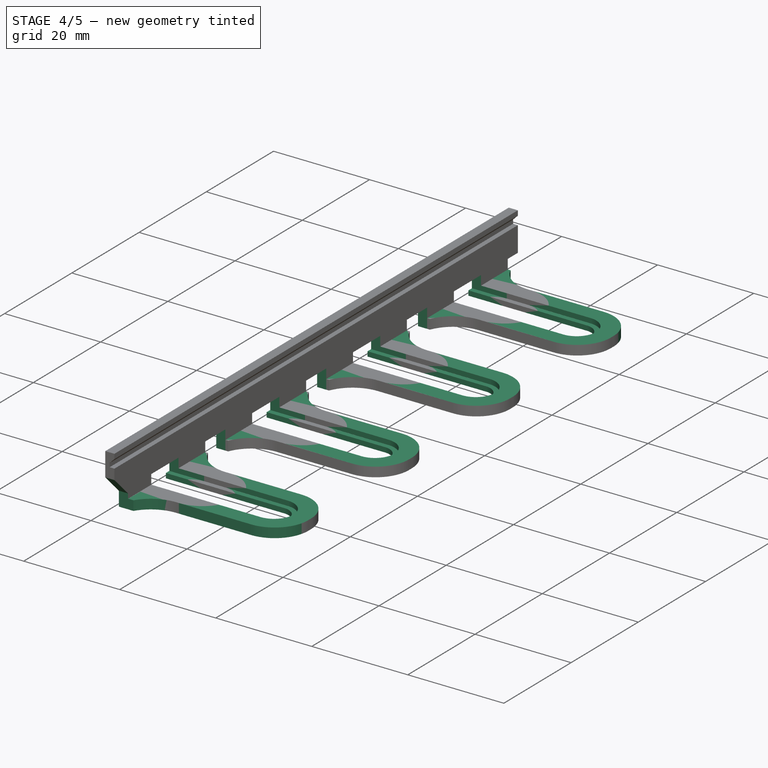
[diagram: stage 4 of 5 — iso view after this stage's code; geometry added in this stage tinted green]
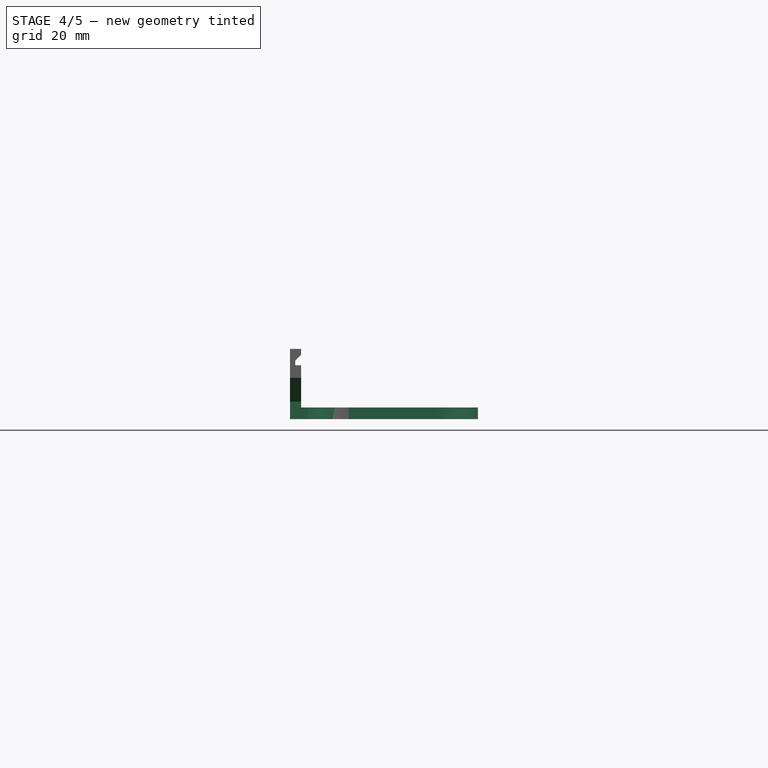
[diagram: stage 4 of 5 — front view after this stage's code; geometry added in this stage tinted green]
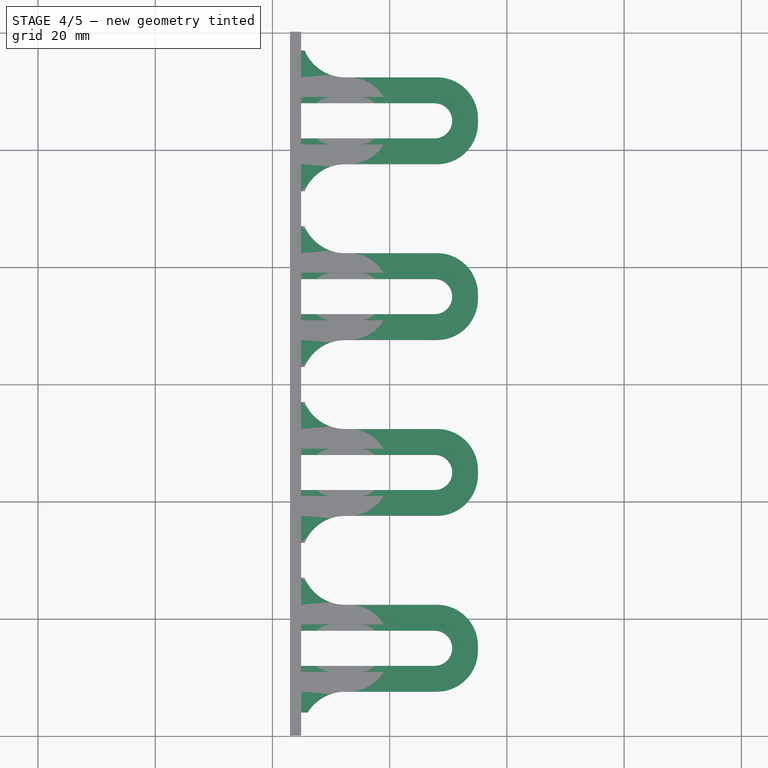
[diagram: stage 4 of 5 — top view after this stage's code; geometry added in this stage tinted green]
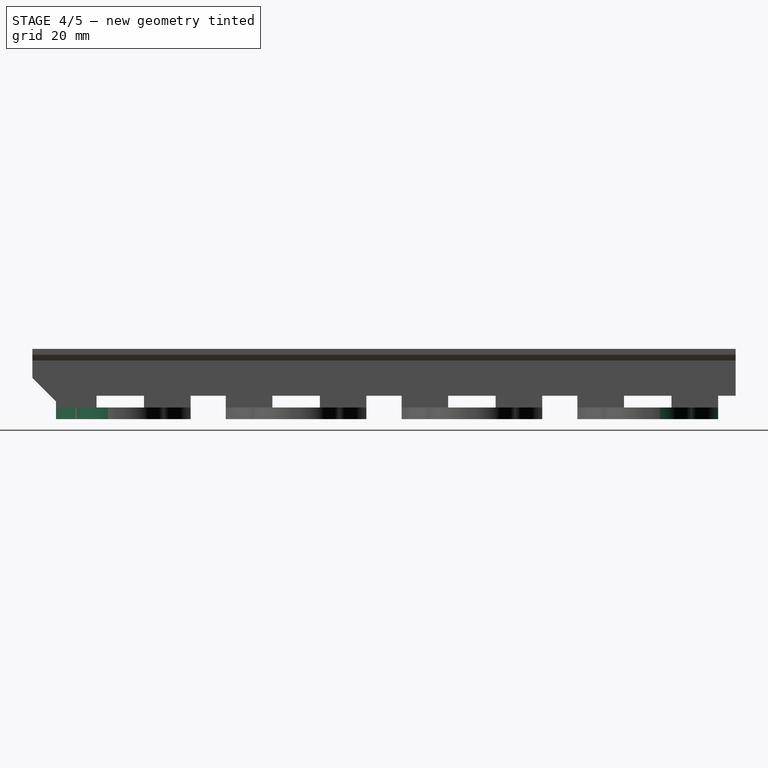
[diagram: stage 4 of 5 — right view after this stage's code; geometry added in this stage tinted green]
FEATURE [PartDesign::Pad] Pad012
  BaseFeature = -> Fillet
  Direction = (-1,0,0)
  Length = 10.65
  Length2 = 10
  Placement = pos=(0,0,0) rot=(1,0,0;1.5708rad)
  Profile = -> Fillet [Face60,Face63,Face64,Face51,Face54,Face55,Face42,Face45,Face46,Face3,Face8,Face9]
  ReferenceAxis = -> Fillet [Edge4]
  Reversed = true
  Type = 0
FEATURE [PartDesign::Pocket] Pocket010
  BaseFeature = -> Pad012
  Direction = (4.05,-1e-15,0)
  Length = 12.911
  Length2 = 5
  Placement = pos=(0,0,0) rot=(1,0,0;1.5708rad)
  Profile = -> Pad012 [Face101,Face90,Face39,Face112]
  Type = 0
FEATURE [PartDesign::Pocket] Pocket011
  BaseFeature = -> Pocket010
  Direction = (3,-7e-16,0)
  Length = 12.911
  Length2 = 5
  Placement = pos=(0,0,0) rot=(1,0,0;1.5708rad)
  Profile = -> Pocket010 [Face72,Face83,Face61,Face15]
  Type = 0
FEATURE [Sketcher::SketchObject] Sketch031
  ExternalGeometry = -> [Pocket011]
  FullyConstrained = false
  MapMode = 5
  Placement = pos=(0,0,-6) rot=(1,0,0;3.14159rad)
  Support = -> [Pocket011]
  sketch-geometry (8):
    g0: ArcOfCircle CenterX=-7.6 CenterY=0.1 CenterZ=0 NormalX=0 NormalY=0 NormalZ=1 AngleXU=0 Radius=7.5 StartAngle=1.5708 EndAngle=3.14159
    g1: LineSegment StartX=-7.6 StartY=0.1 StartZ=0 EndX=-15.1 EndY=0.1 EndZ=0
    g2: LineSegment StartX=-15.1 StartY=0.1 StartZ=0 EndX=-15.1 EndY=7.6 EndZ=0
    g3: LineSegment StartX=-15.1 StartY=7.6 StartZ=0 EndX=-7.6 EndY=7.6 EndZ=0
    g4: LineSegment StartX=-9.75 StartY=15 StartZ=0 EndX=-21.3783 EndY=15 EndZ=0
    g5: ArcOfCircle CenterX=-7.6 CenterY=29.9 CenterZ=0 NormalX=0 NormalY=0 NormalZ=1 AngleXU=0 Radius=7.5 StartAngle=3.14159 EndAngle=4.71239
    g6: LineSegment StartX=-15.1 StartY=29.9 StartZ=0 EndX=-15.1 EndY=22.4 EndZ=0
    g7: LineSegment StartX=-15.1 StartY=22.4 StartZ=0 EndX=-7.6 EndY=22.4 EndZ=0
  constraints (22):
    c: Tangent(g0,g-4)
    c: Tangent(g0,g-5)
    c: Coincident(g1,g0)
    c: Horizontal(g1)
    c: Coincident(g2,g1)
    c: Coincident(g3,g2)
    c: PointOnObject(g3,g-4)
    c: Horizontal(g3)
    c: Coincident(g0,g1)
    c: Coincident(g0,g3)
    c: Coincident(g4,g-6)
    c: Horizontal(g4)
    c: Coincident(g7,g6)
    c: Horizontal(g7)
    c: Tangent(g5,g7) = -1.5708
    c: Coincident(g5,g6)
    c: Perpendicular(g6,g7)
    c: Equal(g6,g7)
    c: Equal(g5,g0)
    c: Symmetric(g2,g6,g4)
    c: Vertical(g2)
    c: Diameter(g5) = 15
FEATURE [PartDesign::Pad] Pad014
  BaseFeature = -> Pocket011
  Direction = (0,-7e-16,-1)
  Length = 2
  Length2 = 10
  Placement = pos=(0,0,0) rot=(1,0,0;1.5708rad)
  Profile = -> Sketch031
  ReferenceAxis = -> Sketch031 [N_Axis]
  Reversed = true
  Type = 0
FEATURE [PartDesign::LinearPattern] LinearPattern
  BaseFeature = -> Pad014
  Direction = -> Sketch031 [V_Axis]
  Length = 90
  Occurrences = 4
  Originals = -> [Pad014]
  Placement = pos=(0,0,0) rot=(1,0,0;1.5708rad)
FEATURE [PartDesign::Pocket] Pocket017
  BaseFeature = -> LinearPattern
  Direction = (-3,4e-16,0)
  Length = 14
  Length2 = 5
  Placement = pos=(0,0,0) rot=(1,0,0;1.5708rad)
  Profile = -> LinearPattern [Face90,Face79,Face68,Face14]
  Type = 0
FEATURE [PartDesign::Pocket] Pocket018
  BaseFeature = -> Pocket017
  Direction = (-4.05,5e-16,0)
  Length = 17
  Length2 = 5
  Placement = pos=(0,0,0) rot=(1,0,0;1.5708rad)
  Profile = -> Pocket017 [Face91,Face100,Face82,Face21]
  Type = 0
FEATURE [PartDesign::Pocket] Pocket019
  BaseFeature = -> Pocket018
  Direction = (0,1e-15,1)
  Length = 2
  Length2 = 5
  Placement = pos=(0,0,0) rot=(1,0,0;1.5708rad)
  Profile = -> Pocket018 [Face28,Face39,Face47,Face55]
  Type = 0
FEATURE [Sketcher::SketchObject] Sketch033
  FullyConstrained = true
  MapMode = 5
  Placement = pos=(15.1,0,0) rot=(0.707107,0,-0.707107;3.14159rad)
  Support = -> [Pocket025]
  sketch-geometry (5):
    g0: LineSegment StartX=6 StartY=12 StartZ=0 EndX=6 EndY=18 EndZ=0
    g1: LineSegment StartX=6 StartY=18 StartZ=0 EndX=2 EndY=18 EndZ=0
    g2: LineSegment StartX=2 StartY=18 StartZ=0 EndX=2 EndY=12 EndZ=0
    g3: LineSegment StartX=2 StartY=12 StartZ=0 EndX=6 EndY=12 EndZ=0
    g4: GeomPoint X=4 Y=15 Z=0
  constraints (13):
    c: Coincident(g0,g1)
    c: Coincident(g1,g2)
    c: Coincident(g2,g3)
    c: Coincident(g3,g0)
    c: Horizontal(g1)
    c: Horizontal(g3)
    c: Vertical(g0)
    c: Vertical(g2)
    c: Symmetric(g1,g0,g4)
    c: DistanceY(g2,g2) = 6
    c: DistanceX(g1,g1) = 4
    c: DistanceY(g-1,g4) = 15
    c: DistanceX(g-1,g4) = 4
FEATURE [Sketcher::SketchObject] Sketch034
  FullyConstrained = true
  MapMode = 5
  Placement = pos=(15.1,0,0) rot=(0.707107,0,-0.707107;3.14159rad)
  Support = -> [Pocket025]
  sketch-geometry (5):
    g0: LineSegment StartX=6 StartY=-3 StartZ=0 EndX=6 EndY=3 EndZ=0
    g1: LineSegment StartX=6 StartY=3 StartZ=0 EndX=2 EndY=3 EndZ=0
    g2: LineSegment StartX=2 StartY=3 StartZ=0 EndX=2 EndY=-3 EndZ=0
    g3: LineSegment StartX=2 StartY=-3 StartZ=0 EndX=6 EndY=-3 EndZ=0
    g4: GeomPoint X=4 Y=0 Z=0
  constraints (13):
    c: Coincident(g0,g1)
    c: Coincident(g1,g2)
    c: Coincident(g2,g3)
    c: Coincident(g3,g0)
    c: Horizontal(g1)
    c: Horizontal(g3)
    c: Vertical(g0)
    c: Vertical(g2)
    c: Symmetric(g1,g0,g4)
    c: DistanceY(g2,g2) = 6
    c: DistanceX(g1,g1) = 4
    c: DistanceY(g-1,g4) = 0
    c: DistanceX(g-1,g4) = 4
FEATURE [PartDesign::Pocket] Pocket026
  BaseFeature = -> Pocket019
  Direction = (1,0,2e-16)
  Length = 5
  Length2 = 5
  Placement = pos=(0,0,0) rot=(1,0,0;1.5708rad)
  Profile = -> Sketch034
  ReferenceAxis = -> Sketch034 [N_Axis]
  Reversed = true
  Type = 1
FEATURE [PartDesign::LinearPattern] LinearPattern002
  BaseFeature = -> Pocket026
  Direction = -> Y_Axis004
  Length = 120
  Occurrences = 5
  Originals = -> [Pocket026]
  Placement = pos=(0,0,0) rot=(1,0,0;1.5708rad)
  Reversed = true
FEATURE [Sketcher::SketchObject] Sketch035
  ExternalGeometry = -> [LinearPattern002]
  FullyConstrained = true
  MapMode = 5
  Placement = pos=(-15.1,0,0) rot=(0.707107,0,0.707107;3.14159rad)
  Support = -> [LinearPattern002]
  sketch-geometry (5):
    g0: LineSegment StartX=1.049 StartY=120 StartZ=0 EndX=-2 EndY=120 EndZ=0
    g1: LineSegment StartX=-2 StartY=120 StartZ=0 EndX=-6 EndY=120 EndZ=0
    g2: LineSegment StartX=-6 StartY=120 StartZ=0 EndX=-6 EndY=115.951 EndZ=0
    g3: LineSegment StartX=1.049 StartY=120 StartZ=0 EndX=-3 EndY=115.951 EndZ=0
    g4: LineSegment StartX=-3 StartY=115.951 StartZ=0 EndX=-6 EndY=115.951 EndZ=0
  constraints (14):
    c: PointOnObject(g0,g-3)
    c: Coincident(g0,g-4)
    c: Coincident(g1,g0)
    c: Horizontal(g1)
    c: Coincident(g2,g1)
    c: Vertical(g2)
    c: PointOnObject(g-6,g2)
    c: Coincident(g3,g0)
    c: Coincident(g4,g3)
    c: Coincident(g4,g2)
    c: Horizontal(g4)
    c: Angle(g0,g3) = 0.785398
    c: Distance(g4) = 3
    c: Distance(g0,g1) = 7.049
FEATURE [PartDesign::Pocket] Pocket028
  BaseFeature = -> LinearPattern002
  Direction = (-1,0,2e-16)
  Length = 5
  Length2 = 5
  Midplane = true
  Placement = pos=(0,0,0) rot=(1,0,0;1.5708rad)
  Profile = -> Sketch035
  ReferenceAxis = -> Sketch035 [N_Axis]
  Type = 0
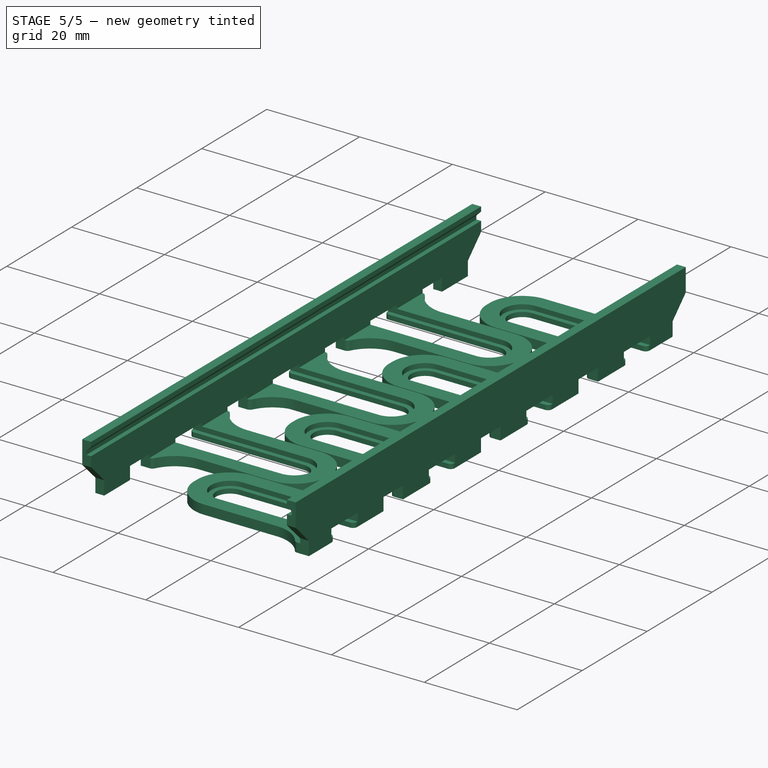
[diagram: stage 5 of 5 — iso view after this stage's code; geometry added in this stage tinted green]
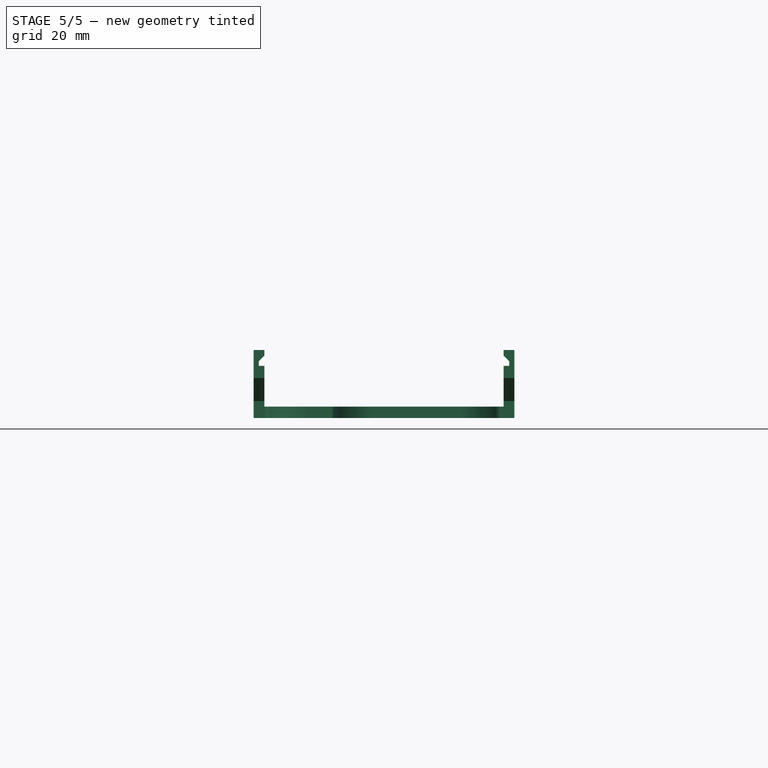
[diagram: stage 5 of 5 — front view after this stage's code; geometry added in this stage tinted green]
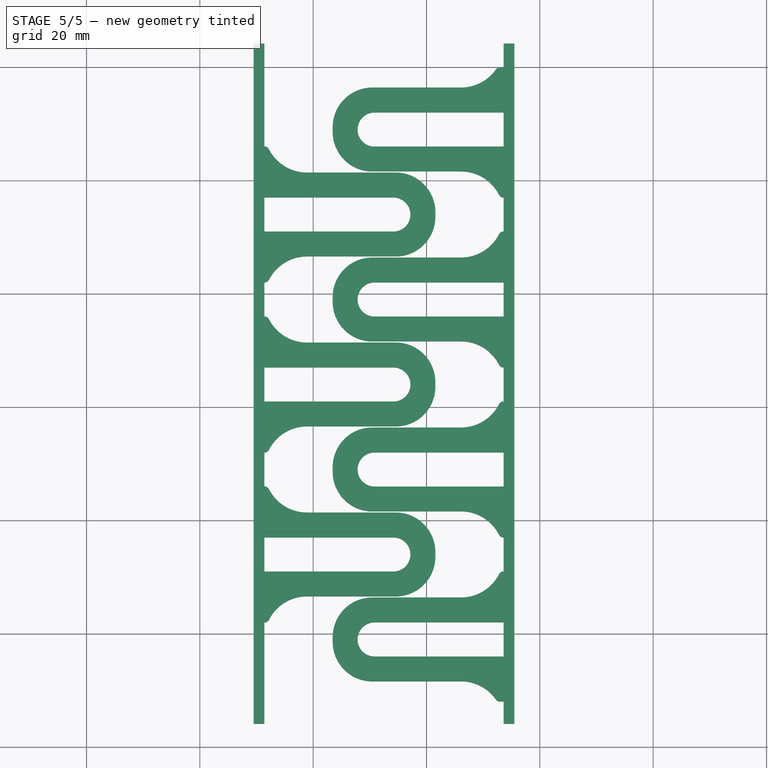
[diagram: stage 5 of 5 — top view after this stage's code; geometry added in this stage tinted green]
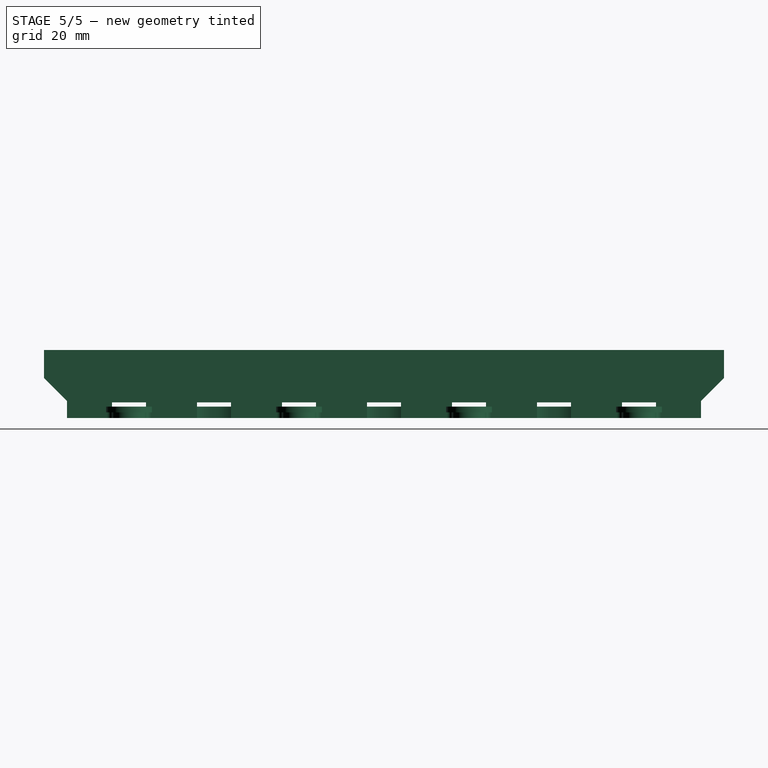
[diagram: stage 5 of 5 — right view after this stage's code; geometry added in this stage tinted green]
FEATURE [PartDesign::Pocket] Pocket027
  BaseFeature = -> Pocket025
  Direction = (1,0,2e-16)
  Length = 8
  Length2 = 5
  Midplane = true
  Placement = pos=(0,0,0) rot=(1,0,0;1.5708rad)
  Profile = -> Sketch033
  ReferenceAxis = -> Sketch033 [N_Axis]
  Type = 0
FEATURE [PartDesign::LinearPattern] LinearPattern003
  BaseFeature = -> Pocket027
  Direction = -> Y_Axis005
  Length = 120
  Occurrences = 5
  Originals = -> [Pocket027]
  Placement = pos=(0,0,0) rot=(1,0,0;1.5708rad)
  Reversed = true
FEATURE [PartDesign::Plane] DatumPlane
  AttachmentOffset = pos=(0,0,60) rot=(0,0,1;0rad)
  Length = 60
  MapMode = 5
  Placement = pos=(0,-60,-1.33e-14) rot=(1,0,0;1.5708rad)
  ResizeMode = 0
  Support = -> [XZ_Plane004]
  Width = 60
FEATURE [PartDesign::Mirrored] Mirrored
  BaseFeature = -> Pocket028
  MirrorPlane = -> DatumPlane
  Originals = -> [Pocket028]
  Placement = pos=(0,0,0) rot=(1,0,0;1.5708rad)
FEATURE [PartDesign::Fillet] Fillet002
  Base = -> Mirrored [Edge286,Edge282,Edge322,Edge246,Edge242,Edge206,Edge202,Edge12,Edge113,Edge105,Edge99,Edge91,Edge85,Edge77,Edge71,Edge25]
  BaseFeature = -> Mirrored
  Placement = pos=(0,0,0) rot=(1,0,0;1.5708rad)
  Radius = 0.9
  SupportTransform = false
  UseAllEdges = false
FEATURE [PartDesign::Fillet] Fillet003
  Base = -> LinearPattern003 [Edge104,Edge145,Edge154,Edge195,Edge204,Edge245]
  BaseFeature = -> LinearPattern003
  Placement = pos=(0,0,0) rot=(1,0,0;1.5708rad)
  Radius = 0.9
  SupportTransform = false
  UseAllEdges = false
FEATURE [PartDesign::Fillet] Fillet004
  Base = -> Fillet003 [Edge85,Edge95,Edge111,Edge101,Edge117,Edge127]
  BaseFeature = -> Fillet003
  Placement = pos=(0,0,0) rot=(1,0,0;1.5708rad)
  Radius = 0.9
  SupportTransform = false
  UseAllEdges = false
FEATURE [PartDesign::Pocket] Pocket029
  BaseFeature = -> Fillet004
  Direction = (0,-1.3e-15,-1)
  Length = 5
  Length2 = 5
  Placement = pos=(0,0,0) rot=(1,0,0;1.5708rad)
  Profile = -> Fillet004 [Face214,Face237,Face215,Face221,Face241,Face226,Face231,Face247,Face229]
  Type = 1
FEATURE [PartDesign::Pad] Pad017
  BaseFeature = -> Pocket029
  Direction = (-1,0,0)
  Length = 0.3735
  Length2 = 10
  Placement = pos=(0,0,0) rot=(1,0,0;1.5708rad)
  Profile = -> Pocket029 [Face213,Face226,Face221,Face219,Face227,Face224,Face179,Face208,Face209]
  ReferenceAxis = -> Pocket029 [Edge606]
  Type = 0
  expr: Length = 0.42 - 0.043 - 0.0035
FEATURE [PartDesign::Pad] Pad018
  BaseFeature = -> Pad017
  Direction = (2e-16,-6e-16,-1)
  Length = 1.25
  Length2 = 10
  Placement = pos=(0,0,0) rot=(1,0,0;1.5708rad)
  Profile = -> Pad017 [Face9,Face16,Face32,Face48,Face64,Face61,Face45]
  Type = 0
FEATURE [PartDesign::Body] Body005  label="Left Side"
  Group = -> [Sketch028,Pad010,DatumPlane005,Sketch029,Pad011,Sketch027,Pocket005,Sketch030,Pocket006,Sketch026,Pocket007,Pocket008,Pocket009,Fillet001,Pad,Pad013,Pocket012,Pocket013,Pocket014,Pocket015,Pocket016,Chamfer,Sketch032,Pad015,LinearPattern001,Pad016,Pocket020,Pocket021,Pocket022,Pocket023,Pocket024,Pocket025,Sketch033,Pocket027,LinearPattern003,Fillet003,Fillet004,Pocket029,Pad017,Pad018]
  Origin = -> Origin005
  Placement = pos=(-93.5,-156,9) rot=(0,0,1;3.14159rad)
  Tip = -> Pad018
FEATURE [PartDesign::Pad] Pad019
  BaseFeature = -> Fillet002
  Direction = (0,-1e-15,-1)
  Length = 1.25
  Length2 = 10
  Placement = pos=(0,0,0) rot=(1,0,0;1.5708rad)
  Profile = -> Fillet002 [Face63,Face58,Face53,Face48,Face43,Face38,Face33]
  Type = 0
FEATURE [PartDesign::Body] Body004  label="Right Side"
  Group = -> [Sketch023,Pad008,DatumPlane004,Sketch024,Pad009,Sketch016,Pocket,Sketch025,Pocket001,Sketch,Pocket002,Pocket003,Pocket004,Fillet,Pad012,Pocket010,Pocket011,Sketch031,Pad014,LinearPattern,Pocket017,Pocket018,Pocket019,Sketch034,Pocket026,LinearPattern002,Sketch035,Pocket028,DatumPlane,Mirrored,Fillet002,Pad019]
  Origin = -> Origin004
  Placement = pos=(-81.5,-156,9) rot=(0,0,1;3.14159rad)
  Tip = -> Pad019
FEATURE [Image::ImagePlane] ImagePlane
  Placement = pos=(-110.6,-95.95,9.05) rot=(-0.57735,0.57735,0.57735;4.18879rad)
  XSize = 119.973
  YSize = 12.0227
FEATURE [Part::Compound] Compound  label="Body"
  Links = -> [Body004,Body005]
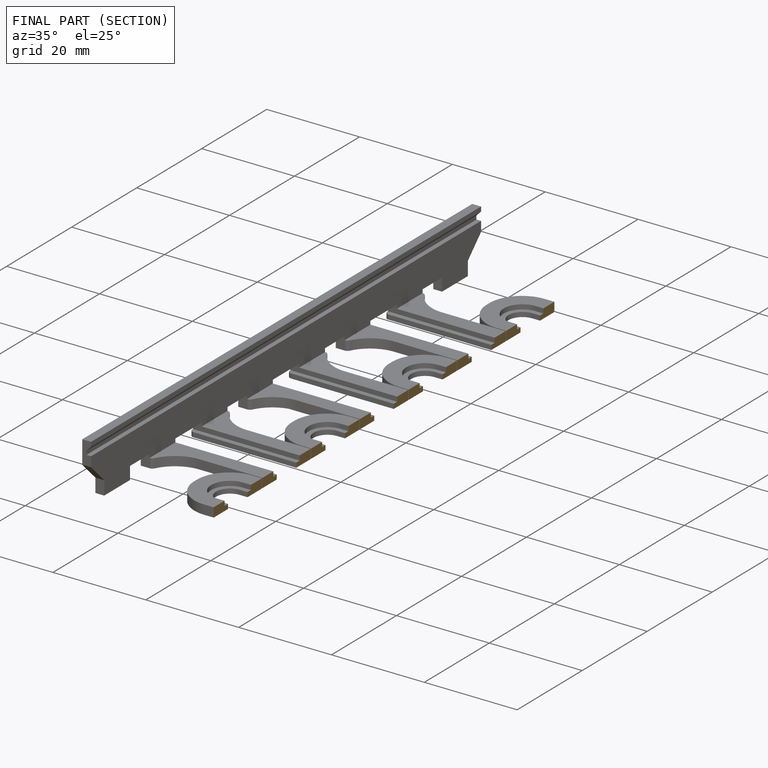
[diagram: finished part — half-section view (interior)]
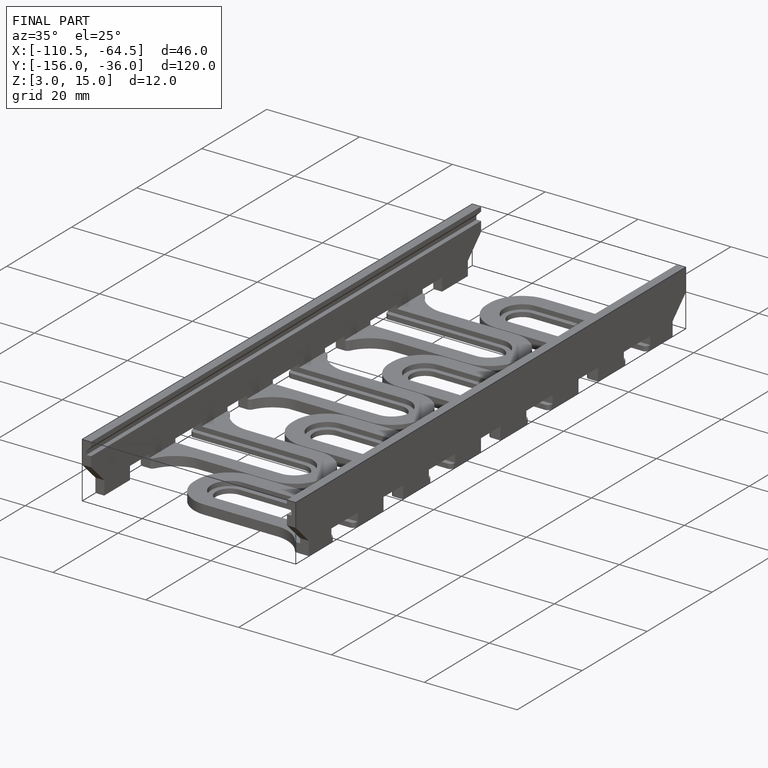
[diagram: finished part — iso view with bounding-box wireframe]
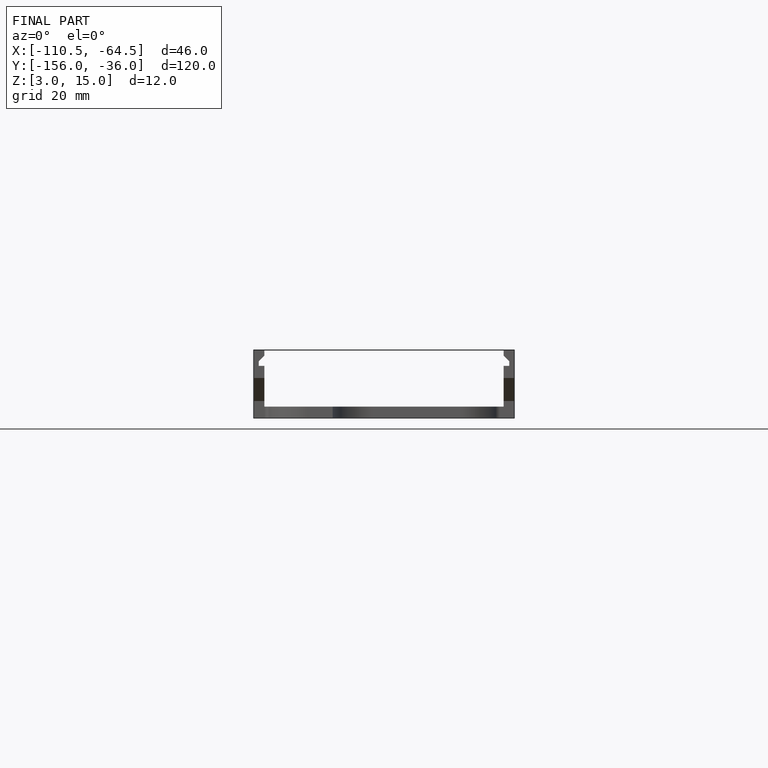
[diagram: finished part — front view with bounding-box wireframe]
